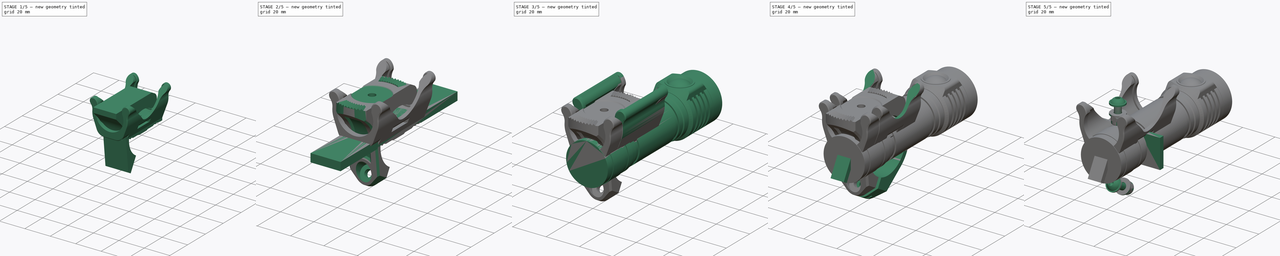
[diagram: build sequence overview — one tinted view per stage of 5, left to right]
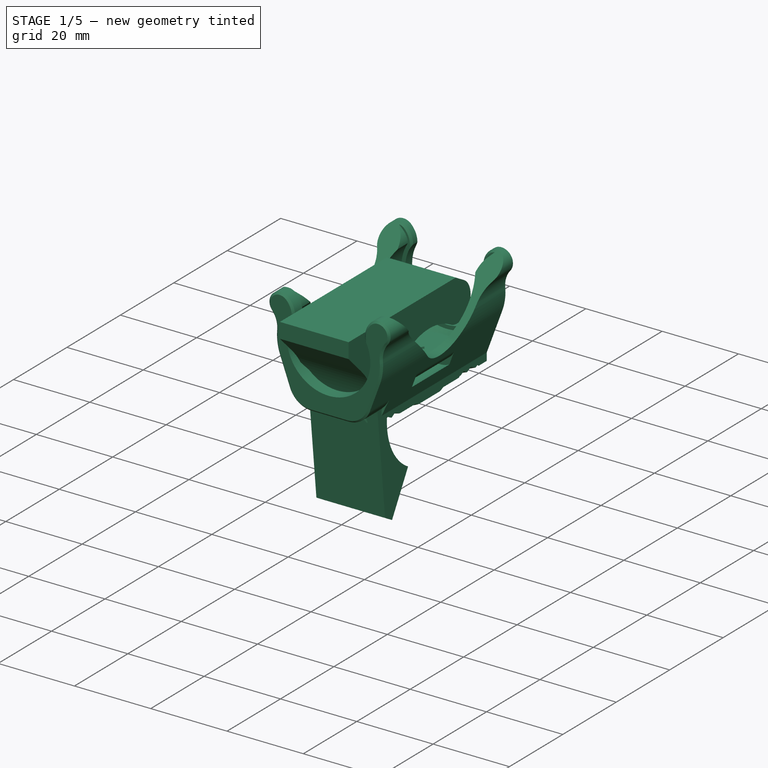
[diagram: stage 1 of 5 — iso view after this stage's code; geometry added in this stage tinted green]
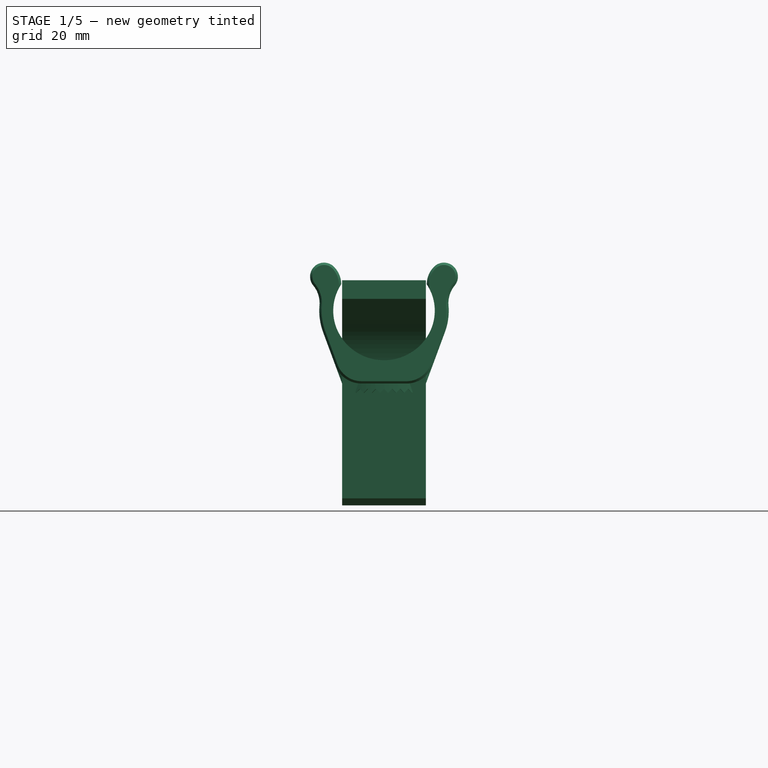
[diagram: stage 1 of 5 — front view after this stage's code; geometry added in this stage tinted green]
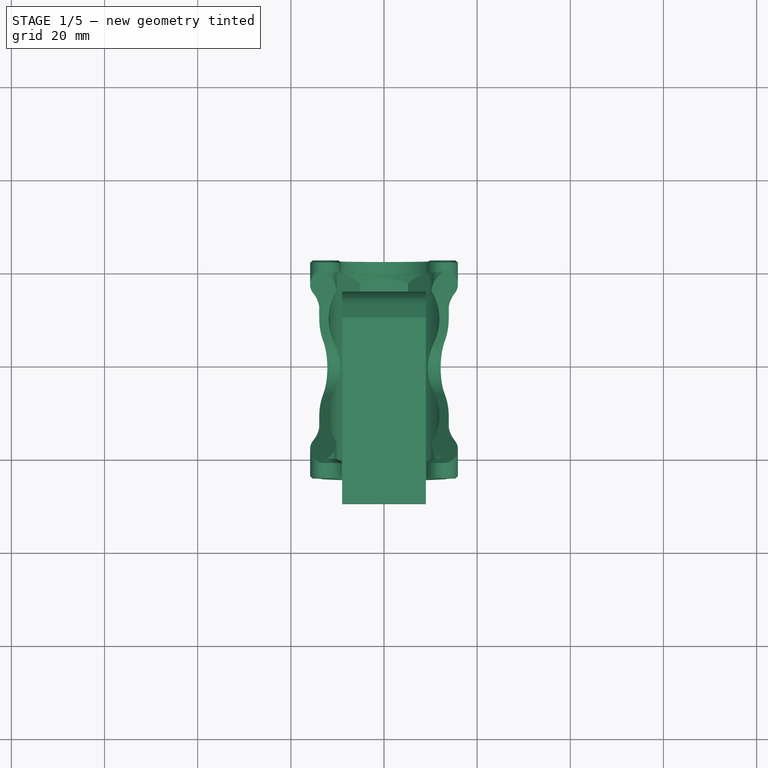
[diagram: stage 1 of 5 — top view after this stage's code; geometry added in this stage tinted green]
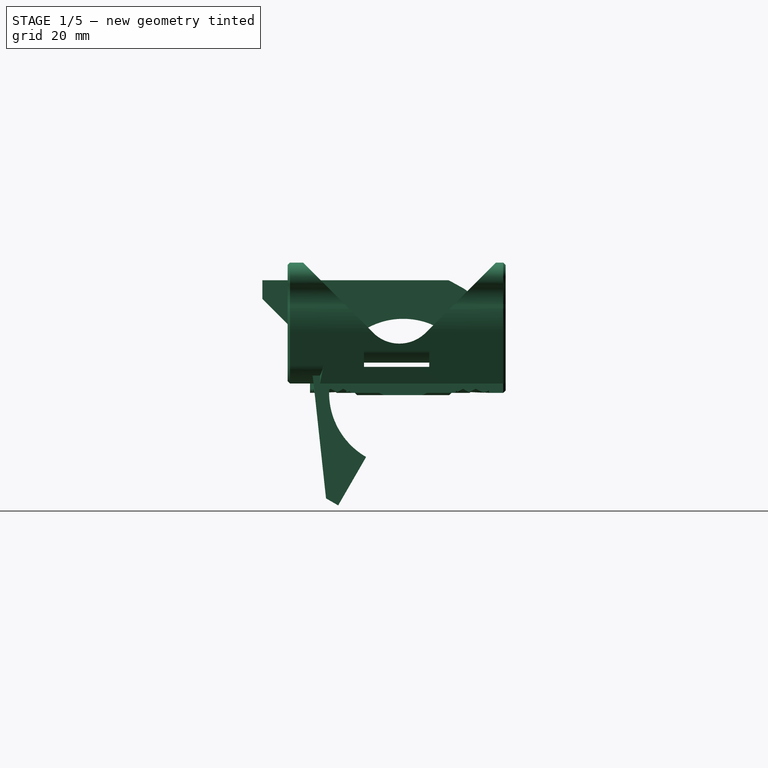
[diagram: stage 1 of 5 — right view after this stage's code; geometry added in this stage tinted green]
FCSTD DOCUMENT  (FreeCAD 0.19R22756 (Git))
Label: bike-light-mount
License: CC BY-SA 4.0
LicenseURL: https://creativecommons.org/licenses/by-sa/4.0/
objects: Sketcher::SketchObject×69, PartDesign::Pocket×42, PartDesign::Pad×16, PartDesign::CoordinateSystem×16, PartDesign::Body×10, PartDesign::Chamfer×9, PartDesign::Groove×8, Part::FeaturePython×8, PartDesign::Line×7, PartDesign::PolarPattern×6, PartDesign::Draft×6, App::Link×5, PartDesign::Revolution×4, PartDesign::Fillet×4, PartDesign::Mirrored×3, App::Part×2, App::DocumentObjectGroup×2, PartDesign::FeatureBase×2, Part::Part2DObjectPython×2, PartDesign::ShapeBinder×1, +2 more types
note: 302 computed .brp shape members not serialized (recipe doc carries the construction recipe); baked Part::Feature solids carry a one-line shape summary decoded from their .brp

FEATURE [PartDesign::Pad] Pad
  Direction = (1,1,1)
  Length = 18
  Length2 = 100
  Midplane = true
  Placement = pos=(0,0,0) rot=(0.57735,0.57735,0.57735;2.0944rad)
  Profile = -> Sketch
  Type = 0
FEATURE [Sketcher::SketchObject] Sketch027
  MapMode = 5
  Support = -> [XY_Plane009]
  sketch-geometry (4):
    g0: LineSegment StartX=-9 StartY=-50 StartZ=0 EndX=9 EndY=-50 EndZ=0
    g1: LineSegment StartX=9 StartY=-50 StartZ=0 EndX=9 EndY=50 EndZ=0
    g2: LineSegment StartX=-9 StartY=50 StartZ=0 EndX=-9 EndY=-50 EndZ=0
    g3: LineSegment StartX=-9 StartY=50 StartZ=0 EndX=9 EndY=50 EndZ=0
  constraints (10):
    c: Coincident(g0,g1)
    c: Coincident(g2,g0)
    c: Horizontal(g0)
    c: Vertical(g2)
    c: Symmetric(g2,g1,g-2)
    c: DistanceX(g2,g1) = 18
    c: Symmetric(g0,g1,g-1)
    c: Coincident(g3,g2)
    c: Coincident(g3,g1)
    c: DistanceY(g1,g1) = 100
FEATURE [PartDesign::Pad] Pad006
  Direction = (1,1,1)
  Length = 5
  Length2 = 100
  Profile = -> Sketch027
  Type = 0
FEATURE [Sketcher::SketchObject] Sketch035
  ExternalGeometry = -> [Sketch027]
  MapMode = 5
  Support = -> [XY_Plane009]
  sketch-geometry (4):
    g0: ArcOfCircle CenterX=0 CenterY=0 CenterZ=0 NormalX=0 NormalY=0 NormalZ=1 AngleXU=0 Radius=9.875 StartAngle=0.424141 EndAngle=2.71745
    g1: ArcOfCircle CenterX=0 CenterY=0 CenterZ=0 NormalX=0 NormalY=0 NormalZ=1 AngleXU=0 Radius=9.875 StartAngle=3.56573 EndAngle=5.85904
    g2: LineSegment StartX=-9 StartY=4.06394 StartZ=0 EndX=-9 EndY=-4.06394 EndZ=0
    g3: LineSegment StartX=9 StartY=-4.06394 StartZ=0 EndX=9 EndY=4.06394 EndZ=0
  constraints (12):
    c: Coincident(g0,g-1)
    c: PointOnObject(g0,g-3)
    c: PointOnObject(g0,g-4)
    c: Coincident(g1,g0)
    c: PointOnObject(g1,g-3)
    c: PointOnObject(g1,g-4)
    c: Coincident(g2,g0)
    c: Coincident(g2,g1)
    c: Coincident(g3,g1)
    c: Coincident(g3,g0)
    c: Equal(g0,g1)
    c: Diameter(g1) = 19.75
FEATURE [PartDesign::Pad] Pad009
  BaseFeature = -> Pad006
  Direction = (1,1,1)
  Length = 0.5
  Length2 = 100
  Profile = -> Sketch035
  Refine = true
  Reversed = true
  Type = 0
FEATURE [PartDesign::Draft] Draft001
  Angle = 45
  Base = -> Pad009 [Face6,Face7]
  BaseFeature = -> Pad009
  NeutralPlane = -> Pad009 [Face8]
  Reversed = true
  SupportTransform = false
FEATURE [PartDesign::Groove] Groove003
  Angle = 360
  Axis = (-2e-16,3e-16,1)
  Base = (0,0,0)
  BaseFeature = -> Draft001
  Profile = -> Sketch028
  ReferenceAxis = -> Sketch028 [V_Axis]
  Reversed = true
FEATURE [PartDesign::Pocket] Pocket012
  BaseFeature = -> Groove003
  Length = 6
  Length2 = 100
  Profile = -> Sketch029
  Reversed = true
  Type = 0
FEATURE [PartDesign::PolarPattern] PolarPattern002
  Angle = 360
  Axis = -> Z_Axis009
  BaseFeature = -> Pocket012
  Occurrences = 72
  Originals = -> [Pocket012]
FEATURE [PartDesign::Groove] Groove004
  Angle = 360
  Axis = (-2e-16,3e-16,1)
  Base = (0,0,0)
  BaseFeature = -> PolarPattern002
  Profile = -> Sketch030
  ReferenceAxis = -> Sketch030 [V_Axis]
FEATURE [PartDesign::Pocket] Pocket013
  BaseFeature = -> Groove004
  Length = 0.5
  Length2 = 100
  Profile = -> Sketch033
  Type = 0
FEATURE [PartDesign::Body] Body001  label="D4"
  Group = -> [Sketch001,Revolution,Sketch069,Pad016,Fillet002,Sketch070,Groove007,Sketch071,Sketch072,Pocket035,DatumLine007,Revolution002,LCS_11]
  Origin = -> Origin001
  Placement = pos=(0,-15,18.75) rot=(0,0,1;0rad)
  Tip = -> Revolution002
FEATURE [PartDesign::FeatureBase] BaseFeature001
  BaseFeature = -> Body006
FEATURE [Part::Part2DObjectPython] ShapeString001  # Draft 2D object (typed FeaturePython)
  AttachmentOffset = pos=(-4.75,-8.75,0) rot=(0,0,1;0rad)
  FontFile = <path>
  MapMode = 5
  Placement = pos=(-4.75,-8.75,5) rot=(0,0,1;0rad)
  Size = 3
  String = TC15
  Support = -> [BaseFeature001]
  Tracking = 0
FEATURE [PartDesign::CoordinateSystem] LCS_014  label="LCS_Mount_TC15_mount"
  AttacherType = Attacher::AttachEngine3D
  AttachmentOffset = pos=(0,0,-0.5) rot=(0,0,1;0rad)
  MapMode = 5
  Placement = pos=(0,0,-0.5) rot=(0,0,1;0rad)
  Support = -> [XY_Plane013]
FEATURE [PartDesign::CoordinateSystem] LCS_015  label="LCS_Mount_TC15_screw"
  AttacherType = Attacher::AttachEngine3D
  AttachmentOffset = pos=(0,0,2) rot=(0,0,1;0rad)
  MapMode = 5
  Placement = pos=(0,0,2) rot=(0,0,1;0rad)
  Support = -> [XY_Plane013]
FEATURE [Sketcher::SketchObject] Sketch073
  AttachmentOffset = pos=(0,0,-22) rot=(0,0,1;0rad)
  MapMode = 5
  Placement = pos=(0,22,4.9e-15) rot=(1,0,0;1.5708rad)
  Support = -> [XZ_Plane013]
  sketch-geometry (27):
    g0: LineSegment StartX=9 StartY=2 StartZ=0 EndX=13.0776 EndY=13.0309 EndZ=0
    g1: LineSegment StartX=-9 StartY=2 StartZ=0 EndX=-13.0776 EndY=13.0309 EndZ=0
    g2: ArcOfCircle CenterX=0 CenterY=18 CenterZ=0 NormalX=0 NormalY=0 NormalZ=1 AngleXU=0 Radius=11 StartAngle=3.66519 EndAngle=5.75959
    g3: ArcOfCircle CenterX=-0.649519 CenterY=17.625 CenterZ=0 NormalX=0 NormalY=0 NormalZ=1 AngleXU=0 Radius=10.25 StartAngle=2.55458 EndAngle=3.66519
    g4: ArcOfCircle CenterX=0.649519 CenterY=17.625 CenterZ=0 NormalX=0 NormalY=0 NormalZ=1 AngleXU=0 Radius=10.25 StartAngle=5.75959 EndAngle=6.87019
    g5: LineSegment [constr] StartX=0 StartY=0 StartZ=0 EndX=0 EndY=7 EndZ=0
    g6: ArcOfCircle CenterX=0.649519 CenterY=17.625 CenterZ=0 NormalX=0 NormalY=0 NormalZ=1 AngleXU=0 Radius=13.25 StartAngle=5.92911 EndAngle=6.36797
    g7: ArcOfCircle CenterX=-0.649519 CenterY=17.625 CenterZ=0 NormalX=0 NormalY=0 NormalZ=1 AngleXU=0 Radius=13.25 StartAngle=3.05681 EndAngle=3.49567
    g8: LineSegment [constr] StartX=-9.52628 StartY=12.5 StartZ=0 EndX=9.52628 EndY=12.5 EndZ=0
    g9: LineSegment [constr] StartX=-13.0776 StartY=13.0309 StartZ=0 EndX=-10.2637 EndY=14.0711 EndZ=0
    g10: LineSegment [constr] StartX=-9.18368 StartY=23.3022 StartZ=0 EndX=9.18368 EndY=23.3022 EndZ=0
    g11: LineSegment [constr] StartX=0 StartY=18 StartZ=0 EndX=-9.52628 EndY=12.5 EndZ=0
    g12: LineSegment StartX=-9 StartY=2 StartZ=0 EndX=-9 EndY=5 EndZ=0
    g13: LineSegment StartX=-9 StartY=5 StartZ=0 EndX=9 EndY=5 EndZ=0
    g14: LineSegment StartX=9 StartY=5 StartZ=0 EndX=9 EndY=2 EndZ=0
    g15: LineSegment [constr] StartX=-13.8519 StartY=18.7471 StartZ=0 EndX=-10.8627 EndY=18.493 EndZ=0
    g16: LineSegment [constr] StartX=13.8519 StartY=18.7471 StartZ=0 EndX=10.8627 EndY=18.493 EndZ=0
    g17: LineSegment [constr] StartX=-9.18368 StartY=23.3022 StartZ=0 EndX=0 EndY=18 EndZ=0
    g18: LineSegment [constr] StartX=-10.75 StartY=27.0836 StartZ=0 EndX=10.75 EndY=27.0836 EndZ=0
    g19: ArcOfCircle CenterX=-14.5314 CenterY=23.3022 CenterZ=0 NormalX=0 NormalY=0 NormalZ=1 AngleXU=0 Radius=5.34775 StartAngle=9e-16 EndAngle=0.785398
    g20: ArcOfCircle CenterX=-12.8713 CenterY=24.9623 CenterZ=0 NormalX=0 NormalY=0 NormalZ=1 AngleXU=0 Radius=3 StartAngle=0.785398 EndAngle=3.82847
    g21: LineSegment [constr] StartX=-10.75 StartY=27.0836 StartZ=0 EndX=-6.96857 EndY=23.3022 EndZ=0
    g22: ArcOfCircle CenterX=-19.8304 CenterY=19.2552 CenterZ=0 NormalX=0 NormalY=0 NormalZ=1 AngleXU=0 Radius=6 StartAngle=6.1984 EndAngle=6.97007
    g23: Circle [constr] CenterX=0 CenterY=18 CenterZ=0 NormalX=0 NormalY=0 NormalZ=1 AngleXU=0 Radius=11
    g24: ArcOfCircle CenterX=14.5314 CenterY=23.3022 CenterZ=0 NormalX=0 NormalY=0 NormalZ=1 AngleXU=0 Radius=5.34775 StartAngle=2.35619 EndAngle=3.14159
    g25: ArcOfCircle CenterX=12.8713 CenterY=24.9623 CenterZ=0 NormalX=0 NormalY=0 NormalZ=1 AngleXU=0 Radius=3 StartAngle=5.59631 EndAngle=8.63938
    g26: ArcOfCircle CenterX=19.8304 CenterY=19.2552 CenterZ=0 NormalX=0 NormalY=0 NormalZ=1 AngleXU=0 Radius=6 StartAngle=2.45471 EndAngle=3.22638
  constraints (84):
    c: Symmetric(g1,g0,g-2)
    c: DistanceX(g1,g0) = 18
    c: DistanceY(g-1,g1) = 2
    c: PointOnObject(g2,g-2)
    c: Radius(g2) = 11
    c: Coincident(g3,g2)
    c: Coincident(g4,g2)
    c: Tangent(g4,g2)
    c: Tangent(g2,g3)
    c: PointOnObject(g5,g2)
    c: Vertical(g5)
    c: DistanceY(g-1,g5) = 7
    c: Equal(g4,g3)
    c: Radius(g3) = 10.25
    c: Coincident(g6,g0)
    c: Coincident(g7,g1)
    c: Tangent(g7,g1)
    c: Tangent(g0,g6)
    c: Coincident(g8,g2)
    c: Coincident(g8,g2)
    c: Horizontal(g8)
    c: PointOnObject(g9,g1)
    c: PointOnObject(g9,g3)
    c: Perpendicular(g3,g9)
    c: Perpendicular(g1,g9)
    c: Horizontal(g10)
    c: Equal(g0,g1)
    c: Equal(g6,g7)
    c: Coincident(g11,g2)
    c: Coincident(g11,g2)
    c: Angle(g8,g11) = 0.523599
    c: Coincident(g12,g1)
    c: Vertical(g12)
    c: Coincident(g13,g12)
    c: Horizontal(g13)
    c: Coincident(g14,g13)
    c: Coincident(g14,g0)
    c: Vertical(g14)
    c: DistanceY(g-1,g12) = 5
    c: Coincident(g5,g-1)
    c: Coincident(g3,g10)
    c: Coincident(g15,g7)
    c: PointOnObject(g15,g3)
    c: Perpendicular(g3,g15)
    c: Distance(g15) = 3
    c: Coincident(g10,g4)
    c: Coincident(g16,g6)
    c: PointOnObject(g16,g4)
    c: Perpendicular(g4,g16)
    c: Equal(g16,g15)
    c: Coincident(g7,g3)
    c: Coincident(g17,g3)
    c: Coincident(g17,g2)
    c: Angle(g17,g10) = 0.523599
    c: DistanceX(g10,g10) = 18.3674
    c: Coincident(g19,g3)
    c: Perpendicular(g19,g10)
    c: Coincident(g20,g19)
    c: Tangent(g19,g20)
    c: Coincident(g18,g19)
    c: PointOnObject(g21,g10)
    c: Tangent(g21,g19) = 1.5708
    c: Angle(g21,g18) = 0.785398
    c: Coincident(g22,g20)
    c: Coincident(g22,g7)
    c: Tangent(g22,g7)
    c: Radius(g20) = 3
    c: DistanceX(g18,g18) = 21.5
    c: Coincident(g23,g2)
    c: PointOnObject(g2,g23)
    c: Coincident(g24,g4)
    c: Perpendicular(g24,g10)
    c: Symmetric(g18,g19,g-2)
    c: Coincident(g25,g24)
    c: Coincident(g26,g25)
    c: Coincident(g26,g6)
    c: Tangent(g26,g6)
    c: Tangent(g25,g24)
    c: Tangent(g26,g25)
    c: Equal(g25,g20)
    c: Coincident(g24,g18)
    c: Tangent(g22,g20)
    c: Radius(g22) = 6
    c: Equal(g22,g26)
FEATURE [PartDesign::Pad] Pad017
  BaseFeature = -> BaseFeature001
  Direction = (1,1,1)
  Length = 46.8
  Length2 = 100
  Profile = -> Sketch073
  Type = 0
FEATURE [PartDesign::Line] DatumLine008
  AttacherType = Attacher::AttachEngineLine
  Length = 20
  MapMode = 19
  Placement = pos=(9e-16,22,18) rot=(-0.186157,-0.694747,0.694747;3.50969rad)
  ResizeMode = 0
  Support = -> [Sketch073]
FEATURE [PartDesign::CoordinateSystem] LCS_013  label="LCS_Mount_TC15_front_clip"
  AttacherType = Attacher::AttachEngine3D
  MapMode = 11
  Placement = pos=(9e-16,22,18) rot=(0.774597,0.447214,-0.447214;1.82348rad)
  Support = -> [Sketch073]
FEATURE [Sketcher::SketchObject] Sketch074
  MapMode = 5
  Support = -> [XY_Plane013]
  sketch-geometry (4):
    g0: LineSegment StartX=-9 StartY=22 StartZ=0 EndX=9 EndY=22 EndZ=0
    g1: LineSegment StartX=9 StartY=22 StartZ=0 EndX=9 EndY=50 EndZ=0
    g2: LineSegment StartX=9 StartY=50 StartZ=0 EndX=-9 EndY=50 EndZ=0
    g3: LineSegment StartX=-9 StartY=50 StartZ=0 EndX=-9 EndY=22 EndZ=0
  constraints (9):
    c: Coincident(g0,g1)
    c: Coincident(g1,g2)
    c: Coincident(g2,g3)
    c: Coincident(g3,g0)
    c: Horizontal(g0)
    c: Vertical(g1)
    c: Vertical(g3)
    c: Symmetric(g1,g2,g-2)
    c: DistanceY(g-1,g2) = 50
FEATURE [Sketcher::SketchObject] Sketch075
  AttachmentOffset = pos=(0,0,2.6) rot=(0,0,1;0rad)
  ExternalGeometry = -> [Sketch073]
  MapMode = 2
  Placement = pos=(0,19.4,4.3e-15) rot=(1,0,0;1.5708rad)
  Support = -> [Sketch073]
  expr: Constraints[2] = <<Dimensions>>.m4_washer_slot_diameter + 1
  sketch-geometry (16):
    g0: LineSegment StartX=-5.15 StartY=5 StartZ=0 EndX=5.15 EndY=5 EndZ=0
    g1: ArcOfCircle CenterX=0 CenterY=18 CenterZ=0 NormalX=0 NormalY=0 NormalZ=1 AngleXU=0 Radius=12 StartAngle=3.66519 EndAngle=3.79614
    g2: ArcOfCircle CenterX=0 CenterY=18 CenterZ=0 NormalX=0 NormalY=0 NormalZ=1 AngleXU=0 Radius=12 StartAngle=5.62864 EndAngle=5.75959
    g3: LineSegment StartX=-9.51988 StartY=10.6944 StartZ=0 EndX=-5.15 EndY=5 EndZ=0
    g4: LineSegment StartX=9.51988 StartY=10.6944 StartZ=0 EndX=5.15 EndY=5 EndZ=0
    g5: ArcOfCircle CenterX=-0.649519 CenterY=17.625 CenterZ=0 NormalX=0 NormalY=0 NormalZ=1 AngleXU=0 Radius=11.25 StartAngle=2.58353 EndAngle=3.66519
    g6: ArcOfCircle CenterX=0.649519 CenterY=17.625 CenterZ=0 NormalX=0 NormalY=0 NormalZ=1 AngleXU=0 Radius=11.25 StartAngle=5.75959 EndAngle=6.84125
    g7: LineSegment [constr] StartX=-11.8995 StartY=17.625 StartZ=0 EndX=-10.8995 EndY=17.625 EndZ=0
    g8: ArcOfCircle CenterX=-14.5314 CenterY=23.3022 CenterZ=0 NormalX=0 NormalY=0 NormalZ=1 AngleXU=0 Radius=4.34775 StartAngle=0.0644784 EndAngle=0.785398
    g9: LineSegment StartX=-11.4571 StartY=26.3765 StartZ=0 EndX=-14.4571 EndY=29.3765 EndZ=0
    g10: LineSegment [constr] StartX=-11.4571 StartY=26.3765 StartZ=0 EndX=-10.75 EndY=27.0836 EndZ=0
    g11: ArcOfCircle CenterX=14.5314 CenterY=23.3022 CenterZ=0 NormalX=0 NormalY=0 NormalZ=1 AngleXU=0 Radius=4.34775 StartAngle=2.35619 EndAngle=3.07711
    g12: LineSegment [constr] StartX=10.75 StartY=27.0836 StartZ=0 EndX=11.4571 EndY=26.3765 EndZ=0
    g13: LineSegment StartX=11.4571 StartY=26.3765 StartZ=0 EndX=14.4571 EndY=29.3765 EndZ=0
    g14: LineSegment StartX=-14.4571 StartY=29.3765 StartZ=0 EndX=14.4571 EndY=29.3765 EndZ=0
    g15: LineSegment [constr] StartX=-10.3923 StartY=12 StartZ=0 EndX=-9.52628 EndY=12.5 EndZ=0
  constraints (45):
    c: PointOnObject(g0,g-3)
    c: Symmetric(g0,g0,g-2)
    c: DistanceX(g0,g0) = 10.3
    c: Coincident(g2,g1)
    c: Coincident(g3,g1)
    c: Coincident(g3,g0)
    c: Coincident(g4,g2)
    c: Coincident(g4,g0)
    c: Tangent(g2,g4)
    c: Tangent(g1,g3)
    c: Equal(g3,g4)
    c: Coincident(g1,g-5)
    c: Coincident(g5,g-4)
    c: Coincident(g5,g1)
    c: Coincident(g6,g-6)
    c: Coincident(g6,g2)
    c: Tangent(g2,g6)
    c: PointOnObject(g7,g5)
    c: PointOnObject(g7,g-4)
    c: Horizontal(g7)
    c: Perpendicular(g5,g7)
    c: DistanceX(g7,g7) = 1
    c: Coincident(g8,g-8)
    c: Coincident(g8,g5)
    c: Coincident(g9,g8)
    c: Tangent(g9,g8)
    c: Coincident(g10,g8)
    c: Coincident(g10,g-8)
    c: Perpendicular(g8,g10)
    c: Coincident(g11,g-7)
    c: Coincident(g11,g6)
    c: Coincident(g12,g-7)
    c: Coincident(g12,g11)
    c: Perpendicular(g11,g12)
    c: Coincident(g13,g11)
    c: Tangent(g13,g11)
    c: Coincident(g14,g9)
    c: Coincident(g14,g13)
    c: Horizontal(g14)
    c: DistanceY(g9,g9) = 3
    c: Coincident(g15,g1)
    c: Coincident(g15,g-5)
    c: Perpendicular(g5,g15)
    c: Equal(g10,g7)
    c: Equal(g12,g10)
FEATURE [Sketcher::SketchObject] Sketch076
  MapMode = 5
  Support = -> [XY_Plane013]
  sketch-geometry (4):
    g0: LineSegment StartX=-9 StartY=-24.8 StartZ=0 EndX=-9 EndY=-50 EndZ=0
    g1: LineSegment StartX=-9 StartY=-50 StartZ=0 EndX=9 EndY=-50 EndZ=0
    g2: LineSegment StartX=9 StartY=-50 StartZ=0 EndX=9 EndY=-24.8 EndZ=0
    g3: LineSegment StartX=-9 StartY=-24.8 StartZ=0 EndX=9 EndY=-24.8 EndZ=0
  constraints (11):
    c: Vertical(g0)
    c: Coincident(g1,g0)
    c: Coincident(g2,g1)
    c: Symmetric(g1,g0,g-2)
    c: DistanceX(g1,g1) = 18
    c: Equal(g0,g2)
    c: Coincident(g3,g0)
    c: Coincident(g3,g2)
    c: DistanceY(g0,g-1) = 24.8
    c: DistanceY(g0,g-1) = 50
    c: Vertical(g2)
FEATURE [Sketcher::SketchObject] Sketch077
  ExternalGeometry = -> [Sketch073]
  MapMode = 5
  Placement = pos=(0,0,0) rot=(0.57735,0.57735,0.57735;2.0944rad)
  Support = -> [YZ_Plane013]
  expr: Constraints[13] = 2.6mm - <<Chamfer011>>.Size
  expr: Constraints[10] = <<Pocket036>>.Length + <<Chamfer010>>.Size + <<Chamfer011>>.Size
  sketch-geometry (5):
    g0: LineSegment StartX=-21.5 StartY=27.9623 StartZ=0 EndX=-6.45687 EndY=12.9192 EndZ=0
    g1: LineSegment StartX=4.85687 StartY=12.9192 StartZ=0 EndX=19.9 EndY=27.9623 EndZ=0
    g2: LineSegment StartX=-21.5 StartY=27.9623 StartZ=0 EndX=19.9 EndY=27.9623 EndZ=0
    g3: ArcOfCircle CenterX=-0.799999 CenterY=18.576 CenterZ=0 NormalX=0 NormalY=0 NormalZ=1 AngleXU=0 Radius=8 StartAngle=3.92699 EndAngle=5.49779
    g4: LineSegment [constr] StartX=19.9 StartY=27.9623 StartZ=0 EndX=22 EndY=27.9623 EndZ=0
  constraints (15):
    c: Coincident(g2,g0)
    c: Coincident(g2,g1)
    c: Horizontal(g2)
    c: Coincident(g3,g0)
    c: Coincident(g3,g1)
    c: Tangent(g3,g1)
    c: Tangent(g3,g0)
    c: Radius(g3) = 8
    c: Perpendicular(g0,g1)
    c: Equal(g1,g0)
    c: DistanceX(g2,g2) = 41.4
    c: Coincident(g4,g1)
    c: Horizontal(g4)
    c: DistanceX(g4,g4) = 2.1
    c: Coincident(g4,g-3)
FEATURE [Sketcher::SketchObject] Sketch078
  AttachmentOffset = pos=(0,0,23.4) rot=(0,0,1;0rad)
  ExternalGeometry = -> [Sketch073]
  MapMode = 2
  Placement = pos=(0,-1.4,-3e-16) rot=(1,0,0;1.5708rad)
  Support = -> [Sketch073]
  expr: .AttachmentOffset.Base.z = <<Pad017>>.Length / 2
  sketch-geometry (8):
    g0: LineSegment StartX=-7.8775 StartY=5 StartZ=0 EndX=7.8775 EndY=5 EndZ=0
    g1: LineSegment StartX=-7.8775 StartY=6.5 StartZ=0 EndX=7.8775 EndY=6.5 EndZ=0
    g2: ArcOfCircle CenterX=7.8775 CenterY=10.5 CenterZ=0 NormalX=0 NormalY=0 NormalZ=1 AngleXU=0 Radius=5.5 StartAngle=4.71239 EndAngle=5.17266
    g3: ArcOfCircle CenterX=7.8775 CenterY=10.5 CenterZ=0 NormalX=0 NormalY=0 NormalZ=1 AngleXU=0 Radius=4 StartAngle=4.71239 EndAngle=5.92911
    g4: LineSegment StartX=10.3205 StartY=5.57236 StartZ=0 EndX=11.6294 EndY=9.11309 EndZ=0
    g5: ArcOfCircle CenterX=-7.8775 CenterY=10.5 CenterZ=0 NormalX=0 NormalY=0 NormalZ=1 AngleXU=0 Radius=5.5 StartAngle=4.25212 EndAngle=4.71239
    g6: ArcOfCircle CenterX=-7.8775 CenterY=10.5 CenterZ=0 NormalX=0 NormalY=0 NormalZ=1 AngleXU=0 Radius=4 StartAngle=3.49567 EndAngle=4.71239
    g7: LineSegment StartX=-11.6294 StartY=9.11309 StartZ=0 EndX=-10.3205 EndY=5.57236 EndZ=0
  constraints (25):
    c: PointOnObject(g0,g-4)
    c: Symmetric(g0,g0,g-2)
    c: Horizontal(g1)
    c: DistanceY(g0,g1) = 1.5
    c: Coincident(g2,g0)
    c: PointOnObject(g2,g-3)
    c: Coincident(g3,g2)
    c: Coincident(g3,g1)
    c: Tangent(g3,g1)
    c: Tangent(g2,g0)
    c: Coincident(g4,g2)
    c: Coincident(g4,g3)
    c: PointOnObject(g3,g-3)
    c: Tangent(g3,g-3)
    c: Coincident(g5,g0)
    c: Coincident(g6,g5)
    c: Coincident(g6,g1)
    c: Tangent(g5,g0)
    c: Tangent(g6,g1)
    c: Radius(g3) = 4
    c: PointOnObject(g6,g-5)
    c: Coincident(g7,g6)
    c: Coincident(g7,g5)
    c: PointOnObject(g5,g-5)
    c: Tangent(g6,g-5)
FEATURE [PartDesign::Pocket] Pocket039
  BaseFeature = -> Pad017
  Length = 5
  Length2 = 100
  Profile = -> Sketch074
  Refine = true
  Reversed = true
  Type = 1
FEATURE [PartDesign::Pocket] Pocket038
  BaseFeature = -> Pocket039
  Length = 5
  Length2 = 100
  Profile = -> Sketch076
  Refine = true
  Reversed = true
  Type = 1
FEATURE [Sketcher::SketchObject] Sketch079
  ExternalGeometry = -> [Sketch073]
  MapMode = 5
  Placement = pos=(0,0,0) rot=(0.57735,0.57735,0.57735;2.0944rad)
  Support = -> [YZ_Plane013]
  expr: Constraints[1] = <<Pocket036>>.Length
  sketch-geometry (7):
    g0: LineSegment [constr] StartX=19.4 StartY=6 StartZ=0 EndX=-20.6 EndY=6 EndZ=0
    g1: LineSegment StartX=-20.6 StartY=6 StartZ=0 EndX=-18.1 EndY=3.5 EndZ=0
    g2: LineSegment StartX=-18.1 StartY=3.5 StartZ=0 EndX=-20.6 EndY=3.5 EndZ=0
    g3: LineSegment StartX=-20.6 StartY=3.5 StartZ=0 EndX=-20.6 EndY=6 EndZ=0
    g4: LineSegment StartX=19.4 StartY=6 StartZ=0 EndX=16.9 EndY=3.5 EndZ=0
    g5: LineSegment StartX=16.9 StartY=3.5 StartZ=0 EndX=19.4 EndY=3.5 EndZ=0
    g6: LineSegment StartX=19.4 StartY=3.5 StartZ=0 EndX=19.4 EndY=6 EndZ=0
  constraints (20):
    c: Horizontal(g0)
    c: DistanceX(g0,g0) = 40
    c: Coincident(g2,g1)
    c: Horizontal(g2)
    c: Coincident(g3,g2)
    c: Coincident(g3,g1)
    c: Vertical(g3)
    c: Equal(g2,g3)
    c: DistanceY(g3,g3) = 2.5
    c: Coincident(g0,g1)
    c: Coincident(g4,g0)
    c: Coincident(g5,g4)
    c: Coincident(g6,g5)
    c: Coincident(g6,g4)
    c: Vertical(g6)
    c: Horizontal(g5)
    c: Equal(g5,g6)
    c: Equal(g6,g3)
    c: DistanceX(g4,g-3) = 2.6
    c: DistanceY(g4,g-3) = 1
FEATURE [Sketcher::SketchObject] Sketch080
  MapMode = 5
  Support = -> [XY_Plane013]
  sketch-geometry (4):
    g0: ArcOfCircle CenterX=0 CenterY=0 CenterZ=0 NormalX=0 NormalY=0 NormalZ=1 AngleXU=0 Radius=20 StartAngle=4.03726 EndAngle=5.38752
    g1: LineSegment StartX=-12.5 StartY=-15.6125 StartZ=0 EndX=-12.5 EndY=-35.6125 EndZ=0
    g2: LineSegment StartX=-12.5 StartY=-35.6125 StartZ=0 EndX=12.5 EndY=-35.6125 EndZ=0
    g3: LineSegment StartX=12.5 StartY=-35.6125 StartZ=0 EndX=12.5 EndY=-15.6125 EndZ=0
  constraints (11):
    c: Coincident(g0,g-1)
    c: Radius(g0) = 20
    c: Coincident(g1,g0)
    c: Vertical(g1)
    c: Coincident(g2,g1)
    c: Coincident(g3,g2)
    c: Coincident(g3,g0)
    c: Vertical(g3)
    c: Symmetric(g1,g2,g-2)
    c: DistanceX(g2,g2) = 25
    c: DistanceY(g1,g1) = 20
FEATURE [PartDesign::Pocket] Pocket042
  BaseFeature = -> Pocket038
  Length = 2
  Length2 = 100
  Profile = -> Sketch080
  Reversed = true
  Type = 0
FEATURE [PartDesign::Fillet] Fillet003
  Base = -> Pocket042 [Edge32,Edge2]
  BaseFeature = -> Pocket042
  Radius = 6
  SupportTransform = false
FEATURE [PartDesign::Pocket] Pocket036
  BaseFeature = -> Fillet003
  Length = 40
  Length2 = 100
  Profile = -> Sketch075
  Refine = true
  Reversed = true
  Type = 0
FEATURE [PartDesign::Chamfer] Chamfer010
  Angle = 45
  Base = -> Pocket036 [Edge110,Edge117,Edge104]
  BaseFeature = -> Pocket036
  ChamferType = 0
  FlipDirection = false
  Size = 0.9
  Size2 = 1
  SupportTransform = false
FEATURE [PartDesign::Chamfer] Chamfer011
  Angle = 45
  Base = -> Chamfer010 [Edge48,Edge7,Edge38,Edge37,Edge52,Edge27,Edge54,Edge58]
  BaseFeature = -> Chamfer010
  ChamferType = 0
  FlipDirection = false
  Size = 0.5
  Size2 = 1
  SupportTransform = false
FEATURE [PartDesign::Pocket] Pocket037
  BaseFeature = -> Chamfer011
  Length = 5
  Length2 = 100
  Midplane = true
  Profile = -> Sketch077
  Type = 1
FEATURE [PartDesign::Pocket] Pocket040
  BaseFeature = -> Pocket037
  Length = 14
  Length2 = 100
  Midplane = true
  Profile = -> Sketch078
  Refine = true
  Type = 0
FEATURE [PartDesign::Revolution] Revolution003
  Angle = 105
  Axis = (0,-1,-3e-16)
  Base = (9e-16,22,18)
  BaseFeature = -> Pocket040
  Midplane = true
  Profile = -> Sketch079
  ReferenceAxis = -> DatumLine008
FEATURE [PartDesign::Pocket] Pocket041
  BaseFeature = -> Revolution003
  Length = 0.5
  Length2 = 100
  Profile = -> ShapeString001
  Type = 0
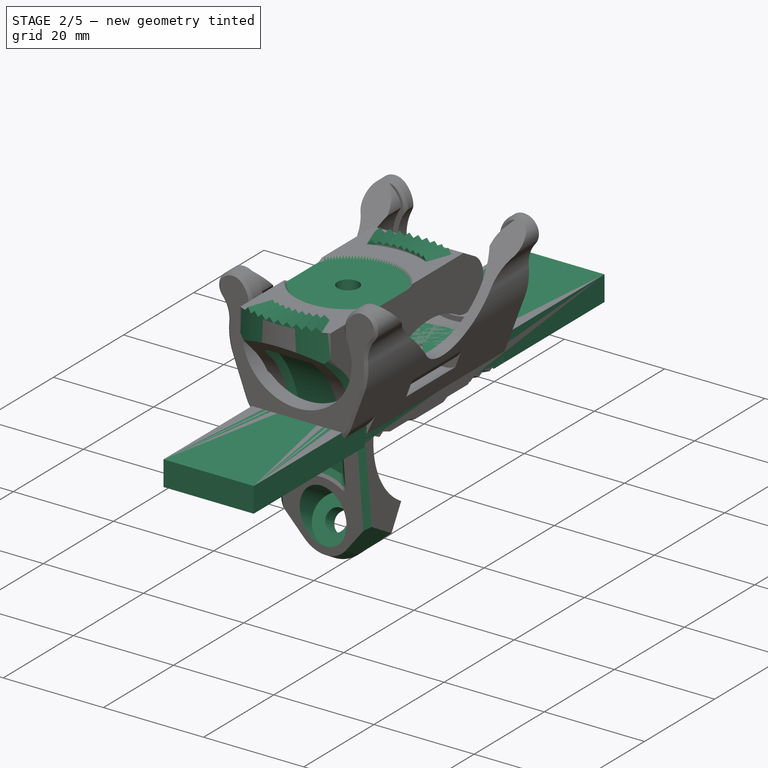
[diagram: stage 2 of 5 — iso view after this stage's code; geometry added in this stage tinted green]
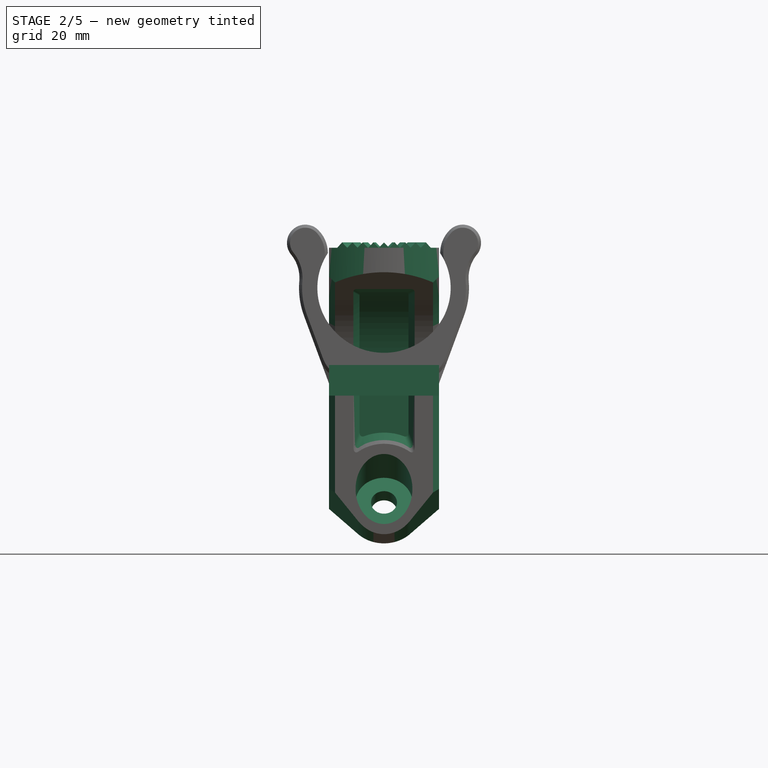
[diagram: stage 2 of 5 — front view after this stage's code; geometry added in this stage tinted green]
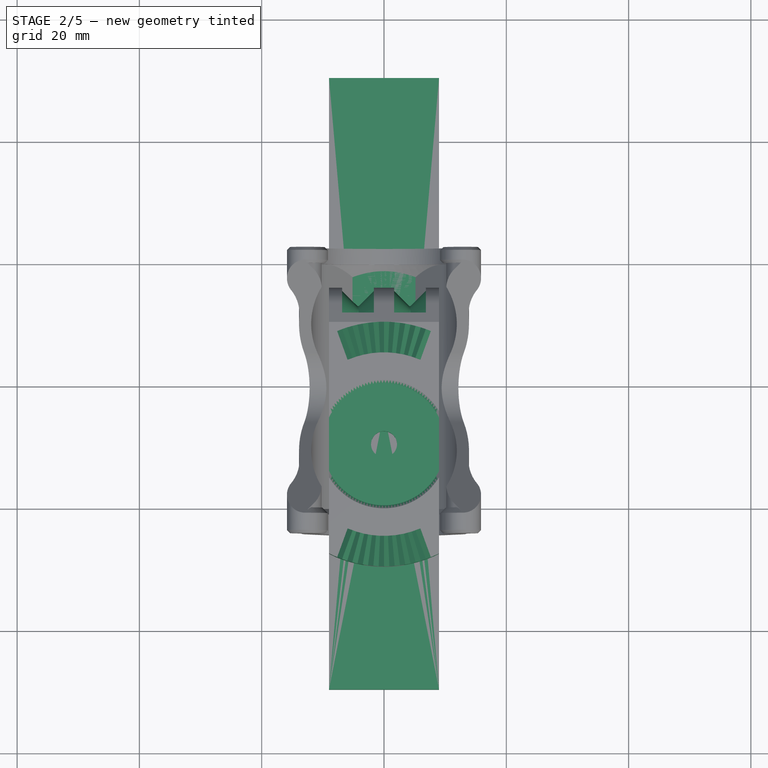
[diagram: stage 2 of 5 — top view after this stage's code; geometry added in this stage tinted green]
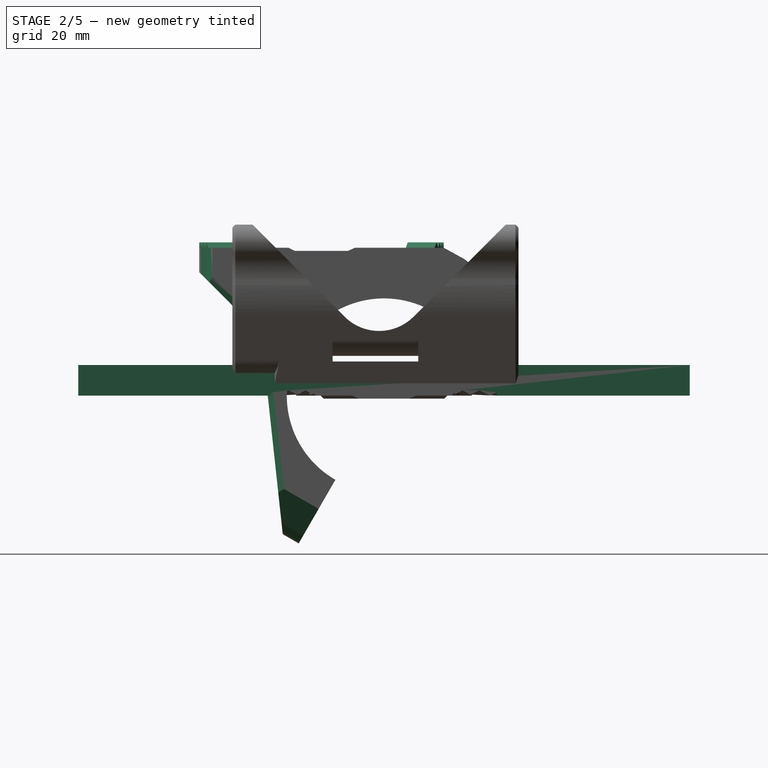
[diagram: stage 2 of 5 — right view after this stage's code; geometry added in this stage tinted green]
FEATURE [PartDesign::Body] Body003
  Group = -> [Sketch006,Pad002,Sketch007,Pocket001,Sketch008,Pocket002,Mirrored001,Chamfer001]
  Origin = -> Origin003
  Tip = -> Chamfer001
FEATURE [App::Part] Part  label="Hinge test"
  Group = -> [Body003,Body002]
  Origin = -> Origin004
  Placement = pos=(-2.3e-15,10.45,18.0999) rot=(-0.447214,-0.774597,-0.447214;4.45971rad)
FEATURE [Sketcher::SketchObject] Sketch009
  ExternalGeometry = -> [Pad]
  MapMode = 5
  Placement = pos=(-6.8e-15,1.06e-14,24.1801) rot=(0,0,-1;1.5708rad)
  Support = -> [Pad]
  expr: Constraints[1] = <<Dimensions>>.m4_through_hole_diameter
  sketch-geometry (3):
    g0: Circle CenterX=10.2203 CenterY=0 CenterZ=0 NormalX=0 NormalY=0 NormalZ=1 AngleXU=0 Radius=2.125
    g1: LineSegment [constr] StartX=10.2203 StartY=0 StartZ=0 EndX=-9.77968 EndY=0 EndZ=0
    g2: LineSegment [constr] StartX=10.2203 StartY=0 StartZ=0 EndX=30.2203 EndY=0 EndZ=0
  constraints (9):
    c: PointOnObject(g0,g-1)
    c: Diameter(g0) = 4.25
    c: Coincident(g1,g0)
    c: PointOnObject(g1,g-4)
    c: Horizontal(g1)
    c: Coincident(g2,g0)
    c: Horizontal(g2)
    c: PointOnObject(g2,g-3)
    c: Equal(g1,g2)
FEATURE [PartDesign::Pocket] Pocket003
  BaseFeature = -> Pad
  Length = 3
  Length2 = 100
  Placement = pos=(0,0,0) rot=(0.57735,0.57735,0.57735;2.0944rad)
  Profile = -> Sketch009
  Type = 0
FEATURE [Sketcher::SketchObject] Sketch010
  AttachmentOffset = pos=(0,0,-3) rot=(0,0,1;0rad)
  MapMode = 11
  Placement = pos=(-3.7e-15,-10.2203,21.1801) rot=(0,0,1;0rad)
  Support = -> [Sketch009]
  expr: Constraints[10] = <<Dimensions>>.m4_washer_slot_diameter
  sketch-geometry (4):
    g0: ArcOfCircle CenterX=0 CenterY=0 CenterZ=0 NormalX=0 NormalY=0 NormalZ=1 AngleXU=0 Radius=4.65 StartAngle=4.71239 EndAngle=7.85398
    g1: LineSegment StartX=1.4e-15 StartY=4.65 StartZ=0 EndX=-10 EndY=4.65 EndZ=0
    g2: LineSegment StartX=-10 StartY=4.65 StartZ=0 EndX=-10 EndY=-4.65 EndZ=0
    g3: LineSegment StartX=-10 StartY=-4.65 StartZ=0 EndX=0 EndY=-4.65 EndZ=0
  constraints (12):
    c: Coincident(g0,g-1)
    c: PointOnObject(g0,g-2)
    c: PointOnObject(g0,g-2)
    c: Coincident(g1,g0)
    c: Horizontal(g1)
    c: Coincident(g2,g1)
    c: Vertical(g2)
    c: Coincident(g3,g2)
    c: Coincident(g3,g0)
    c: Horizontal(g3)
    c: Diameter(g0) = 9.3
    c: DistanceX(g1,g1) = 10
FEATURE [PartDesign::Pocket] Pocket004
  BaseFeature = -> Pocket003
  Length = 1
  Length2 = 100
  Placement = pos=(0,0,0) rot=(0.57735,0.57735,0.57735;2.0944rad)
  Profile = -> Sketch010
  Type = 0
  expr: Length = <<Dimensions>>.m4_washer_slot_thickness
FEATURE [Sketcher::SketchObject] Sketch011
  AttachmentOffset = pos=(0,0,-4) rot=(0,0,1;0rad)
  MapMode = 11
  Placement = pos=(-3.4e-15,-10.2203,20.1801) rot=(0,0,1;0rad)
  Support = -> [Sketch009]
  expr: .AttachmentOffset.Base.z = -3 - <<Dimensions>>.m4_washer_slot_thickness
  expr: Constraints[19] = <<Dimensions>>.m4_nut_slot_width
  sketch-geometry (7):
    g0: LineSegment StartX=-2.02073 StartY=3.5 StartZ=0 EndX=-4.04145 EndY=-4e-16 EndZ=0
    g1: LineSegment StartX=-4.04145 StartY=-5e-16 StartZ=0 EndX=-2.02073 EndY=-3.5 EndZ=0
    g2: LineSegment StartX=-2.02073 StartY=-3.5 StartZ=0 EndX=2.02073 EndY=-3.5 EndZ=0
    g3: LineSegment StartX=2.02073 StartY=-3.5 StartZ=0 EndX=4.04145 EndY=0 EndZ=0
    g4: LineSegment StartX=4.04145 StartY=-2e-16 StartZ=0 EndX=2.02073 EndY=3.5 EndZ=0
    g5: LineSegment StartX=2.02073 StartY=3.5 StartZ=0 EndX=-2.02073 EndY=3.5 EndZ=0
    g6: Circle [constr] CenterX=0 CenterY=0 CenterZ=0 NormalX=0 NormalY=0 NormalZ=1 AngleXU=0 Radius=4.04145
  constraints (16):
    c: Coincident(g0,g1)
    c: Coincident(g1,g2)
    c: Coincident(g2,g3)
    c: Coincident(g3,g4)
    c: Coincident(g4,g5)
    c: Coincident(g5,g0)
    c: Equal(g0, g1-g5) x5
    c: PointOnObject(g0,g6)
    c: PointOnObject(g1,g6)
    c: PointOnObject(g2,g6)
    c: PointOnObject(g3,g6)
    c: PointOnObject(g4,g6)
    c: PointOnObject(g5,g6)
    c: Coincident(g6,g-1)
    c: Horizontal(g5)
    c: DistanceY(g1,g0) = 7
FEATURE [PartDesign::Pocket] Pocket005
  BaseFeature = -> Pocket004
  Length = 15
  Length2 = 100
  Placement = pos=(0,0,0) rot=(0.57735,0.57735,0.57735;2.0944rad)
  Profile = -> Sketch011
  Type = 0
FEATURE [PartDesign::Line] DatumLine
  AttacherType = Attacher::AttachEngineLine
  Length = 20
  MapMode = 42
  Placement = pos=(4.7e-15,-10.95,-18.966) rot=(0,0.866025,0.5;3.14159rad)
  ResizeMode = 0
  Support = -> [Pocket005]
FEATURE [Sketcher::SketchObject] Sketch014
  MapMode = 4
  Placement = pos=(4.7e-15,-10.95,-18.966) rot=(-0.250563,-0.935113,0.250563;1.63783rad)
  Support = -> [DatumLine]
  expr: Constraints[13] = <<Dimensions>>.m4_through_hole_diameter / 2
  expr: Constraints[17] = <<Dimensions>>.m4_washer_slot_diameter / 2
  sketch-geometry (6):
    g0: LineSegment StartX=-2.125 StartY=0 StartZ=0 EndX=-2.125 EndY=-3 EndZ=0
    g1: LineSegment StartX=-2.125 StartY=-3 StartZ=0 EndX=-4.65 EndY=-3 EndZ=0
    g2: LineSegment StartX=-4.65 StartY=-3 StartZ=0 EndX=-4.65 EndY=-13 EndZ=0
    g3: LineSegment StartX=-4.65 StartY=-13 StartZ=0 EndX=0 EndY=-13 EndZ=0
    g4: LineSegment StartX=0 StartY=-13 StartZ=0 EndX=0 EndY=0 EndZ=0
    g5: LineSegment StartX=0 StartY=0 StartZ=0 EndX=-2.125 EndY=0 EndZ=0
  constraints (18):
    c: Vertical(g0)
    c: Coincident(g1,g0)
    c: Coincident(g2,g1)
    c: Vertical(g2)
    c: Coincident(g3,g2)
    c: Horizontal(g3)
    c: Coincident(g4,g3)
    c: Coincident(g4,g-1)
    c: Coincident(g5,g4)
    c: Coincident(g5,g0)
    c: Horizontal(g5)
    c: DistanceY(g0,g0) = 3
    c: Vertical(g4)
    c: DistanceX(g5,g5) = 2.125
    c: DistanceX(g3,g3) = 4.65
    c: DistanceY(g2,g2) = 10
    c: Horizontal(g1)
    c: DistanceX(g1,g4) = 4.65
FEATURE [PartDesign::Groove] Groove
  Angle = 360
  Axis = (1.4e-15,0.866025,-0.5)
  Base = (2.63e-14,-10.95,-18.966)
  BaseFeature = -> Pocket005
  Placement = pos=(0,0,0) rot=(0.57735,0.57735,0.57735;2.0944rad)
  Profile = -> Sketch014
  ReferenceAxis = -> Sketch014 [V_Axis]
  Reversed = true
FEATURE [Sketcher::SketchObject] Sketch015
  ExternalGeometry = -> [Pad]
  MapMode = 5
  Placement = pos=(0,-9.2e-15,5.3e-15) rot=(0.654654,0.654654,0.377964;3.86433rad)
  Support = -> [Pad]
  sketch-geometry (8):
    g0: ArcOfCircle CenterX=-21.9 CenterY=0 CenterZ=0 NormalX=0 NormalY=0 NormalZ=1 AngleXU=0 Radius=6 StartAngle=2.3562 EndAngle=3.92699
    g1: LineSegment StartX=-21.3853 StartY=-9 StartZ=0 EndX=-28.9 EndY=-9 EndZ=0
    g2: LineSegment StartX=-21.3853 StartY=9 StartZ=0 EndX=-28.9 EndY=9 EndZ=0
    g3: LineSegment StartX=-28.9 StartY=9 StartZ=0 EndX=-28.9 EndY=-9 EndZ=0
    g4: LineSegment [constr] StartX=-21.9 StartY=0 StartZ=0 EndX=-27.9 EndY=0 EndZ=0
    g5: LineSegment [constr] StartX=-21.9 StartY=0 StartZ=0 EndX=-15.9 EndY=0 EndZ=0
    g6: LineSegment StartX=-26.1427 StartY=4.24262 StartZ=0 EndX=-21.3853 EndY=9 EndZ=0
    g7: LineSegment StartX=-26.1427 StartY=-4.24262 StartZ=0 EndX=-21.3853 EndY=-9 EndZ=0
  constraints (25):
    c: PointOnObject(g0,g-1)
    c: Horizontal(g1)
    c: Horizontal(g2)
    c: Coincident(g3,g2)
    c: Coincident(g3,g1)
    c: Vertical(g3)
    c: Tangent(g-4,g0)
    c: DistanceX(g1,g-4) = 1
    c: Coincident(g4,g0)
    c: PointOnObject(g4,g-4)
    c: Coincident(g5,g0)
    c: PointOnObject(g5,g-3)
    c: Horizontal(g5)
    c: Horizontal(g4)
    c: Equal(g4,g5)
    c: PointOnObject(g-4,g1)
    c: PointOnObject(g-4,g2)
    c: Coincident(g6,g0)
    c: Coincident(g6,g2)
    c: Coincident(g7,g0)
    c: Coincident(g7,g1)
    c: Tangent(g7,g0)
    c: Tangent(g6,g0)
    c: Equal(g2,g1)
    c: Angle(g7,g1) = 0.785398
FEATURE [PartDesign::Pocket] Pocket006
  BaseFeature = -> Groove
  Length = 5
  Length2 = 100
  Placement = pos=(0,0,0) rot=(0.57735,0.57735,0.57735;2.0944rad)
  Profile = -> Sketch015
  Type = 1
FEATURE [Sketcher::SketchObject] Sketch024
  ExternalGeometry = -> [Pocket003]
  MapMode = 5
  Placement = pos=(-6.8e-15,1.06e-14,24.1801) rot=(0,0,-1;1.5708rad)
  Support = -> [Pocket003]
  sketch-geometry (4):
    g0: ArcOfCircle CenterX=10.2203 CenterY=0 CenterZ=0 NormalX=0 NormalY=0 NormalZ=1 AngleXU=0 Radius=20 StartAngle=5.81642 EndAngle=6.74995
    g1: LineSegment StartX=28.0809 StartY=9 StartZ=0 EndX=31.2203 EndY=9 EndZ=0
    g2: LineSegment StartX=28.0809 StartY=-9 StartZ=0 EndX=31.2203 EndY=-9 EndZ=0
    g3: LineSegment StartX=31.2203 StartY=9 StartZ=0 EndX=31.2203 EndY=-9 EndZ=0
  constraints (12):
    c: Coincident(g0,g-4)
    c: Tangent(g0,g-3)
    c: Coincident(g1,g0)
    c: Horizontal(g1)
    c: Coincident(g2,g0)
    c: Horizontal(g2)
    c: Coincident(g3,g1)
    c: Coincident(g3,g2)
    c: Vertical(g3)
    c: PointOnObject(g-3,g2)
    c: PointOnObject(g-3,g1)
    c: DistanceX(g-3,g2) = 1
FEATURE [PartDesign::Pocket] Pocket011
  BaseFeature = -> Pocket006
  Length = 5
  Length2 = 100
  Placement = pos=(0,0,0) rot=(0.57735,0.57735,0.57735;2.0944rad)
  Profile = -> Sketch024
  Type = 1
FEATURE [PartDesign::Groove] Groove001
  Angle = 360
  Axis = (-1,0,0)
  Base = (0,10.45,18.0999)
  BaseFeature = -> Pocket011
  Placement = pos=(0,0,0) rot=(0.57735,0.57735,0.57735;2.0944rad)
  Profile = -> Sketch017
  ReferenceAxis = -> Sketch017 [H_Axis]
  Reversed = true
FEATURE [Sketcher::SketchObject] Sketch028
  MapMode = 5
  Placement = pos=(0,0,0) rot=(0.57735,0.57735,0.57735;2.0944rad)
  Support = -> [YZ_Plane009]
  expr: Constraints[12] = <<Dimensions>>.m4_through_hole_diameter / 2
  expr: Constraints[13] = <<Dimensions>>.m4_washer_slot_diameter / 2
  expr: Constraints[17] = <<Pad006>>.Length
  sketch-geometry (6):
    g0: LineSegment StartX=-2.125 StartY=-0.5 StartZ=0 EndX=-2.125 EndY=2 EndZ=0
    g1: LineSegment StartX=-2.125 StartY=2 StartZ=0 EndX=-4.65 EndY=2 EndZ=0
    g2: LineSegment StartX=-4.65 StartY=2 StartZ=0 EndX=-4.65 EndY=5 EndZ=0
    g3: LineSegment StartX=-4.65 StartY=5 StartZ=0 EndX=0 EndY=5 EndZ=0
    g4: LineSegment StartX=0 StartY=5 StartZ=0 EndX=0 EndY=-0.5 EndZ=0
    g5: LineSegment StartX=-2.125 StartY=-0.5 StartZ=0 EndX=0 EndY=-0.5 EndZ=0
  constraints (18):
    c: Vertical(g0)
    c: Coincident(g1,g0)
    c: Horizontal(g1)
    c: Coincident(g2,g1)
    c: Vertical(g2)
    c: Coincident(g3,g2)
    c: Horizontal(g3)
    c: Coincident(g4,g3)
    c: Vertical(g4)
    c: Coincident(g5,g0)
    c: Coincident(g5,g4)
    c: Horizontal(g5)
    c: DistanceX(g5,g5) = 2.125
    c: DistanceX(g3,g3) = 4.65
    c: DistanceY(g0,g0) = 2.5
    c: PointOnObject(g4,g-2)
    c: DistanceY(g4,g-1) = 0.5
    c: DistanceY(g-1,g3) = 5
FEATURE [Sketcher::SketchObject] Sketch029
  AttachmentOffset = pos=(0,0,-20.5) rot=(0,0,1;0rad)
  MapMode = 5
  Placement = pos=(0,20.5,4.6e-15) rot=(1,0,0;1.5708rad)
  Support = -> [XZ_Plane009]
  sketch-geometry (3):
    g0: LineSegment StartX=-0.875 StartY=0 StartZ=0 EndX=0.875 EndY=0 EndZ=0
    g1: LineSegment StartX=0.875 StartY=0 StartZ=0 EndX=-1e-16 EndY=0.875 EndZ=0
    g2: LineSegment StartX=-1e-16 StartY=0.875 StartZ=0 EndX=-0.875 EndY=0 EndZ=0
  constraints (8):
    c: PointOnObject(g0,g-1)
    c: Coincident(g1,g0)
    c: PointOnObject(g1,g-2)
    c: Coincident(g2,g1)
    c: Coincident(g2,g0)
    c: Symmetric(g0,g0,g-2)
    c: Perpendicular(g2,g1)
    c: DistanceX(g0,g0) = 1.75
FEATURE [Sketcher::SketchObject] Sketch030
  MapMode = 5
  Placement = pos=(0,0,0) rot=(0.57735,0.57735,0.57735;2.0944rad)
  Support = -> [YZ_Plane009]
  sketch-geometry (3):
    g0: LineSegment StartX=14.52 StartY=0.25 StartZ=0 EndX=14.27 EndY=0 EndZ=0
    g1: LineSegment StartX=14.52 StartY=0.25 StartZ=0 EndX=14.52 EndY=0 EndZ=0
    g2: LineSegment StartX=14.52 StartY=0 StartZ=0 EndX=14.27 EndY=0 EndZ=0
  constraints (9):
    c: PointOnObject(g0,g-1)
    c: Coincident(g1,g0)
    c: Vertical(g1)
    c: Coincident(g2,g1)
    c: Coincident(g2,g0)
    c: Horizontal(g2)
    c: Equal(g2,g1)
    c: DistanceY(g1,g1) = 0.25
    c: DistanceX(g-1,g0) = 14.52
FEATURE [PartDesign::Line] DatumLine003
  AttacherType = Attacher::AttachEngineLine
  Length = 20
  MapMode = 19
  Placement = pos=(-4.5e-15,-10.2203,24.1801) rot=(0,0,-1;1.5708rad)
  ResizeMode = 0
  Support = -> [Sketch009]
FEATURE [Sketcher::SketchObject] Sketch031
  AttachmentOffset = pos=(20,0,0) rot=(0.57735,0.57735,0.57735;2.0944rad)
  MapMode = 2
  Placement = pos=(4.4e-15,-30.2203,24.1801) rot=(1,0,0;1.5708rad)
  Support = -> [DatumLine003]
  sketch-geometry (3):
    g0: LineSegment StartX=-0.875 StartY=0 StartZ=0 EndX=1e-16 EndY=0.875 EndZ=0
    g1: LineSegment StartX=1e-16 StartY=0.875 StartZ=0 EndX=0.875 EndY=0 EndZ=0
    g2: LineSegment StartX=0.875 StartY=0 StartZ=0 EndX=-0.875 EndY=0 EndZ=0
  constraints (8):
    c: PointOnObject(g0,g-1)
    c: Coincident(g1,g0)
    c: Coincident(g2,g1)
    c: Coincident(g2,g0)
    c: Symmetric(g1,g0,g-2)
    c: Equal(g0,g1)
    c: Perpendicular(g0,g1)
    c: DistanceX(g2,g2) = 1.75
FEATURE [PartDesign::Pad] Pad007
  BaseFeature = -> Groove001
  Direction = (1,1,1)
  Length = 5
  Length2 = 100
  Placement = pos=(0,0,0) rot=(0.57735,0.57735,0.57735;2.0944rad)
  Profile = -> Sketch031
  Reversed = true
  Type = 0
FEATURE [PartDesign::PolarPattern] PolarPattern
  Angle = 20
  Axis = -> DatumLine003
  BaseFeature = -> Pad007
  Occurrences = 5
  Originals = -> [Pad007]
  Placement = pos=(0,0,0) rot=(0.57735,0.57735,0.57735;2.0944rad)
FEATURE [PartDesign::PolarPattern] PolarPattern003
  Angle = 20
  Axis = -> DatumLine003
  BaseFeature = -> PolarPattern
  Occurrences = 5
  Originals = -> [Pad007]
  Placement = pos=(0,0,0) rot=(0.57735,0.57735,0.57735;2.0944rad)
  Reversed = true
FEATURE [Sketcher::SketchObject] Sketch032
  AttachmentOffset = pos=(-20,0,0) rot=(0.57735,0.57735,0.57735;2.0944rad)
  MapMode = 2
  Placement = pos=(-1.34e-14,9.77968,24.1801) rot=(1,0,0;1.5708rad)
  Support = -> [DatumLine003]
  sketch-geometry (3):
    g0: LineSegment StartX=-0.875 StartY=0 StartZ=0 EndX=3e-16 EndY=0.875 EndZ=0
    g1: LineSegment StartX=3e-16 StartY=0.875 StartZ=0 EndX=0.875 EndY=-1e-16 EndZ=0
    g2: LineSegment StartX=0.875 StartY=-1e-16 StartZ=0 EndX=-0.875 EndY=0 EndZ=0
  constraints (8):
    c: PointOnObject(g0,g-1)
    c: Coincident(g2,g1)
    c: Coincident(g2,g0)
    c: Symmetric(g1,g0,g-2)
    c: Perpendicular(g1,g0)
    c: DistanceX(g2,g2) = 1.75
    c: Coincident(g0,g1)
    c: PointOnObject(g0,g-2)
FEATURE [PartDesign::Pad] Pad008
  BaseFeature = -> PolarPattern003
  Direction = (1,1,1)
  Length = 5
  Length2 = 100
  Placement = pos=(0,0,0) rot=(0.57735,0.57735,0.57735;2.0944rad)
  Profile = -> Sketch032
  Type = 0
FEATURE [PartDesign::PolarPattern] PolarPattern004
  Angle = 20
  Axis = -> DatumLine003
  BaseFeature = -> Pad008
  Occurrences = 5
  Originals = -> [Pad008]
  Placement = pos=(0,0,0) rot=(0.57735,0.57735,0.57735;2.0944rad)
FEATURE [PartDesign::PolarPattern] PolarPattern005
  Angle = 20
  Axis = -> DatumLine003
  BaseFeature = -> PolarPattern004
  Occurrences = 5
  Originals = -> [Pad008]
  Placement = pos=(0,0,0) rot=(0.57735,0.57735,0.57735;2.0944rad)
  Reversed = true
FEATURE [Sketcher::SketchObject] Sketch034
  MapMode = 11
  Placement = pos=(-4.5e-15,-10.2203,24.1801) rot=(0,0,1;0rad)
  Support = -> [Sketch009]
  sketch-geometry (1):
    g0: Circle CenterX=0 CenterY=0 CenterZ=0 NormalX=0 NormalY=0 NormalZ=1 AngleXU=0 Radius=10
  constraints (2):
    c: Coincident(g0,g-1)
    c: Diameter(g0) = 20
FEATURE [PartDesign::Pocket] Pocket014
  BaseFeature = -> PolarPattern005
  Length = 0.5
  Length2 = 100
  Placement = pos=(0,0,0) rot=(0.57735,0.57735,0.57735;2.0944rad)
  Profile = -> Sketch034
  Type = 0
FEATURE [PartDesign::Draft] Draft
  Angle = 45
  Base = -> Pocket014 [Face22,Face24]
  BaseFeature = -> Pocket014
  NeutralPlane = -> Pocket014 [Face23]
  Placement = pos=(0,0,0) rot=(0.57735,0.57735,0.57735;2.0944rad)
  SupportTransform = false
FEATURE [PartDesign::Body] Body006  label="Mounting plate - Bare"
  Group = -> [Sketch027,Pad006,Pad009,Draft001,Sketch028,Groove003,Sketch029,Pocket012,PolarPattern002,Sketch030,Groove004,Sketch033,Pocket013,Sketch035]
  Origin = -> Origin009
  Placement = pos=(0,-10.25,24.25) rot=(0,0,1;0rad)
  Tip = -> Pocket013
FEATURE [PartDesign::FeatureBase] BaseFeature
  BaseFeature = -> Body006
FEATURE [PartDesign::Body] Body005  label="Lower clamp"
  Group = -> [Sketch018,Pad004,Pocket010,DatumLine002,ShapeBinder,Sketch019,Groove002,Pocket007,Pocket008,Pocket009,Sketch020,Sketch021,Sketch022,Sketch023,Pocket021,Sketch048,Pocket020,Sketch049,Draft002,Chamfer004,Fillet,LCS_5,LCS_6,LCS_7]
  Origin = -> Origin006
  Tip = -> Fillet
FEATURE [Sketcher::SketchObject] Sketch050
  ExternalGeometry = -> [Groove]
  MapMode = 5
  Placement = pos=(-7.7e-15,-18.7904,-2.03289) rot=(0.596999,0.596999,-0.535895;2.15769rad)
  Support = -> [Groove]
  expr: Constraints[18] = <<Pocket022>>.Length
  sketch-geometry (6):
    g0: LineSegment [constr] StartX=17.9602 StartY=0 StartZ=0 EndX=20.7431 EndY=0 EndZ=0
    g1: LineSegment [constr] StartX=8.66022 StartY=0 StartZ=0 EndX=5.87731 EndY=0 EndZ=0
    g2: ArcOfCircle CenterX=13.3102 CenterY=2.13e-14 CenterZ=0 NormalX=0 NormalY=0 NormalZ=1 AngleXU=0 Radius=7.43291 StartAngle=2.40376 EndAngle=3.87942
    g3: LineSegment StartX=7.81039 StartY=5 StartZ=0 EndX=-4.42111 EndY=5 EndZ=0
    g4: LineSegment StartX=-4.42111 StartY=5 StartZ=0 EndX=-4.42111 EndY=-5 EndZ=0
    g5: LineSegment StartX=-4.42111 StartY=-5 StartZ=0 EndX=7.81039 EndY=-5 EndZ=0
  constraints (19):
    c: PointOnObject(g0,g-3)
    c: PointOnObject(g0,g-4)
    c: Horizontal(g0)
    c: PointOnObject(g0,g-1)
    c: PointOnObject(g1,g-3)
    c: PointOnObject(g1,g-1)
    c: Horizontal(g1)
    c: Coincident(g2,g-3)
    c: PointOnObject(g1,g2)
    c: Equal(g1,g0)
    c: Coincident(g3,g2)
    c: PointOnObject(g3,g-5)
    c: Horizontal(g3)
    c: Coincident(g4,g3)
    c: Coincident(g5,g4)
    c: Coincident(g5,g2)
    c: Symmetric(g4,g3,g-1)
    c: Equal(g3,g5)
    c: DistanceY(g4,g4) = 10
FEATURE [Sketcher::SketchObject] Sketch051
  ExternalGeometry = -> [Sketch]
  MapMode = 5
  Placement = pos=(0,0,0) rot=(0.57735,0.57735,0.57735;2.0944rad)
  Support = -> [YZ_Plane]
  sketch-geometry (6):
    g0: ArcOfCircle CenterX=-41.1036 CenterY=-3.928e-12 CenterZ=0 NormalX=0 NormalY=0 NormalZ=1 AngleXU=0 Radius=21.9651 StartAngle=0.107769 EndAngle=0.785398
    g1: LineSegment StartX=-19.2659 StartY=2.36257 StartZ=0 EndX=-18.2717 EndY=2.47013 EndZ=0
    g2: ArcOfCircle CenterX=-41.1036 CenterY=-3.928e-12 CenterZ=0 NormalX=0 NormalY=0 NormalZ=1 AngleXU=0 Radius=22.9651 StartAngle=0.107769 EndAngle=0.785398
    g3: LineSegment StartX=-25.5719 StartY=15.5317 StartZ=0 EndX=-27.4703 EndY=17.4301 EndZ=0
    g4: LineSegment StartX=-24.8648 StartY=16.2388 StartZ=0 EndX=-25.5385 EndY=16.9125 EndZ=0
    g5: LineSegment StartX=-25.5385 StartY=16.9125 StartZ=0 EndX=-27.4703 EndY=17.4301 EndZ=0
  constraints (18):
    c: Coincident(g0,g-3)
    c: Equal(g0,g-3)
    c: Coincident(g1,g0)
    c: Perpendicular(g0,g1)
    c: Distance(g1) = 1
    c: Coincident(g2,g0)
    c: Coincident(g2,g1)
    c: Coincident(g-3,g0)
    c: Coincident(g3,g0)
    c: PointOnObject(g3,g-4)
    c: Coincident(g4,g2)
    c: Coincident(g5,g4)
    c: Coincident(g5,g3)
    c: Angle(g3,g5) = 0.523599
    c: Tangent(g4,g2)
    c: Parallel(g4,g3)
    c: DistanceY(g3,g-4) = 2.75
    c: Distance(g3,g-4) = 3.88909
FEATURE [PartDesign::Pocket] Pocket022
  BaseFeature = -> Draft
  Length = 10
  Length2 = 100
  Midplane = true
  Placement = pos=(0,0,0) rot=(0.57735,0.57735,0.57735;2.0944rad)
  Profile = -> Sketch051
  Type = 0
FEATURE [PartDesign::Pocket] Pocket023
  BaseFeature = -> Pocket022
  Length = 1
  Length2 = 100
  Placement = pos=(0,0,0) rot=(0.57735,0.57735,0.57735;2.0944rad)
  Profile = -> Sketch050
  Refine = true
  Type = 0
FEATURE [PartDesign::Draft] Draft003
  Angle = 60
  Base = -> Pocket023 [Face111]
  BaseFeature = -> Pocket023
  NeutralPlane = -> Pocket023 [Face34]
  Placement = pos=(0,0,0) rot=(0.57735,0.57735,0.57735;2.0944rad)
  Reversed = true
  SupportTransform = false
FEATURE [PartDesign::Chamfer] Chamfer005
  Angle = 45
  Base = -> Draft003 [Edge425,Edge424,Edge48,Edge71]
  BaseFeature = -> Draft003
  ChamferType = 0
  FlipDirection = false
  Placement = pos=(0,0,0) rot=(0.57735,0.57735,0.57735;2.0944rad)
  Size = 0.99
  Size2 = 1
  SupportTransform = false
FEATURE [PartDesign::Fillet] Fillet001
  Base = -> Chamfer005 [Edge408,Edge407,Edge488,Edge490]
  BaseFeature = -> Chamfer005
  Placement = pos=(0,0,0) rot=(0.57735,0.57735,0.57735;2.0944rad)
  Radius = 1
  SupportTransform = false
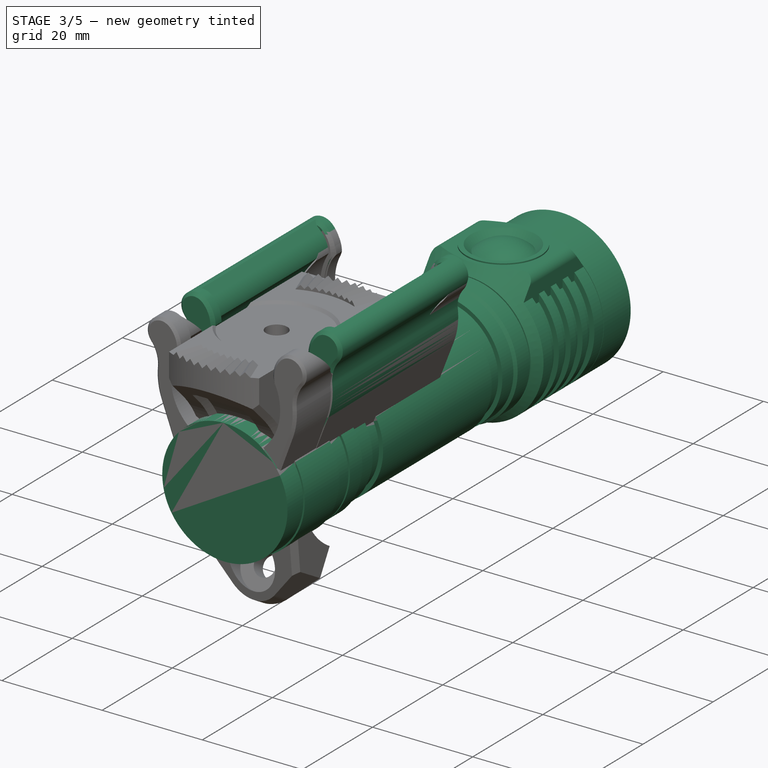
[diagram: stage 3 of 5 — iso view after this stage's code; geometry added in this stage tinted green]
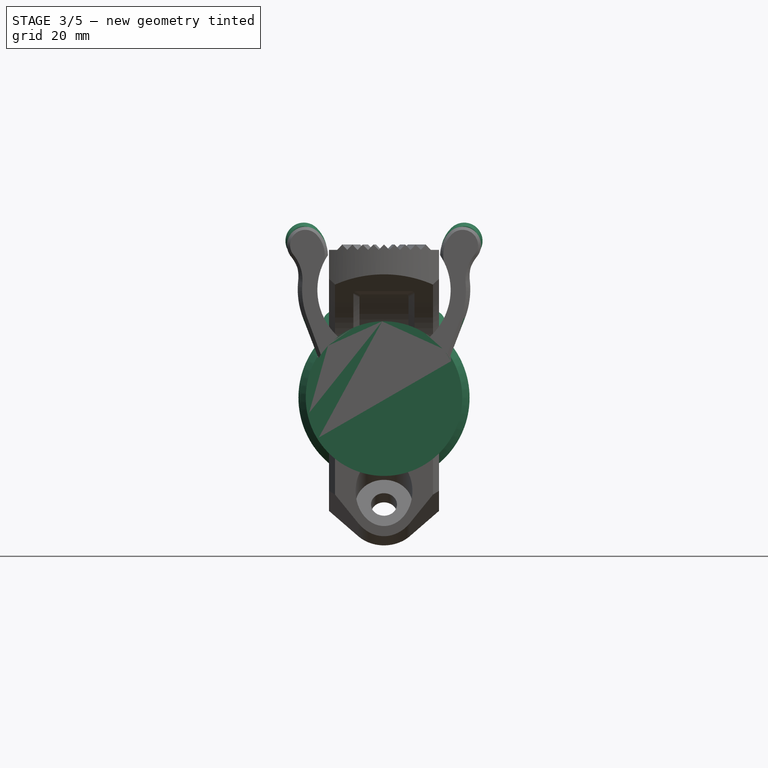
[diagram: stage 3 of 5 — front view after this stage's code; geometry added in this stage tinted green]
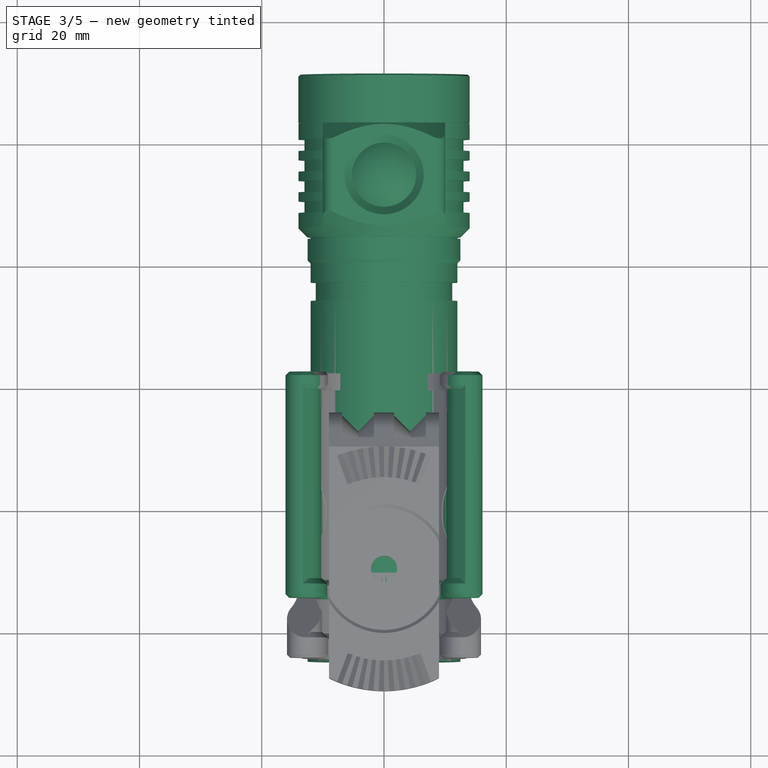
[diagram: stage 3 of 5 — top view after this stage's code; geometry added in this stage tinted green]
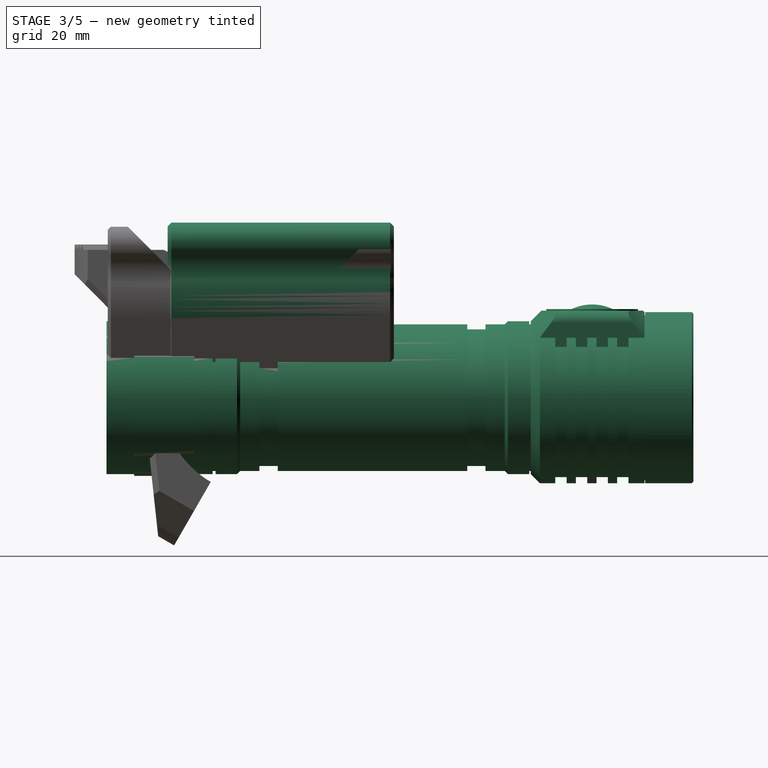
[diagram: stage 3 of 5 — right view after this stage's code; geometry added in this stage tinted green]
FEATURE [Sketcher::SketchObject] Sketch
  MapMode = 5
  Placement = pos=(0,0,0) rot=(0.57735,0.57735,0.57735;2.0944rad)
  Support = -> [YZ_Plane]
  expr: Constraints[1] = <<Dimensions>>.clamp_diameter
  expr: Constraints[13] = <<Dimensions>>.m4_washer_slot_diameter / 2
  sketch-geometry (16):
    g0: ArcOfCircle CenterX=0 CenterY=0 CenterZ=0 NormalX=0 NormalY=0 NormalZ=1 AngleXU=0 Radius=15.9 StartAngle=1.0472 EndAngle=4.18879
    g1: ArcOfCircle CenterX=-41.1036 CenterY=0 CenterZ=0 NormalX=0 NormalY=0 NormalZ=1 AngleXU=0 Radius=21.9651 StartAngle=0.107769 EndAngle=0.785398
    g2: LineSegment StartX=-7.95 StartY=-13.7698 StartZ=0 EndX=-13.95 EndY=-24.1621 EndZ=0
    g3: LineSegment StartX=-19.2659 StartY=2.36257 StartZ=0 EndX=-16.5592 EndY=-22.6557 EndZ=0
    g4: LineSegment StartX=-13.95 StartY=-24.1621 StartZ=0 EndX=-16.5592 EndY=-22.6557 EndZ=0
    g5: LineSegment [constr] StartX=-10.95 StartY=-18.966 StartZ=0 EndX=-43.8 EndY=0 EndZ=0
    g6: LineSegment StartX=-30.2203 StartY=20.1801 StartZ=0 EndX=-30.2203 EndY=24.1801 EndZ=0
    g7: LineSegment [constr] StartX=-16.7391 StartY=-20.993 StartZ=0 EndX=-13.275 EndY=-22.993 EndZ=0
    g8: ArcOfCircle CenterX=10.45 CenterY=18.0999 CenterZ=0 NormalX=0 NormalY=0 NormalZ=1 AngleXU=0 Radius=5 StartAngle=4.18879 EndAngle=7.34986
    g9: LineSegment [constr] StartX=10.45 StartY=18.0999 StartZ=0 EndX=-7.95 EndY=-13.7698 EndZ=0
    g10: LineSegment StartX=-30.2203 StartY=24.1801 StartZ=0 EndX=9.77968 EndY=24.1801 EndZ=0
    g11: LineSegment [constr] StartX=-10.2203 StartY=12.1801 StartZ=0 EndX=-10.2203 EndY=24.1801 EndZ=0
    g12: LineSegment [constr] StartX=-10.2203 StartY=12.1801 StartZ=0 EndX=0 EndY=0 EndZ=0
    g13: LineSegment StartX=9.77968 StartY=24.1801 StartZ=0 EndX=12.8652 EndY=22.4779 EndZ=0
    g14: LineSegment StartX=-30.2203 StartY=20.1801 StartZ=0 EndX=-25.5719 EndY=15.5317 EndZ=0
    g15: LineSegment [constr] StartX=-18.7904 StartY=-2.03289 StartZ=0 EndX=-15.8078 EndY=-1.71021 EndZ=0
  constraints (49):
    c: Coincident(g0,g-1)
    c: Diameter(g0) = 31.8
    c: Coincident(g2,g0)
    c: Coincident(g4,g2)
    c: Coincident(g4,g3)
    c: Perpendicular(g2,g4)
    c: Distance(g2) = 12
    c: Tangent(g1,g3) = 1.5708
    c: Symmetric(g2,g0,g5)
    c: Vertical(g6)
    c: PointOnObject(g7,g3)
    c: PointOnObject(g7,g2)
    c: Perpendicular(g2,g7)
    c: Distance(g7,g5) = 4.65
    c: Distance(g7) = 4
    c: Coincident(g8,g0)
    c: Radius(g8) = 5
    c: Tangent(g8,g0)
    c: Coincident(g9,g8)
    c: Coincident(g9,g0)
    c: PointOnObject(g0,g9)
    c: Angle(g9,g-2) = 0.523599
    c: Parallel(g2,g9)
    c: Coincident(g10,g6)
    c: Horizontal(g10)
    c: PointOnObject(g11,g0)
    c: Coincident(g12,g11)
    c: Coincident(g12,g0)
    c: Angle(g-2,g12) = 0.698132
    c: Coincident(g13,g10)
    c: Coincident(g13,g8)
    c: Tangent(g8,g13)
    c: Symmetric(g6,g10,g11)
    c: PointOnObject(g11,g10)
    c: DistanceY(g11,g11) = 12
    c: Coincident(g14,g6)
    c: Coincident(g14,g1)
    c: Tangent(g1,g14)
    c: DistanceY(g6,g6) = 4
    c: DistanceX(g10,g10) = 40
    c: PointOnObject(g5,g-1)
    c: PointOnObject(g1,g-1)
    c: Angle(g14,g10) = 0.785398
    c: PointOnObject(g15,g3)
    c: PointOnObject(g15,g0)
    c: Perpendicular(g3,g15)
    c: Perpendicular(g0,g15)
    c: Distance(g15) = 3
    c: PointOnObject(g5,g2)
FEATURE [Sketcher::SketchObject] Sketch001
  MapMode = 5
  Support = -> [XY_Plane001]
  sketch-geometry (52):
    g0: LineSegment StartX=0 StartY=-25 StartZ=0 EndX=12.5 EndY=-25 EndZ=0
    g1: LineSegment StartX=12.5 StartY=-25 StartZ=0 EndX=12.5 EndY=-20.5 EndZ=0
    g2: LineSegment StartX=12.5 StartY=-20.5 StartZ=0 EndX=12.8 EndY=-20.5 EndZ=0
    g3: LineSegment StartX=12.8 StartY=-20.5 StartZ=0 EndX=12.8 EndY=-10.65 EndZ=0
    g4: LineSegment StartX=12.8 StartY=-10.65 StartZ=0 EndX=12.5 EndY=-10.65 EndZ=0
    g5: LineSegment StartX=12.5 StartY=-10.65 StartZ=0 EndX=12.5 EndY=-7.65 EndZ=0
    g6: LineSegment StartX=12.5 StartY=-7.65 StartZ=0 EndX=12 EndY=-7.65 EndZ=0
    g7: LineSegment StartX=12 StartY=-7.65 StartZ=0 EndX=12 EndY=-7.15 EndZ=0
    g8: LineSegment StartX=12 StartY=-7.15 StartZ=0 EndX=12.5 EndY=-7.15 EndZ=0
    g9: LineSegment StartX=12.5 StartY=-7.15 StartZ=0 EndX=12.5 EndY=-3.65 EndZ=0
    g10: LineSegment StartX=12.5 StartY=-3.65 StartZ=0 EndX=12 EndY=-3.15 EndZ=0
    g11: LineSegment StartX=12 StartY=-3.15 StartZ=0 EndX=12 EndY=0 EndZ=0
    g12: LineSegment StartX=12 StartY=0 StartZ=0 EndX=11.175 EndY=0 EndZ=0
    g13: LineSegment StartX=11.175 StartY=0 StartZ=0 EndX=11.175 EndY=3 EndZ=0
    g14: LineSegment StartX=11.175 StartY=3 StartZ=0 EndX=12 EndY=3 EndZ=0
    g15: LineSegment StartX=12 StartY=3 StartZ=0 EndX=12 EndY=34 EndZ=0
    g16: LineSegment StartX=12 StartY=34 StartZ=0 EndX=11.175 EndY=34 EndZ=0
    g17: LineSegment StartX=11.175 StartY=34 StartZ=0 EndX=11.175 EndY=37 EndZ=0
    g18: LineSegment StartX=11.175 StartY=37 StartZ=0 EndX=12 EndY=37 EndZ=0
    g19: LineSegment StartX=12 StartY=37 StartZ=0 EndX=12 EndY=40.15 EndZ=0
    g20: LineSegment StartX=12 StartY=40.15 StartZ=0 EndX=12.5 EndY=40.65 EndZ=0
    g21: LineSegment StartX=12.5 StartY=40.65 StartZ=0 EndX=12.5 EndY=44.15 EndZ=0
    g22: LineSegment StartX=12.5 StartY=44.15 StartZ=0 EndX=12 EndY=44.15 EndZ=0
    g23: LineSegment StartX=12 StartY=44.15 StartZ=0 EndX=12 EndY=44.4 EndZ=0
    g24: LineSegment StartX=12 StartY=44.4 StartZ=0 EndX=12.5 EndY=44.4 EndZ=0
    g25: LineSegment StartX=12.5 StartY=44.4 StartZ=0 EndX=14 EndY=45.9 EndZ=0
    g26: LineSegment StartX=14 StartY=45.9 StartZ=0 EndX=14 EndY=48.4 EndZ=0
    g27: LineSegment StartX=0 StartY=-25 StartZ=0 EndX=0 EndY=69.5 EndZ=0
    g28: LineSegment StartX=14 StartY=48.4 StartZ=0 EndX=13 EndY=48.4 EndZ=0
    g29: LineSegment StartX=13 StartY=48.4 StartZ=0 EndX=13 EndY=50.275 EndZ=0
    g30: LineSegment StartX=13 StartY=50.275 StartZ=0 EndX=14 EndY=50.275 EndZ=0
    g31: LineSegment StartX=14 StartY=50.275 StartZ=0 EndX=14 EndY=51.775 EndZ=0
    g32: LineSegment StartX=14 StartY=51.775 StartZ=0 EndX=13 EndY=51.775 EndZ=0
    g33: LineSegment StartX=13 StartY=51.775 StartZ=0 EndX=13 EndY=53.65 EndZ=0
    g34: LineSegment StartX=13 StartY=53.65 StartZ=0 EndX=14 EndY=53.65 EndZ=0
    g35: LineSegment StartX=14 StartY=53.65 StartZ=0 EndX=14 EndY=55.15 EndZ=0
    g36: LineSegment StartX=14 StartY=55.15 StartZ=0 EndX=13 EndY=55.15 EndZ=0
    g37: LineSegment StartX=13 StartY=55.15 StartZ=0 EndX=13 EndY=57.025 EndZ=0
    g38: LineSegment StartX=13 StartY=57.025 StartZ=0 EndX=14 EndY=57.025 EndZ=0
    g39: LineSegment StartX=14 StartY=57.025 StartZ=0 EndX=14 EndY=58.525 EndZ=0
    g40: LineSegment StartX=14 StartY=58.525 StartZ=0 EndX=13 EndY=58.525 EndZ=0
    g41: LineSegment StartX=13 StartY=58.525 StartZ=0 EndX=13 EndY=60.4 EndZ=0
    g42: LineSegment StartX=13 StartY=60.4 StartZ=0 EndX=14 EndY=60.4 EndZ=0
    g43: LineSegment StartX=13 StartY=71 StartZ=0 EndX=11.5 EndY=69.5 EndZ=0
    g44: LineSegment StartX=11.5 StartY=69.5 StartZ=0 EndX=0 EndY=69.5 EndZ=0
    g45: LineSegment StartX=13 StartY=71 StartZ=0 EndX=13.75 EndY=71 EndZ=0
    g46: LineSegment StartX=13.75 StartY=71 StartZ=0 EndX=14 EndY=70.75 EndZ=0
    g47: LineSegment StartX=14 StartY=63 StartZ=0 EndX=14 EndY=60.4 EndZ=0
    g48: LineSegment StartX=14 StartY=70.75 StartZ=0 EndX=14 EndY=63.1 EndZ=0
    g49: LineSegment StartX=14 StartY=63.1 StartZ=0 EndX=13.5 EndY=63.1 EndZ=0
    g50: LineSegment StartX=13.5 StartY=63.1 StartZ=0 EndX=13.5 EndY=63 EndZ=0
    g51: LineSegment StartX=13.5 StartY=63 StartZ=0 EndX=14 EndY=63 EndZ=0
  constraints (156):
    c: PointOnObject(g0,g-2)
    c: Horizontal(g0)
    c: DistanceX(g0,g0) = 12.5
    c: Coincident(g1,g0)
    c: Vertical(g1)
    c: Coincident(g2,g1)
    c: Horizontal(g2)
    c: Coincident(g3,g2)
    c: Vertical(g3)
    c: Coincident(g4,g3)
    c: Horizontal(g4)
    c: DistanceX(g2,g2) = 0.3
    c: DistanceY(g1,g1) = 4.5
    c: Coincident(g5,g4)
    c: Vertical(g5)
    c: Equal(g4,g2)
    c: DistanceY(g5,g5) = 3
    c: Coincident(g5,g6)
    c: Horizontal(g6)
    c: Coincident(g6,g7)
    c: Vertical(g7)
    c: Coincident(g7,g8)
    c: Horizontal(g8)
    c: Coincident(g8,g9)
    c: Vertical(g9)
    c: Coincident(g9,g10)
    c: Coincident(g10,g11)
    c: Vertical(g11)
    c: Coincident(g11,g12)
    c: Coincident(g12,g13)
    c: Vertical(g13)
    c: Coincident(g13,g14)
    c: Horizontal(g14)
    c: Coincident(g14,g15)
    c: Vertical(g15)
    c: Coincident(g15,g16)
    c: Horizontal(g16)
    c: Coincident(g16,g17)
    c: Vertical(g17)
    c: Coincident(g17,g18)
    c: Coincident(g18,g19)
    c: Coincident(g19,g20)
    c: Coincident(g20,g21)
    c: Vertical(g21)
    c: Coincident(g21,g22)
    c: Horizontal(g22)
    c: Coincident(g22,g23)
    c: Coincident(g23,g24)
    c: Horizontal(g24)
    c: Coincident(g24,g25)
    c: Coincident(g25,g26)
    c: Vertical(g26)
    c: DistanceY(g0,g5) = 17.35
    c: Equal(g6,g7)
    c: DistanceX(g6,g6) = 0.5
    c: DistanceY(g9,g9) = 3.5
    c: Angle(g10,g9) = 2.35619
    c: Equal(g8,g6)
    c: DistanceX(g0,g10) = 12
    c: Horizontal(g12)
    c: DistanceY(g0,g11) = 25
    c: DistanceX(g0,g12) = 11.175
    c: Equal(g12,g14)
    c: DistanceY(g11,g14) = 3
    c: DistanceY(g15,g15) = 31
    c: Equal(g14,g16)
    c: Equal(g17,g13)
    c: Horizontal(g18)
    c: Equal(g18,g16)
    c: Vertical(g19)
    c: Angle(g19,g20) = 2.35619
    c: Equal(g19,g11)
    c: Equal(g20,g10)
    c: Equal(g9,g21)
    c: PointOnObject(g12,g-1)
    c: Coincident(g27,g0)
    c: Vertical(g27)
    c: Vertical(g23)
    c: Angle(g25,g24) = 2.35619
    c: DistanceY(g23,g23) = 0.25
    c: DistanceX(g22,g22) = 0.5
    c: Equal(g22,g24)
    c: DistanceX(g-1,g25) = 14
    c: Coincident(g26,g28)
    c: Horizontal(g28)
    c: Coincident(g28,g29)
    c: Vertical(g29)
    c: Coincident(g29,g30)
    c: Horizontal(g30)
    c: Coincident(g30,g31)
    c: Vertical(g31)
    c: Coincident(g31,g32)
    c: Horizontal(g32)
    c: Coincident(g32,g33)
    c: Coincident(g33,g34)
    c: Horizontal(g34)
    c: Coincident(g34,g35)
    c: Vertical(g35)
    c: Coincident(g35,g36)
    c: Horizontal(g36)
    c: Coincident(g36,g37)
    c: Vertical(g37)
    c: Coincident(g37,g38)
    c: Horizontal(g38)
    c: Coincident(g38,g39)
    c: Vertical(g39)
    c: Coincident(g39,g40)
    c: Horizontal(g40)
    c: Coincident(g40,g41)
    c: Vertical(g41)
    c: Coincident(g41,g42)
    c: Horizontal(g42)
    c: Coincident(g43,g44)
    c: Coincident(g44,g27)
    c: Horizontal(g44)
    c: Vertical(g33)
    c: Equal(g28,g30)
    c: Equal(g30,g32)
    c: Equal(g32,g34)
    c: Equal(g34,g36)
    c: Equal(g36,g38)
    c: Equal(g38,g40)
    c: Equal(g40,g42)
    c: Equal(g39,g35)
    c: Equal(g35,g31)
    c: Equal(g29,g33)
    c: Equal(g33,g37)
    c: Equal(g37,g41)
    c: DistanceY(g31,g31) = 1.5
    c: DistanceY(g26,g42) = 12
    c: DistanceX(g28,g28) = 1
    c: DistanceY(g24,g26) = 4
    c: Angle(g43,g44) = 2.35619
    c: DistanceX(g44,g44) = 11.5
    c: Coincident(g45,g43)
    c: Horizontal(g45)
    c: Coincident(g46,g45)
    c: DistanceY(g0,g45) = 96
    c: Perpendicular(g43,g46)
    c: DistanceY(g46,g46) = 0.25
    c: Coincident(g47,g42)
    c: Vertical(g47)
    c: DistanceY(g47,g45) = 8
    c: DistanceX(g43,g46) = 1
    c: Coincident(g48,g46)
    c: Vertical(g48)
    c: Coincident(g49,g48)
    c: Horizontal(g49)
    c: Coincident(g50,g49)
    c: Vertical(g50)
    c: Coincident(g51,g50)
    c: Coincident(g51,g47)
    c: Horizontal(g51)
    c: Equal(g49,g24)
    c: DistanceY(g50,g50) = 0.1
    c: Equal(g49,g51)
FEATURE [PartDesign::Revolution] Revolution
  Angle = 360
  Axis = (0,1,0)
  Base = (0,0,0)
  Profile = -> Sketch001
  ReferenceAxis = -> Sketch001 [V_Axis]
  Reversed = true
FEATURE [Sketcher::SketchObject] Sketch036
  AttachmentOffset = pos=(0,0,-22) rot=(0,0,1;0rad)
  MapMode = 5
  Placement = pos=(0,22,4.9e-15) rot=(1,0,0;1.5708rad)
  Support = -> [XZ_Plane010]
  sketch-geometry (27):
    g0: LineSegment StartX=9 StartY=2 StartZ=0 EndX=13.2311 EndY=12.989 EndZ=0
    g1: LineSegment StartX=-9 StartY=2 StartZ=0 EndX=-13.2311 EndY=12.989 EndZ=0
    g2: ArcOfCircle CenterX=0 CenterY=18.25 CenterZ=0 NormalX=0 NormalY=0 NormalZ=1 AngleXU=0 Radius=11.25 StartAngle=3.66519 EndAngle=5.75959
    g3: ArcOfCircle CenterX=-0.866025 CenterY=17.75 CenterZ=0 NormalX=0 NormalY=0 NormalZ=1 AngleXU=0 Radius=10.25 StartAngle=2.5334 EndAngle=3.66519
    g4: ArcOfCircle CenterX=0.866025 CenterY=17.75 CenterZ=0 NormalX=0 NormalY=0 NormalZ=1 AngleXU=0 Radius=10.25 StartAngle=5.75959 EndAngle=6.89138
    g5: LineSegment [constr] StartX=0 StartY=0 StartZ=0 EndX=0 EndY=7 EndZ=0
    g6: ArcOfCircle CenterX=0.866025 CenterY=17.75 CenterZ=0 NormalX=0 NormalY=0 NormalZ=1 AngleXU=0 Radius=13.25 StartAngle=5.91565 EndAngle=6.39204
    g7: ArcOfCircle CenterX=-0.866025 CenterY=17.75 CenterZ=0 NormalX=0 NormalY=0 NormalZ=1 AngleXU=0 Radius=13.25 StartAngle=3.03274 EndAngle=3.50913
    g8: LineSegment [constr] StartX=-9.74279 StartY=12.625 StartZ=0 EndX=9.74279 EndY=12.625 EndZ=0
    g9: LineSegment [constr] StartX=-13.2311 StartY=12.989 StartZ=0 EndX=-10.4315 EndY=14.067 EndZ=0
    g10: LineSegment [constr] StartX=-9.27803 StartY=23.6067 StartZ=0 EndX=9.27803 EndY=23.6067 EndZ=0
    g11: LineSegment [constr] StartX=0 StartY=18.25 StartZ=0 EndX=-9.74279 EndY=12.625 EndZ=0
    g12: LineSegment StartX=-9 StartY=2 StartZ=0 EndX=-9 EndY=5 EndZ=0
    g13: LineSegment StartX=-9 StartY=5 StartZ=0 EndX=9 EndY=5 EndZ=0
    g14: LineSegment StartX=9 StartY=5 StartZ=0 EndX=9 EndY=2 EndZ=0
    g15: LineSegment [constr] StartX=-14.0376 StartY=19.1894 StartZ=0 EndX=-11.0554 EndY=18.8635 EndZ=0
    g16: LineSegment [constr] StartX=14.0376 StartY=19.1894 StartZ=0 EndX=11.0554 EndY=18.8635 EndZ=0
    g17: LineSegment [constr] StartX=-9.27803 StartY=23.6067 StartZ=0 EndX=0 EndY=18.25 EndZ=0
    g18: LineSegment [constr] StartX=-11 StartY=27.7639 StartZ=0 EndX=11 EndY=27.7639 EndZ=0
    g19: ArcOfCircle CenterX=-15.1572 CenterY=23.6067 CenterZ=0 NormalX=0 NormalY=0 NormalZ=1 AngleXU=0 Radius=5.87917 StartAngle=0 EndAngle=0.785398
    g20: ArcOfCircle CenterX=-13.1213 CenterY=25.6426 CenterZ=0 NormalX=0 NormalY=0 NormalZ=1 AngleXU=0 Radius=3 StartAngle=0.785398 EndAngle=3.84208
    g21: LineSegment [constr] StartX=-11 StartY=27.7639 StartZ=0 EndX=-6.8428 EndY=23.6067 EndZ=0
    g22: ArcOfCircle CenterX=-20.0021 CenterY=19.8413 CenterZ=0 NormalX=0 NormalY=0 NormalZ=1 AngleXU=0 Radius=6 StartAngle=6.17433 EndAngle=6.98367
    g23: Circle [constr] CenterX=0 CenterY=18.25 CenterZ=0 NormalX=0 NormalY=0 NormalZ=1 AngleXU=0 Radius=11.25
    g24: ArcOfCircle CenterX=15.1572 CenterY=23.6067 CenterZ=0 NormalX=0 NormalY=0 NormalZ=1 AngleXU=0 Radius=5.87917 StartAngle=2.3562 EndAngle=3.14159
    g25: ArcOfCircle CenterX=13.1213 CenterY=25.6426 CenterZ=0 NormalX=0 NormalY=0 NormalZ=1 AngleXU=0 Radius=3 StartAngle=5.58271 EndAngle=8.63938
    g26: ArcOfCircle CenterX=20.0021 CenterY=19.8413 CenterZ=0 NormalX=0 NormalY=0 NormalZ=1 AngleXU=0 Radius=6 StartAngle=2.44111 EndAngle=3.25045
  constraints (84):
    c: Symmetric(g1,g0,g-2)
    c: DistanceX(g1,g0) = 18
    c: DistanceY(g-1,g1) = 2
    c: PointOnObject(g2,g-2)
    c: Radius(g2) = 11.25
    c: Coincident(g3,g2)
    c: Coincident(g4,g2)
    c: Tangent(g4,g2)
    c: Tangent(g2,g3)
    c: PointOnObject(g5,g2)
    c: Vertical(g5)
    c: DistanceY(g-1,g5) = 7
    c: Equal(g4,g3)
    c: Radius(g3) = 10.25
    c: Coincident(g6,g0)
    c: Coincident(g7,g1)
    c: Tangent(g7,g1)
    c: Tangent(g0,g6)
    c: Coincident(g8,g2)
    c: Coincident(g8,g2)
    c: Horizontal(g8)
    c: PointOnObject(g9,g1)
    c: PointOnObject(g9,g3)
    c: Perpendicular(g3,g9)
    c: Perpendicular(g1,g9)
    c: Horizontal(g10)
    c: Equal(g0,g1)
    c: Equal(g6,g7)
    c: Coincident(g11,g2)
    c: Coincident(g11,g2)
    c: Angle(g8,g11) = 0.523599
    c: Coincident(g12,g1)
    c: Vertical(g12)
    c: Coincident(g13,g12)
    c: Horizontal(g13)
    c: Coincident(g14,g13)
    c: Coincident(g14,g0)
    c: Vertical(g14)
    c: DistanceY(g-1,g12) = 5
    c: Coincident(g5,g-1)
    c: Coincident(g3,g10)
    c: Coincident(g15,g7)
    c: PointOnObject(g15,g3)
    c: Perpendicular(g3,g15)
    c: Distance(g15) = 3
    c: Coincident(g10,g4)
    c: Coincident(g16,g6)
    c: PointOnObject(g16,g4)
    c: Perpendicular(g4,g16)
    c: Equal(g16,g15)
    c: Coincident(g7,g3)
    c: Coincident(g17,g3)
    c: Coincident(g17,g2)
    c: Angle(g17,g10) = 0.523599
    c: DistanceX(g10,g10) = 18.5561
    c: Coincident(g19,g3)
    c: Perpendicular(g19,g10)
    c: Coincident(g20,g19)
    c: Tangent(g19,g20)
    c: Coincident(g18,g19)
    c: PointOnObject(g21,g10)
    c: Tangent(g21,g19) = 1.5708
    c: Angle(g21,g18) = 0.785398
    c: Coincident(g22,g20)
    c: Coincident(g22,g7)
    c: Tangent(g22,g7)
    c: Radius(g20) = 3
    c: DistanceX(g18,g18) = 22
    c: Coincident(g23,g2)
    c: PointOnObject(g2,g23)
    c: Coincident(g24,g4)
    c: Perpendicular(g24,g10)
    c: Symmetric(g18,g19,g-2)
    c: Coincident(g25,g24)
    c: Coincident(g26,g25)
    c: Coincident(g26,g6)
    c: Tangent(g26,g6)
    c: Tangent(g25,g24)
    c: Tangent(g26,g25)
    c: Equal(g25,g20)
    c: Coincident(g24,g18)
    c: Tangent(g22,g20)
    c: Radius(g22) = 6
    c: Equal(g22,g26)
FEATURE [PartDesign::Pad] Pad010
  BaseFeature = -> BaseFeature
  Direction = (1,1,1)
  Length = 37
  Length2 = 100
  Profile = -> Sketch036
  Type = 0
FEATURE [Sketcher::SketchObject] Sketch038
  MapMode = 5
  Support = -> [XY_Plane010]
  sketch-geometry (4):
    g0: LineSegment StartX=-9 StartY=22 StartZ=0 EndX=9 EndY=22 EndZ=0
    g1: LineSegment StartX=9 StartY=22 StartZ=0 EndX=9 EndY=50 EndZ=0
    g2: LineSegment StartX=9 StartY=50 StartZ=0 EndX=-9 EndY=50 EndZ=0
    g3: LineSegment StartX=-9 StartY=50 StartZ=0 EndX=-9 EndY=22 EndZ=0
  constraints (9):
    c: Coincident(g0,g1)
    c: Coincident(g1,g2)
    c: Coincident(g2,g3)
    c: Coincident(g3,g0)
    c: Horizontal(g0)
    c: Vertical(g1)
    c: Vertical(g3)
    c: Symmetric(g1,g2,g-2)
    c: DistanceY(g-1,g2) = 50
FEATURE [PartDesign::Pocket] Pocket015
  BaseFeature = -> Pad010
  Length = 5
  Length2 = 100
  Profile = -> Sketch038
  Refine = true
  Reversed = true
  Type = 1
FEATURE [Sketcher::SketchObject] Sketch039
  MapMode = 5
  Support = -> [XY_Plane010]
  sketch-geometry (4):
    g0: ArcOfCircle CenterX=0 CenterY=0 CenterZ=0 NormalX=0 NormalY=0 NormalZ=1 AngleXU=0 Radius=20 StartAngle=4.24562 EndAngle=5.17915
    g1: LineSegment StartX=-9 StartY=-17.8606 StartZ=0 EndX=-9 EndY=-50 EndZ=0
    g2: LineSegment StartX=-9 StartY=-50 StartZ=0 EndX=9 EndY=-50 EndZ=0
    g3: LineSegment StartX=9 StartY=-50 StartZ=0 EndX=9 EndY=-17.8606 EndZ=0
  constraints (11):
    c: Coincident(g0,g-1)
    c: Coincident(g1,g0)
    c: Vertical(g1)
    c: Coincident(g2,g1)
    c: Coincident(g3,g2)
    c: Coincident(g3,g0)
    c: Symmetric(g2,g1,g-2)
    c: DistanceX(g2,g2) = 18
    c: Radius(g0) = 20
    c: Equal(g1,g3)
    c: DistanceY(g1,g0) = 50
FEATURE [PartDesign::Pocket] Pocket016
  BaseFeature = -> Pocket015
  Length = 5
  Length2 = 100
  Profile = -> Sketch039
  Reversed = true
  Type = 1
FEATURE [Sketcher::SketchObject] Sketch041
  AttachmentOffset = pos=(0,0,18.5) rot=(0,0,1;0rad)
  ExternalGeometry = -> [Sketch036]
  MapMode = 2
  Placement = pos=(0,3.5,8e-16) rot=(1,0,0;1.5708rad)
  Support = -> [Sketch036]
  expr: .AttachmentOffset.Base.z = <<Pad010>>.Length / 2
  sketch-geometry (8):
    g0: LineSegment StartX=-7.9865 StartY=5 StartZ=0 EndX=7.9865 EndY=5 EndZ=0
    g1: LineSegment StartX=-7.9865 StartY=6.5 StartZ=0 EndX=7.98651 EndY=6.5 EndZ=0
    g2: ArcOfCircle CenterX=7.98651 CenterY=10.5 CenterZ=0 NormalX=0 NormalY=0 NormalZ=1 AngleXU=0 Radius=5.5 StartAngle=4.71239 EndAngle=5.15919
    g3: ArcOfCircle CenterX=7.98651 CenterY=10.5 CenterZ=0 NormalX=0 NormalY=0 NormalZ=1 AngleXU=0 Radius=4 StartAngle=4.71239 EndAngle=5.91565
    g4: LineSegment StartX=10.363 StartY=5.53992 StartZ=0 EndX=11.7194 EndY=9.06274 EndZ=0
    g5: ArcOfCircle CenterX=-7.9865 CenterY=10.5 CenterZ=0 NormalX=0 NormalY=0 NormalZ=1 AngleXU=0 Radius=5.50002 StartAngle=4.26558 EndAngle=4.71239
    g6: ArcOfCircle CenterX=-7.9865 CenterY=10.5 CenterZ=0 NormalX=0 NormalY=0 NormalZ=1 AngleXU=0 Radius=4.00002 StartAngle=3.50913 EndAngle=4.71239
    g7: LineSegment StartX=-11.7194 StartY=9.06274 StartZ=0 EndX=-10.363 EndY=5.53992 EndZ=0
  constraints (25):
    c: PointOnObject(g0,g-4)
    c: Symmetric(g0,g0,g-2)
    c: Horizontal(g1)
    c: DistanceY(g0,g1) = 1.5
    c: Coincident(g2,g0)
    c: PointOnObject(g2,g-3)
    c: Coincident(g3,g2)
    c: Coincident(g3,g1)
    c: Tangent(g3,g1)
    c: Tangent(g2,g0)
    c: Coincident(g4,g2)
    c: Coincident(g4,g3)
    c: PointOnObject(g3,g-3)
    c: Tangent(g3,g-3)
    c: Coincident(g5,g0)
    c: Coincident(g6,g5)
    c: Coincident(g6,g1)
    c: Tangent(g5,g0)
    c: Tangent(g6,g1)
    c: Radius(g3) = 4
    c: PointOnObject(g6,g-5)
    c: Coincident(g7,g6)
    c: Coincident(g7,g5)
    c: PointOnObject(g5,g-5)
    c: Tangent(g6,g-5)
FEATURE [Sketcher::SketchObject] Sketch045
  ExternalGeometry = -> [Sketch036]
  MapMode = 5
  Placement = pos=(0,0,0) rot=(0.57735,0.57735,0.57735;2.0944rad)
  Support = -> [YZ_Plane010]
  expr: Constraints[13] = 2.8mm - <<Chamfer013>>.Size
  expr: Constraints[10] = <<Pocket017>>.Length + <<Chamfer012>>.Size + <<Chamfer013>>.Size
  sketch-geometry (5):
    g0: LineSegment StartX=-12.7 StartY=28.6426 StartZ=0 EndX=-2.10688 EndY=18.0494 EndZ=0
    g1: LineSegment StartX=9.20688 StartY=18.0494 StartZ=0 EndX=19.8 EndY=28.6426 EndZ=0
    g2: LineSegment StartX=-12.7 StartY=28.6426 StartZ=0 EndX=19.8 EndY=28.6426 EndZ=0
    g3: ArcOfCircle CenterX=3.55 CenterY=23.7063 CenterZ=0 NormalX=0 NormalY=0 NormalZ=1 AngleXU=0 Radius=8 StartAngle=3.92699 EndAngle=5.49779
    g4: LineSegment [constr] StartX=19.8 StartY=28.6426 StartZ=0 EndX=22 EndY=28.6426 EndZ=0
  constraints (15):
    c: Coincident(g2,g0)
    c: Coincident(g2,g1)
    c: Horizontal(g2)
    c: Coincident(g3,g0)
    c: Coincident(g3,g1)
    c: Tangent(g3,g1)
    c: Tangent(g3,g0)
    c: Radius(g3) = 8
    c: Perpendicular(g0,g1)
    c: Equal(g1,g0)
    c: DistanceX(g2,g2) = 32.5
    c: Coincident(g4,g1)
    c: Horizontal(g4)
    c: DistanceX(g4,g4) = 2.2
    c: Coincident(g4,g-3)
FEATURE [Sketcher::SketchObject] Sketch046
  AttachmentOffset = pos=(0,0,2.8) rot=(0,0,1;0rad)
  ExternalGeometry = -> [Sketch036]
  MapMode = 2
  Placement = pos=(0,19.2,4.3e-15) rot=(1,0,0;1.5708rad)
  Support = -> [Sketch036]
  expr: Constraints[2] = <<Dimensions>>.m4_washer_slot_diameter + 1
  sketch-geometry (16):
    g0: LineSegment StartX=-5.15 StartY=5 StartZ=0 EndX=5.15 EndY=5 EndZ=0
    g1: ArcOfCircle CenterX=0 CenterY=18.25 CenterZ=0 NormalX=0 NormalY=0 NormalZ=1 AngleXU=0 Radius=12.25 StartAngle=3.66519 EndAngle=3.80954
    g2: ArcOfCircle CenterX=0 CenterY=18.25 CenterZ=0 NormalX=0 NormalY=0 NormalZ=1 AngleXU=0 Radius=12.25 StartAngle=5.61523 EndAngle=5.75959
    g3: LineSegment StartX=-9.61737 StartY=10.6626 StartZ=0 EndX=-5.15 EndY=5 EndZ=0
    g4: LineSegment StartX=9.61737 StartY=10.6626 StartZ=0 EndX=5.15 EndY=5 EndZ=0
    g5: ArcOfCircle CenterX=-0.866025 CenterY=17.75 CenterZ=0 NormalX=0 NormalY=0 NormalZ=1 AngleXU=0 Radius=11.25 StartAngle=2.56331 EndAngle=3.66519
    g6: ArcOfCircle CenterX=0.866025 CenterY=17.75 CenterZ=0 NormalX=0 NormalY=0 NormalZ=1 AngleXU=0 Radius=11.25 StartAngle=5.75959 EndAngle=6.86147
    g7: LineSegment [constr] StartX=-12.116 StartY=17.75 StartZ=0 EndX=-11.116 EndY=17.75 EndZ=0
    g8: ArcOfCircle CenterX=-15.1572 CenterY=23.6067 CenterZ=0 NormalX=0 NormalY=0 NormalZ=1 AngleXU=0 Radius=4.87917 StartAngle=0.0599696 EndAngle=0.785398
    g9: LineSegment StartX=-11.7071 StartY=27.0568 StartZ=0 EndX=-14.7071 EndY=30.0568 EndZ=0
    g10: LineSegment [constr] StartX=-11.7071 StartY=27.0568 StartZ=0 EndX=-11 EndY=27.7639 EndZ=0
    g11: ArcOfCircle CenterX=15.1572 CenterY=23.6067 CenterZ=0 NormalX=0 NormalY=0 NormalZ=1 AngleXU=0 Radius=4.87917 StartAngle=2.3562 EndAngle=3.08162
    g12: LineSegment [constr] StartX=11 StartY=27.7639 StartZ=0 EndX=11.7071 EndY=27.0568 EndZ=0
    g13: LineSegment StartX=11.7071 StartY=27.0568 StartZ=0 EndX=14.7071 EndY=30.0568 EndZ=0
    g14: LineSegment StartX=-14.7071 StartY=30.0568 StartZ=0 EndX=14.7071 EndY=30.0568 EndZ=0
    g15: LineSegment [constr] StartX=-10.6088 StartY=12.125 StartZ=0 EndX=-9.74279 EndY=12.625 EndZ=0
  constraints (45):
    c: PointOnObject(g0,g-3)
    c: Symmetric(g0,g0,g-2)
    c: DistanceX(g0,g0) = 10.3
    c: Coincident(g2,g1)
    c: Coincident(g3,g1)
    c: Coincident(g3,g0)
    c: Coincident(g4,g2)
    c: Coincident(g4,g0)
    c: Tangent(g2,g4)
    c: Tangent(g1,g3)
    c: Equal(g3,g4)
    c: Coincident(g1,g-5)
    c: Coincident(g5,g-4)
    c: Coincident(g5,g1)
    c: Coincident(g6,g-6)
    c: Coincident(g6,g2)
    c: Tangent(g2,g6)
    c: PointOnObject(g7,g5)
    c: PointOnObject(g7,g-4)
    c: Horizontal(g7)
    c: Perpendicular(g5,g7)
    c: DistanceX(g7,g7) = 1
    c: Coincident(g8,g-8)
    c: Coincident(g8,g5)
    c: Coincident(g9,g8)
    c: Tangent(g9,g8)
    c: Coincident(g10,g8)
    c: Coincident(g10,g-8)
    c: Perpendicular(g8,g10)
    c: Coincident(g11,g-7)
    c: Coincident(g11,g6)
    c: Coincident(g12,g-7)
    c: Coincident(g12,g11)
    c: Perpendicular(g11,g12)
    c: Coincident(g13,g11)
    c: Tangent(g13,g11)
    c: Coincident(g14,g9)
    c: Coincident(g14,g13)
    c: Horizontal(g14)
    c: DistanceY(g9,g9) = 3
    c: Coincident(g15,g1)
    c: Coincident(g15,g-5)
    c: Perpendicular(g5,g15)
    c: Equal(g10,g7)
    c: Equal(g12,g10)
FEATURE [PartDesign::Line] DatumLine006
  AttacherType = Attacher::AttachEngineLine
  Length = 20
  MapMode = 19
  Placement = pos=(9e-16,22,18.25) rot=(-0.186157,-0.694747,0.694747;3.50969rad)
  ResizeMode = 0
  Support = -> [Sketch036]
FEATURE [Sketcher::SketchObject] Sketch047
  ExternalGeometry = -> [Sketch036]
  MapMode = 5
  Placement = pos=(0,0,0) rot=(0.57735,0.57735,0.57735;2.0944rad)
  Support = -> [YZ_Plane010]
  expr: Constraints[1] = <<Pocket017>>.Length
  sketch-geometry (7):
    g0: LineSegment [constr] StartX=19.2 StartY=6 StartZ=0 EndX=-11.8 EndY=6 EndZ=0
    g1: LineSegment StartX=-11.8 StartY=6 StartZ=0 EndX=-9.3 EndY=3.5 EndZ=0
    g2: LineSegment StartX=-9.3 StartY=3.5 StartZ=0 EndX=-11.8 EndY=3.5 EndZ=0
    g3: LineSegment StartX=-11.8 StartY=3.5 StartZ=0 EndX=-11.8 EndY=6 EndZ=0
    g4: LineSegment StartX=19.2 StartY=6 StartZ=0 EndX=16.7 EndY=3.5 EndZ=0
    g5: LineSegment StartX=16.7 StartY=3.5 StartZ=0 EndX=19.2 EndY=3.5 EndZ=0
    g6: LineSegment StartX=19.2 StartY=3.5 StartZ=0 EndX=19.2 EndY=6 EndZ=0
  constraints (20):
    c: Horizontal(g0)
    c: DistanceX(g0,g0) = 31
    c: Coincident(g2,g1)
    c: Horizontal(g2)
    c: Coincident(g3,g2)
    c: Coincident(g3,g1)
    c: Vertical(g3)
    c: Equal(g2,g3)
    c: DistanceY(g3,g3) = 2.5
    c: Coincident(g0,g1)
    c: Coincident(g4,g0)
    c: Coincident(g5,g4)
    c: Coincident(g6,g5)
    c: Coincident(g6,g4)
    c: Vertical(g6)
    c: Horizontal(g5)
    c: Equal(g5,g6)
    c: Equal(g6,g3)
    c: DistanceX(g4,g-3) = 2.8
    c: DistanceY(g4,g-3) = 1
FEATURE [PartDesign::Chamfer] Chamfer002
  Angle = 45
  Base = -> Pocket016 [Edge63]
  BaseFeature = -> Pocket016
  ChamferType = 0
  FlipDirection = false
  Size = 3
  Size2 = 1
  SupportTransform = false
FEATURE [PartDesign::Pocket] Pocket017
  BaseFeature = -> Chamfer002
  Length = 31
  Length2 = 100
  Profile = -> Sketch046
  Refine = true
  Reversed = true
  Type = 0
  expr: Length = 31
FEATURE [PartDesign::Body] Body008  label="Tolerance test"
  Group = -> [Sketch052,Pad011,Sketch053,Pocket024,Sketch054,Pocket025,Sketch055,Pocket026,Sketch056,Pocket027]
  Origin = -> Origin011
  Tip = -> Pocket027
FEATURE [Part::Part2DObjectPython] ShapeString  # Draft 2D object (typed FeaturePython)
  AttachmentOffset = pos=(-2.5,-8.75,0) rot=(0,0,1;0rad)
  FontFile = <path>
  MapMode = 5
  Placement = pos=(-2.5,-8.75,5) rot=(0,0,1;0rad)
  Size = 3
  String = D4
  Support = -> [BaseFeature]
  Tracking = 0
FEATURE [Sketcher::SketchObject] Sketch057
  MapMode = 5
  Placement = pos=(0,0,0) rot=(1,0,0;1.5708rad)
  Support = -> [XZ_Plane012]
  sketch-geometry (12):
    g0: LineSegment StartX=-9 StartY=0 StartZ=0 EndX=9 EndY=0 EndZ=0
    g1: LineSegment StartX=-9 StartY=0 StartZ=0 EndX=-9 EndY=2 EndZ=0
    g2: LineSegment StartX=-9 StartY=2 StartZ=0 EndX=-5 EndY=2 EndZ=0
    g3: LineSegment StartX=-5 StartY=2 StartZ=0 EndX=-5 EndY=2.5 EndZ=0
    g4: LineSegment StartX=-5 StartY=2.5 StartZ=0 EndX=-7.5 EndY=4 EndZ=0
    g5: LineSegment StartX=-7.5 StartY=4 StartZ=0 EndX=-7.5 EndY=5 EndZ=0
    g6: LineSegment StartX=-7.5 StartY=5 StartZ=0 EndX=7.5 EndY=5 EndZ=0
    g7: LineSegment StartX=7.5 StartY=5 StartZ=0 EndX=7.5 EndY=4 EndZ=0
    g8: LineSegment StartX=7.5 StartY=4 StartZ=0 EndX=5 EndY=2.5 EndZ=0
    g9: LineSegment StartX=5 StartY=2.5 StartZ=0 EndX=5 EndY=2 EndZ=0
    g10: LineSegment StartX=5 StartY=2 StartZ=0 EndX=9 EndY=2 EndZ=0
    g11: LineSegment StartX=9 StartY=2 StartZ=0 EndX=9 EndY=0 EndZ=0
  constraints (35):
    c: PointOnObject(g0,g-1)
    c: Symmetric(g0,g0,g-2)
    c: Coincident(g1,g0)
    c: Vertical(g1)
    c: Coincident(g2,g1)
    c: Horizontal(g2)
    c: Coincident(g3,g2)
    c: Vertical(g3)
    c: Coincident(g4,g3)
    c: Coincident(g5,g4)
    c: Vertical(g5)
    c: Coincident(g6,g5)
    c: Coincident(g7,g6)
    c: Vertical(g7)
    c: Coincident(g8,g7)
    c: Coincident(g9,g8)
    c: Vertical(g9)
    c: Coincident(g10,g9)
    c: Horizontal(g10)
    c: Coincident(g11,g10)
    c: Coincident(g11,g0)
    c: Vertical(g11)
    c: DistanceY(g0,g5) = 5
    c: DistanceY(g1,g1) = 2
    c: Symmetric(g5,g6,g-2)
    c: DistanceX(g6,g6) = 15
    c: DistanceX(g0,g0) = 18
    c: Equal(g11,g1)
    c: Equal(g10,g2)
    c: Equal(g3,g9)
    c: Equal(g7,g5)
    c: DistanceY(g5,g5) = 1
    c: DistanceY(g3,g3) = 0.5
    c: DistanceX(g3,g8) = 10
    c: Angle(g4,g2) = 0.54042
FEATURE [Sketcher::SketchObject] Sketch058
  AttachmentOffset = pos=(0,0,-20.5) rot=(0,0,1;0rad)
  MapMode = 5
  Placement = pos=(0,20.5,4.6e-15) rot=(1,0,0;1.5708rad)
  Support = -> [XZ_Plane012]
  sketch-geometry (3):
    g0: LineSegment StartX=-0.875 StartY=0 StartZ=0 EndX=0.875 EndY=0 EndZ=0
    g1: LineSegment StartX=0.875 StartY=0 StartZ=0 EndX=-1e-16 EndY=0.875 EndZ=0
    g2: LineSegment StartX=-1e-16 StartY=0.875 StartZ=0 EndX=-0.875 EndY=0 EndZ=0
  constraints (8):
    c: PointOnObject(g0,g-1)
    c: Coincident(g1,g0)
    c: PointOnObject(g1,g-2)
    c: Coincident(g2,g1)
    c: Coincident(g2,g0)
    c: Symmetric(g0,g0,g-2)
    c: Perpendicular(g2,g1)
    c: DistanceX(g0,g0) = 1.75
FEATURE [Sketcher::SketchObject] Sketch059
  MapMode = 5
  Placement = pos=(0,0,0) rot=(0.57735,0.57735,0.57735;2.0944rad)
  Support = -> [YZ_Plane012]
  expr: Constraints[17] = <<Pad012>>.Length
  expr: Constraints[13] = <<Dimensions>>.m4_washer_slot_diameter / 2
  expr: Constraints[12] = <<Dimensions>>.m4_through_hole_diameter / 2
  sketch-geometry (6):
    g0: LineSegment StartX=-2.125 StartY=-0.5 StartZ=0 EndX=-2.125 EndY=2 EndZ=0
    g1: LineSegment StartX=-2.125 StartY=2 StartZ=0 EndX=-4.65 EndY=2 EndZ=0
    g2: LineSegment StartX=-4.65 StartY=2 StartZ=0 EndX=-4.65 EndY=50 EndZ=0
    g3: LineSegment StartX=-4.65 StartY=50 StartZ=0 EndX=0 EndY=50 EndZ=0
    g4: LineSegment StartX=0 StartY=50 StartZ=0 EndX=0 EndY=-0.5 EndZ=0
    g5: LineSegment StartX=-2.125 StartY=-0.5 StartZ=0 EndX=0 EndY=-0.5 EndZ=0
  constraints (18):
    c: Vertical(g0)
    c: Coincident(g1,g0)
    c: Horizontal(g1)
    c: Coincident(g2,g1)
    c: Vertical(g2)
    c: Coincident(g3,g2)
    c: Horizontal(g3)
    c: Coincident(g4,g3)
    c: Vertical(g4)
    c: Coincident(g5,g0)
    c: Coincident(g5,g4)
    c: Horizontal(g5)
    c: DistanceX(g5,g5) = 2.125
    c: DistanceX(g3,g3) = 4.65
    c: DistanceY(g0,g0) = 2.5
    c: PointOnObject(g4,g-2)
    c: DistanceY(g4,g-1) = 0.5
    c: DistanceY(g-1,g3) = 50
FEATURE [Sketcher::SketchObject] Sketch060
  MapMode = 5
  Placement = pos=(0,0,0) rot=(0.57735,0.57735,0.57735;2.0944rad)
  Support = -> [YZ_Plane012]
  sketch-geometry (3):
    g0: LineSegment StartX=14.52 StartY=0.25 StartZ=0 EndX=14.27 EndY=0 EndZ=0
    g1: LineSegment StartX=14.52 StartY=0.25 StartZ=0 EndX=14.52 EndY=0 EndZ=0
    g2: LineSegment StartX=14.52 StartY=0 StartZ=0 EndX=14.27 EndY=0 EndZ=0
  constraints (9):
    c: PointOnObject(g0,g-1)
    c: Coincident(g1,g0)
    c: Vertical(g1)
    c: Coincident(g2,g1)
    c: Coincident(g2,g0)
    c: Horizontal(g2)
    c: Equal(g2,g1)
    c: DistanceY(g1,g1) = 0.25
    c: DistanceX(g-1,g0) = 14.52
FEATURE [Sketcher::SketchObject] Sketch061
  AttachmentOffset = pos=(0,0,5) rot=(0,0,1;0rad)
  MapMode = 5
  Placement = pos=(0,0,5) rot=(0,0,1;0rad)
  Support = -> [XY_Plane012]
  expr: Constraints[18] = <<Dimensions>>.m4_washer_slot_diameter / 2 + 1
  sketch-geometry (7):
    g0: LineSegment StartX=-0.5 StartY=5.65 StartZ=0 EndX=-0.5 EndY=8.85778 EndZ=0
    g1: LineSegment StartX=-0.5 StartY=8.85778 StartZ=0 EndX=-1.5 EndY=8.85778 EndZ=0
    g2: LineSegment StartX=-1.5 StartY=8.85778 StartZ=0 EndX=0 EndY=11 EndZ=0
    g3: LineSegment StartX=0 StartY=11 StartZ=0 EndX=1.5 EndY=8.85778 EndZ=0
    g4: LineSegment StartX=1.5 StartY=8.85778 StartZ=0 EndX=0.5 EndY=8.85778 EndZ=0
    g5: LineSegment StartX=0.5 StartY=8.85778 StartZ=0 EndX=0.5 EndY=5.65 EndZ=0
    g6: LineSegment StartX=0.5 StartY=5.65 StartZ=0 EndX=-0.5 EndY=5.65 EndZ=0
  constraints (20):
    c: Vertical(g0)
    c: Coincident(g1,g0)
    c: Horizontal(g1)
    c: Coincident(g2,g1)
    c: PointOnObject(g2,g-2)
    c: Coincident(g3,g2)
    c: Coincident(g4,g3)
    c: Horizontal(g4)
    c: Coincident(g5,g4)
    c: Vertical(g5)
    c: Coincident(g6,g5)
    c: Coincident(g6,g0)
    c: Equal(g5,g0)
    c: Symmetric(g5,g0,g-2)
    c: Equal(g1,g4)
    c: Angle(g2,g3) = 1.22173
    c: DistanceX(g6,g6) = 1
    c: DistanceX(g1,g1) = 1
    c: DistanceY(g-1,g0) = 5.65
    c: DistanceY(g-1,g2) = 11
FEATURE [Sketcher::SketchObject] Sketch062
  MapMode = 5
  Support = -> [XY_Plane012]
  sketch-geometry (4):
    g0: ArcOfCircle CenterX=0 CenterY=0 CenterZ=0 NormalX=0 NormalY=0 NormalZ=1 AngleXU=0 Radius=9.875 StartAngle=0.424141 EndAngle=2.71745
    g1: ArcOfCircle CenterX=0 CenterY=0 CenterZ=0 NormalX=0 NormalY=0 NormalZ=1 AngleXU=0 Radius=9.875 StartAngle=3.56573 EndAngle=5.85904
    g2: LineSegment StartX=-9 StartY=4.06394 StartZ=0 EndX=-9 EndY=-4.06394 EndZ=0
    g3: LineSegment StartX=9 StartY=-4.06394 StartZ=0 EndX=9 EndY=4.06394 EndZ=0
  constraints (12):
    c: Coincident(g0,g-1)
    c: Coincident(g1,g0)
    c: Coincident(g2,g0)
    c: Coincident(g2,g1)
    c: Coincident(g3,g1)
    c: Coincident(g3,g0)
    c: Equal(g0,g1)
    c: Diameter(g1) = 19.75
    c: Vertical(g2)
    c: Vertical(g3)
    c: DistanceX(g0,g0) = 18
    c: Equal(g3,g2)
FEATURE [PartDesign::Pad] Pad012
  Direction = (1,1,1)
  Length = 50
  Length2 = 100
  Midplane = true
  Placement = pos=(0,0,0) rot=(1,0,0;1.5708rad)
  Profile = -> Sketch057
  Type = 0
FEATURE [PartDesign::Pad] Pad013
  BaseFeature = -> Pad012
  Direction = (1,1,1)
  Length = 0.5
  Length2 = 100
  Placement = pos=(0,0,0) rot=(1,0,0;1.5708rad)
  Profile = -> Sketch062
  Refine = true
  Reversed = true
  Type = 0
FEATURE [PartDesign::Draft] Draft004
  Angle = 45
  Base = -> Pad013 [Face16,Face5]
  BaseFeature = -> Pad013
  NeutralPlane = -> Pad013 [Face15]
  Placement = pos=(0,0,0) rot=(1,0,0;1.5708rad)
  Reversed = true
  SupportTransform = false
FEATURE [PartDesign::Groove] Groove005
  Angle = 360
  Axis = (-2e-16,3e-16,1)
  Base = (0,0,0)
  BaseFeature = -> Draft004
  Placement = pos=(0,0,0) rot=(1,0,0;1.5708rad)
  Profile = -> Sketch059
  ReferenceAxis = -> Sketch059 [V_Axis]
  Reversed = true
FEATURE [PartDesign::Pocket] Pocket029
  BaseFeature = -> Groove005
  Length = 6
  Length2 = 100
  Placement = pos=(0,0,0) rot=(1,0,0;1.5708rad)
  Profile = -> Sketch058
  Reversed = true
  Type = 0
FEATURE [PartDesign::PolarPattern] PolarPattern006
  Angle = 360
  Axis = -> Z_Axis012
  BaseFeature = -> Pocket029
  Occurrences = 72
  Originals = -> [Pocket029]
  Placement = pos=(0,0,0) rot=(1,0,0;1.5708rad)
FEATURE [PartDesign::Groove] Groove006
  Angle = 360
  Axis = (-2e-16,3e-16,1)
  Base = (0,0,0)
  BaseFeature = -> PolarPattern006
  Placement = pos=(0,0,0) rot=(1,0,0;1.5708rad)
  Profile = -> Sketch060
  ReferenceAxis = -> Sketch060 [V_Axis]
FEATURE [Sketcher::SketchObject] Sketch063
  MapMode = 5
  Support = -> [XY_Plane012]
  sketch-geometry (4):
    g0: ArcOfCircle CenterX=0 CenterY=0 CenterZ=0 NormalX=0 NormalY=0 NormalZ=1 AngleXU=0 Radius=20 StartAngle=1.10403 EndAngle=2.03756
    g1: LineSegment StartX=-9 StartY=17.8606 StartZ=0 EndX=-9 EndY=27.8606 EndZ=0
    g2: LineSegment StartX=-9 StartY=27.8606 StartZ=0 EndX=9 EndY=27.8606 EndZ=0
    g3: LineSegment StartX=9 StartY=27.8606 StartZ=0 EndX=9 EndY=17.8606 EndZ=0
  constraints (11):
    c: Coincident(g0,g-1)
    c: Coincident(g1,g0)
    c: Vertical(g1)
    c: Coincident(g2,g1)
    c: Coincident(g3,g2)
    c: Coincident(g3,g0)
    c: Symmetric(g1,g2,g-2)
    c: Equal(g3,g1)
    c: Radius(g0) = 20
    c: DistanceX(g2,g2) = 18
    c: DistanceY(g1,g1) = 10
FEATURE [PartDesign::Pocket] Pocket031
  BaseFeature = -> Groove006
  Length = 5
  Length2 = 100
  Placement = pos=(0,0,0) rot=(1,0,0;1.5708rad)
  Profile = -> Sketch063
  Reversed = true
  Type = 1
FEATURE [PartDesign::Mirrored] Mirrored002
  BaseFeature = -> Pocket031
  MirrorPlane = -> Sketch063 [H_Axis]
  Originals = -> [Pocket031]
  Placement = pos=(0,0,0) rot=(1,0,0;1.5708rad)
FEATURE [PartDesign::Body] Body009  label="QR Mounting plate (WIP)"
  Group = -> [Sketch057,Pad012,Pad013,Draft004,Sketch059,Groove005,Sketch058,Pocket029,PolarPattern006,Sketch060,Groove006,Sketch061,Sketch062,Sketch063,Pocket031,Mirrored002,Sketch064,Pocket032,Sketch065,Pocket033,Sketch066,Pocket034,Sketch067,Pad014,Sketch068,Pad015,Draft005]
  Origin = -> Origin012
  Placement = pos=(0,-10.25,24.25) rot=(0,0,1;0rad)
  Tip = -> Draft005
FEATURE [Sketcher::SketchObject] Sketch069
  ExternalGeometry = -> [Sketch001]
  MapMode = 5
  Support = -> [XY_Plane001]
  sketch-geometry (6):
    g0: LineSegment StartX=10 StartY=63 StartZ=0 EndX=-10 EndY=63 EndZ=0
    g1: LineSegment StartX=-10 StartY=63 StartZ=0 EndX=-10 EndY=45.9 EndZ=0
    g2: LineSegment StartX=-10 StartY=45.9 StartZ=0 EndX=10 EndY=45.9 EndZ=0
    g3: LineSegment StartX=10 StartY=45.9 StartZ=0 EndX=10 EndY=63 EndZ=0
    g4: LineSegment [constr] StartX=14 StartY=63 StartZ=0 EndX=10 EndY=63 EndZ=0
    g5: LineSegment [constr] StartX=10 StartY=45.9 StartZ=0 EndX=14 EndY=45.9 EndZ=0
  constraints (15):
    c: Coincident(g0,g1)
    c: Coincident(g1,g2)
    c: Coincident(g2,g3)
    c: Coincident(g3,g0)
    c: Horizontal(g2)
    c: Vertical(g1)
    c: Vertical(g3)
    c: Symmetric(g0,g0,g-2)
    c: DistanceX(g0,g0) = 20
    c: Coincident(g4,g0)
    c: Horizontal(g4)
    c: Coincident(g4,g-3)
    c: Coincident(g5,g2)
    c: Coincident(g5,g-4)
    c: Horizontal(g5)
FEATURE [PartDesign::Pad] Pad016
  BaseFeature = -> Revolution
  Direction = (1,1,1)
  Length = 14.25
  Length2 = 100
  Profile = -> Sketch069
  Type = 0
FEATURE [PartDesign::Fillet] Fillet002
  Base = -> Pad016 [Edge63,Edge44]
  BaseFeature = -> Pad016
  Radius = 2
  SupportTransform = false
FEATURE [Sketcher::SketchObject] Sketch070
  ExternalGeometry = -> [Sketch001]
  MapMode = 5
  Support = -> [XY_Plane001]
  sketch-geometry (6):
    g0: LineSegment StartX=14 StartY=63 StartZ=0 EndX=19 EndY=58 EndZ=0
    g1: LineSegment StartX=14 StartY=63 StartZ=0 EndX=19 EndY=63 EndZ=0
    g2: LineSegment StartX=19 StartY=63 StartZ=0 EndX=19 EndY=58 EndZ=0
    g3: LineSegment StartX=14 StartY=45.9 StartZ=0 EndX=19 EndY=45.9 EndZ=0
    g4: LineSegment StartX=19 StartY=45.9 StartZ=0 EndX=19 EndY=50.9 EndZ=0
    g5: LineSegment StartX=19 StartY=50.9 StartZ=0 EndX=14 EndY=45.9 EndZ=0
  constraints (16):
    c: Coincident(g1,g0)
    c: Coincident(g2,g1)
    c: Coincident(g2,g0)
    c: Coincident(g3,g-3)
    c: Coincident(g4,g3)
    c: Vertical(g4)
    c: Coincident(g5,g4)
    c: Coincident(g5,g3)
    c: Horizontal(g3)
    c: Horizontal(g1)
    c: Vertical(g2)
    c: Equal(g1,g3)
    c: Equal(g4,g3)
    c: Equal(g2,g1)
    c: DistanceX(g3,g3) = 5
    c: Coincident(g0,g-4)
FEATURE [PartDesign::Groove] Groove007
  Angle = 360
  Axis = (0,1,0)
  Base = (0,0,0)
  BaseFeature = -> Fillet002
  Profile = -> Sketch070
  ReferenceAxis = -> Sketch070 [V_Axis]
  Refine = true
FEATURE [Sketcher::SketchObject] Sketch072
  AttachmentOffset = pos=(0,0,12) rot=(0,0,1;0rad)
  ExternalGeometry = -> [Sketch069]
  MapMode = 5
  Placement = pos=(0,0,12) rot=(0,0,1;0rad)
  Support = -> [XY_Plane001]
  sketch-geometry (3):
    g0: Circle CenterX=0 CenterY=54.45 CenterZ=0 NormalX=0 NormalY=0 NormalZ=1 AngleXU=0 Radius=7.5
    g1: LineSegment [constr] StartX=0 StartY=54.45 StartZ=0 EndX=0 EndY=63 EndZ=0
    g2: LineSegment [constr] StartX=0 StartY=54.45 StartZ=0 EndX=0 EndY=45.9 EndZ=0
  constraints (9):
    c: PointOnObject(g0,g-2)
    c: Coincident(g1,g0)
    c: PointOnObject(g1,g-3)
    c: Coincident(g2,g0)
    c: PointOnObject(g2,g-4)
    c: Vertical(g2)
    c: Vertical(g1)
    c: Equal(g1,g2)
    c: Diameter(g0) = 15
FEATURE [Sketcher::SketchObject] Sketch071
  ExternalGeometry = -> [Sketch069,Sketch072]
  MapMode = 5
  Placement = pos=(0,0,0) rot=(0.57735,0.57735,0.57735;2.0944rad)
  Support = -> [YZ_Plane001]
  sketch-geometry (7):
    g0: LineSegment StartX=46.95 StartY=12 StartZ=0 EndX=46.95 EndY=14.5 EndZ=0
    g1: LineSegment StartX=46.95 StartY=14.5 StartZ=0 EndX=47.95 EndY=14.5 EndZ=0
    g2: LineSegment StartX=47.95 StartY=14.5 StartZ=0 EndX=49.2 EndY=13.25 EndZ=0
    g3: ArcOfCircle CenterX=54.45 CenterY=7.35938 CenterZ=0 NormalX=0 NormalY=0 NormalZ=1 AngleXU=0 Radius=7.89062 StartAngle=1.5708 EndAngle=2.29875
    g4: LineSegment StartX=54.45 StartY=12 StartZ=0 EndX=46.95 EndY=12 EndZ=0
    g5: LineSegment [constr] StartX=54.45 StartY=12 StartZ=0 EndX=54.45 EndY=1.24e-14 EndZ=0
    g6: LineSegment StartX=54.45 StartY=12 StartZ=0 EndX=54.45 EndY=15.25 EndZ=0
  constraints (20):
    c: Vertical(g0)
    c: Coincident(g1,g0)
    c: Horizontal(g1)
    c: Coincident(g2,g1)
    c: Coincident(g3,g2)
    c: Coincident(g0,g4)
    c: PointOnObject(g5,g-3)
    c: Symmetric(g-3,g-3,g5)
    c: PointOnObject(g3,g5)
    c: Coincident(g6,g5)
    c: Vertical(g6)
    c: DistanceY(g0,g6) = 0.75
    c: DistanceY(g-3,g0) = 14.5
    c: Coincident(g0,g-4)
    c: DistanceX(g1,g1) = 1
    c: DistanceX(g2,g6) = 5.25
    c: Coincident(g3,g6)
    c: Coincident(g4,g6)
    c: Horizontal(g4)
    c: Angle(g0,g2) = 0.785398
FEATURE [PartDesign::Pocket] Pocket035
  BaseFeature = -> Groove007
  Length = 5
  Length2 = 100
  Profile = -> Sketch072
  Reversed = true
  Type = 1
FEATURE [PartDesign::Line] DatumLine007
  AttacherType = Attacher::AttachEngineLine
  Length = 20
  MapMode = 29
  Placement = pos=(1.21e-14,54.45,0) rot=(0,0,1;0rad)
  ResizeMode = 0
  Support = -> [Sketch071]
FEATURE [PartDesign::Revolution] Revolution002
  Angle = 360
  Axis = (-2e-16,0,1)
  Base = (1.21e-14,54.45,0)
  BaseFeature = -> Pocket035
  Profile = -> Sketch071
  ReferenceAxis = -> DatumLine007
  Refine = true
  Reversed = true
FEATURE [PartDesign::Body] Body010  label="Mounting plate - TC15"
  BaseFeature = -> Body006
  Group = -> [BaseFeature001,Sketch073,Pad017,Sketch074,Pocket039,Sketch076,Pocket038,Pocket042,Fillet003,Pocket036,Chamfer010,Chamfer011,Sketch078,Sketch077,Sketch075,Pocket037,Pocket040,DatumLine008,Sketch079,Revolution003,Pocket041,LCS_014,LCS_015,LCS_013,ShapeString001,Sketch080]
  Origin = -> Origin013
  Tip = -> Pocket041
FEATURE [PartDesign::Chamfer] Chamfer012
  Angle = 45
  Base = -> Pocket017 [Edge304,Edge313,Edge298]
  BaseFeature = -> Pocket017
  ChamferType = 0
  FlipDirection = false
  Size = 0.9
  Size2 = 1
  SupportTransform = false
FEATURE [PartDesign::Chamfer] Chamfer013
  Angle = 45
  Base = -> Chamfer012 [Edge7,Edge48,Edge52,Edge37,Edge38,Edge3,Edge29,Edge54,Edge58]
  BaseFeature = -> Chamfer012
  ChamferType = 0
  FlipDirection = false
  Size = 0.6
  Size2 = 1
  SupportTransform = false
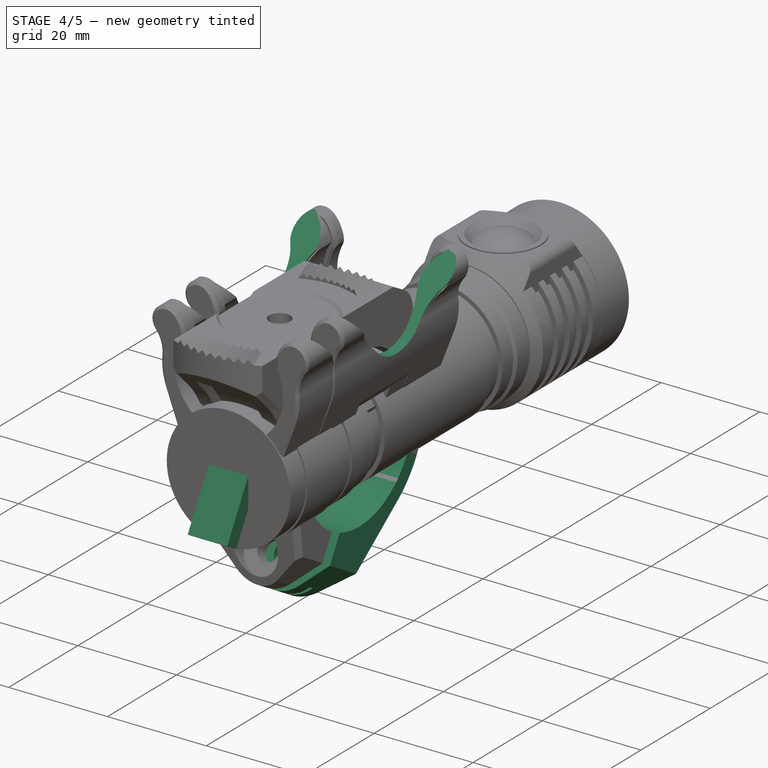
[diagram: stage 4 of 5 — iso view after this stage's code; geometry added in this stage tinted green]
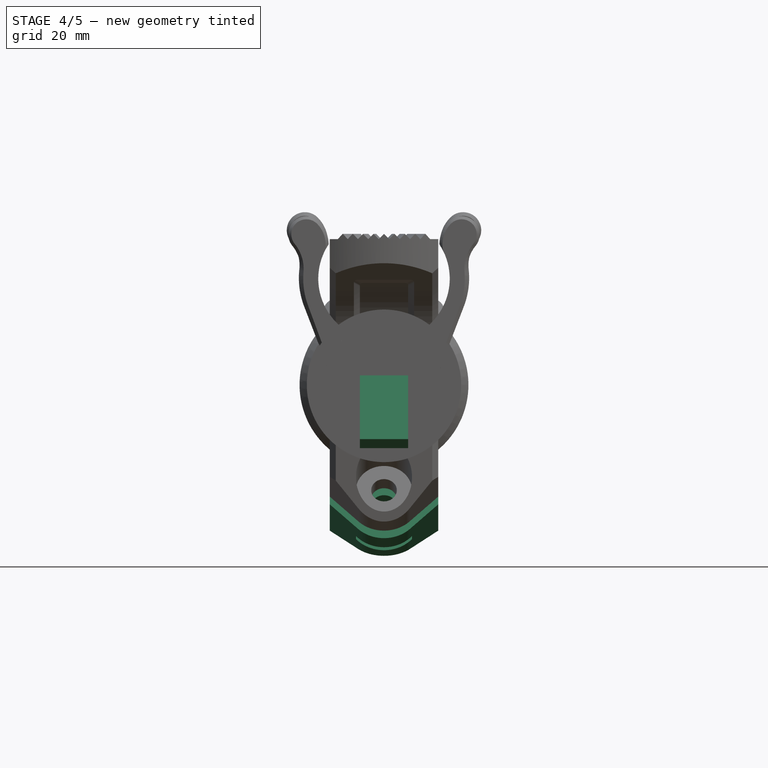
[diagram: stage 4 of 5 — front view after this stage's code; geometry added in this stage tinted green]
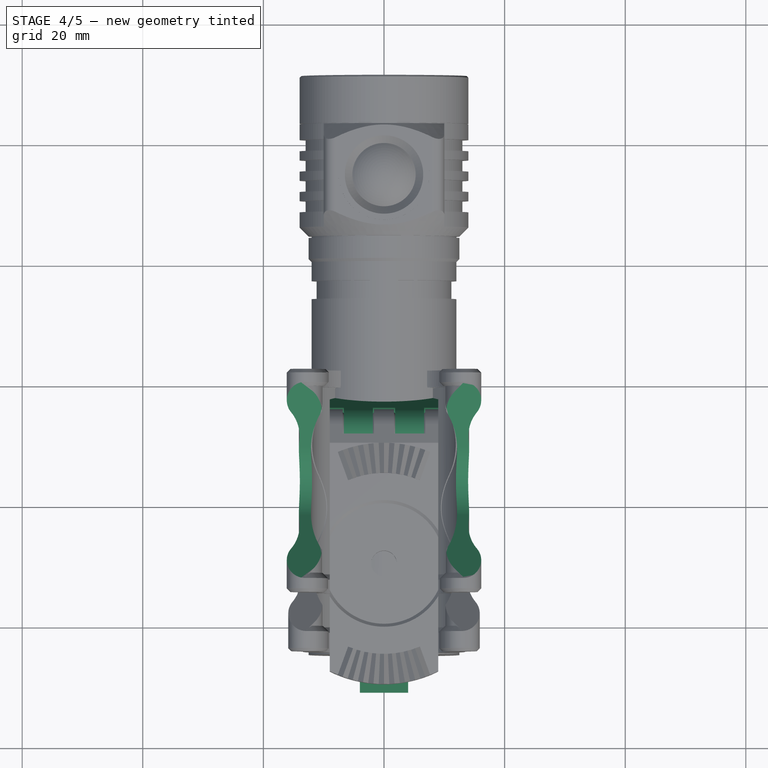
[diagram: stage 4 of 5 — top view after this stage's code; geometry added in this stage tinted green]
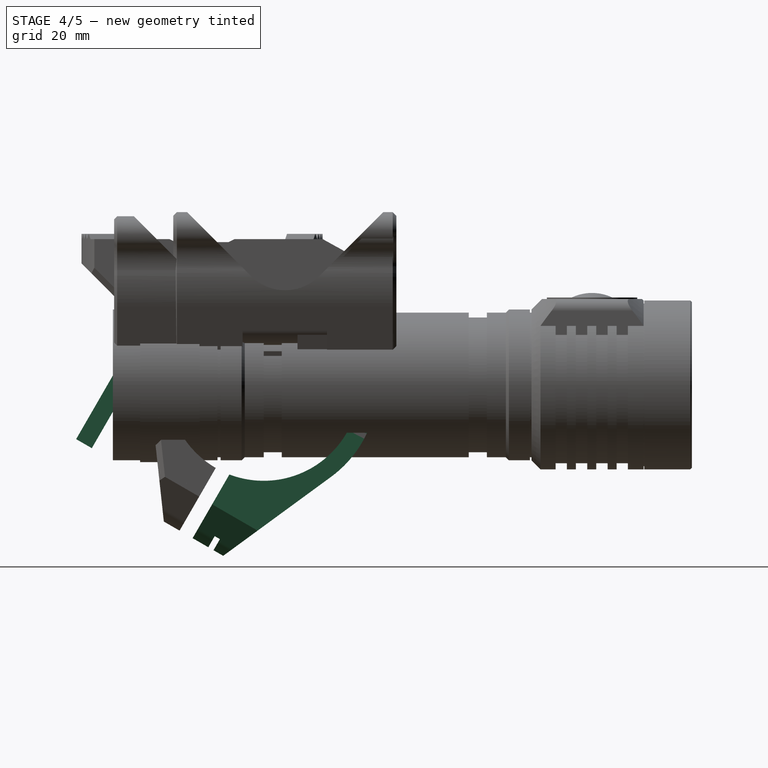
[diagram: stage 4 of 5 — right view after this stage's code; geometry added in this stage tinted green]
FEATURE [PartDesign::Line] DatumLine001
  AttacherType = Attacher::AttachEngineLine
  Length = 20
  MapMode = 19
  Placement = pos=(-1.7e-15,10.45,18.0999) rot=(-0.250563,0.935113,-0.250563;1.63783rad)
  ResizeMode = 0
  Support = -> [Sketch]
FEATURE [Sketcher::SketchObject] Sketch017
  MapMode = 14
  Placement = pos=(0,10.45,18.0999) rot=(0,0.258819,0.965926;3.14159rad)
  Support = -> [DatumLine001,Z_Axis]
  expr: Constraints[35] = 5 + <<Dimensions>>.hinge_tolerance
  sketch-geometry (13):
    g0: LineSegment [constr] StartX=-4.25 StartY=2 StartZ=0 EndX=4.25 EndY=2 EndZ=0
    g1: LineSegment StartX=-4.35 StartY=2 StartZ=0 EndX=-4.15 EndY=2 EndZ=0
    g2: LineSegment StartX=4.15 StartY=2 StartZ=0 EndX=4.35 EndY=2 EndZ=0
    g3: LineSegment StartX=-4.15 StartY=2 StartZ=0 EndX=-1.65 EndY=4.5 EndZ=0
    g4: LineSegment StartX=-1.65 StartY=4.5 StartZ=0 EndX=-1.65 EndY=5.3 EndZ=0
    g5: LineSegment StartX=-1.65 StartY=5.3 StartZ=0 EndX=-6.85 EndY=5.3 EndZ=0
    g6: LineSegment StartX=-6.85 StartY=5.3 StartZ=0 EndX=-6.85 EndY=4.5 EndZ=0
    g7: LineSegment StartX=-6.85 StartY=4.5 StartZ=0 EndX=-4.35 EndY=2 EndZ=0
    g8: LineSegment StartX=4.15 StartY=2 StartZ=0 EndX=1.65 EndY=4.5 EndZ=0
    g9: LineSegment StartX=1.65 StartY=4.5 StartZ=0 EndX=1.65 EndY=5.3 EndZ=0
    g10: LineSegment StartX=1.65 StartY=5.3 StartZ=0 EndX=6.85 EndY=5.3 EndZ=0
    g11: LineSegment StartX=6.85 StartY=5.3 StartZ=0 EndX=6.85 EndY=4.5 EndZ=0
    g12: LineSegment StartX=6.85 StartY=4.5 StartZ=0 EndX=4.35 EndY=2 EndZ=0
  constraints (37):
    c: Symmetric(g0,g0,g-2)
    c: DistanceX(g0,g0) = 8.5
    c: DistanceY(g-1,g0) = 2
    c: Horizontal(g2)
    c: Horizontal(g1)
    c: Symmetric(g1,g1,g0)
    c: Symmetric(g2,g2,g0)
    c: Equal(g2,g1)
    c: Coincident(g3,g1)
    c: Coincident(g4,g3)
    c: Vertical(g4)
    c: Coincident(g5,g4)
    c: Horizontal(g5)
    c: Coincident(g6,g5)
    c: Vertical(g6)
    c: Coincident(g7,g6)
    c: Coincident(g7,g1)
    c: Coincident(g8,g2)
    c: Coincident(g9,g8)
    c: Vertical(g9)
    c: Coincident(g10,g9)
    c: Horizontal(g10)
    c: Coincident(g11,g10)
    c: Vertical(g11)
    c: Coincident(g12,g11)
    c: Coincident(g12,g2)
    c: Perpendicular(g3,g7)
    c: Equal(g4,g6)
    c: Equal(g3,g7)
    c: Equal(g8,g12)
    c: Perpendicular(g8,g12)
    c: Equal(g9,g11)
    c: Equal(g4,g9)
    c: Equal(g10,g5)
    c: DistanceY(g12,g12) = 2.5
    c: DistanceY(g-1,g10) = 5.3
    c: DistanceX(g10,g10) = 5.2
FEATURE [Sketcher::SketchObject] Sketch018
  MapMode = 5
  Placement = pos=(0,0,0) rot=(0.57735,0.57735,0.57735;2.0944rad)
  Support = -> [YZ_Plane006]
  expr: Constraints[3] = <<Dimensions>>.clamp_diameter
  expr: Constraints[39] = <<Dimensions>>.m4_nut_slot_width / 2
  sketch-geometry (13):
    g0: ArcOfCircle CenterX=0 CenterY=0 CenterZ=0 NormalX=0 NormalY=0 NormalZ=1 AngleXU=0 Radius=15.9 StartAngle=4.34668 EndAngle=7.33038
    g1: ArcOfCircle CenterX=10.45 CenterY=18.0999 CenterZ=0 NormalX=0 NormalY=0 NormalZ=1 AngleXU=0 Radius=5 StartAngle=0.203991 EndAngle=4.18879
    g2: ArcOfCircle CenterX=0 CenterY=0 CenterZ=0 NormalX=0 NormalY=0 NormalZ=1 AngleXU=0 Radius=18.9 StartAngle=5.34432 EndAngle=6.48718
    g3: LineSegment [constr] StartX=15.9 StartY=0 StartZ=0 EndX=18.9 EndY=0 EndZ=0
    g4: LineSegment StartX=15.3463 StartY=19.1128 StartZ=0 EndX=18.5081 EndY=3.82875 EndZ=0
    g5: LineSegment StartX=-5.68605 StartY=-14.8485 StartZ=0 EndX=-11.7849 EndY=-25.4121 EndZ=0
    g6: LineSegment [constr] StartX=10.45 StartY=18.0999 StartZ=0 EndX=-7.95 EndY=-13.7698 EndZ=0
    g7: LineSegment [constr] StartX=-7.95 StartY=-13.7698 StartZ=0 EndX=-13.95 EndY=-24.1621 EndZ=0
    g8: LineSegment [constr] StartX=-13.95 StartY=-24.1621 StartZ=0 EndX=-11.7849 EndY=-25.4121 EndZ=0
    g9: LineSegment StartX=-11.7849 StartY=-25.4121 StartZ=0 EndX=-6.71512 EndY=-28.3392 EndZ=0
    g10: LineSegment StartX=-6.71512 StartY=-28.3392 StartZ=0 EndX=11.1642 EndY=-15.2502 EndZ=0
    g11: LineSegment [constr] StartX=-8.73549 StartY=-20.1303 StartZ=0 EndX=0 EndY=-25.1738 EndZ=0
    g12: LineSegment [constr] StartX=-10.4855 StartY=-23.1614 StartZ=0 EndX=-4.42332 EndY=-26.6614 EndZ=0
  constraints (41):
    c: Coincident(g0,g-1)
    c: Coincident(g1,g0)
    c: Tangent(g1,g0)
    c: Diameter(g0) = 31.8
    c: Radius(g1) = 5
    c: Coincident(g2,g0)
    c: PointOnObject(g3,g0)
    c: PointOnObject(g3,g2)
    c: Horizontal(g3)
    c: PointOnObject(g3,g-1)
    c: DistanceX(g3,g3) = 3
    c: Coincident(g4,g1)
    c: Coincident(g4,g2)
    c: Tangent(g4,g1)
    c: Tangent(g4,g2)
    c: Coincident(g5,g0)
    c: Coincident(g6,g1)
    c: PointOnObject(g6,g0)
    c: PointOnObject(g0,g6)
    c: Angle(g6,g-2) = 0.523599
    c: Coincident(g7,g6)
    c: Distance(g7) = 12
    c: Parallel(g7,g6)
    c: Coincident(g8,g7)
    c: Coincident(g8,g5)
    c: Perpendicular(g8,g7)
    c: Parallel(g5,g7)
    c: Distance(g8) = 2.5
    c: Coincident(g9,g5)
    c: Coincident(g10,g9)
    c: Coincident(g10,g2)
    c: Tangent(g10,g2)
    c: Perpendicular(g5,g9)
    c: PointOnObject(g11,g5)
    c: PointOnObject(g11,g-2)
    c: Symmetric(g0,g5,g11)
    c: PointOnObject(g12,g5)
    c: PointOnObject(g12,g10)
    c: Perpendicular(g5,g12)
    c: Distance(g12,g11) = 3.5
    c: Distance(g12) = 7
FEATURE [PartDesign::Pad] Pad004
  Direction = (1,1,1)
  Length = 18
  Length2 = 100
  Midplane = true
  Placement = pos=(0,0,0) rot=(0.57735,0.57735,0.57735;2.0944rad)
  Profile = -> Sketch018
  Type = 0
FEATURE [Sketcher::SketchObject] Sketch023
  ExternalGeometry = -> [Pad004]
  MapMode = 5
  Placement = pos=(1.3e-15,2.16506,-1.25) rot=(0.447214,0.447214,-0.774597;1.82348rad)
  Support = -> [Pad004]
  sketch-geometry (7):
    g0: ArcOfCircle CenterX=21.8011 CenterY=0 CenterZ=0 NormalX=0 NormalY=0 NormalZ=1 AngleXU=0 Radius=6.09889 StartAngle=5.49779 EndAngle=7.06858
    g1: LineSegment StartX=21.4262 StartY=9 StartZ=0 EndX=28.9 EndY=9 EndZ=0
    g2: LineSegment StartX=21.4262 StartY=-9 StartZ=0 EndX=28.9 EndY=-9 EndZ=0
    g3: LineSegment StartX=28.9 StartY=-9 StartZ=0 EndX=28.9 EndY=9 EndZ=0
    g4: LineSegment StartX=21.4262 StartY=9 StartZ=0 EndX=26.1137 EndY=4.31255 EndZ=0
    g5: LineSegment StartX=26.1137 StartY=-4.31255 StartZ=0 EndX=21.4262 EndY=-9 EndZ=0
    g6: LineSegment [constr] StartX=15.7022 StartY=0 StartZ=0 EndX=27.9 EndY=0 EndZ=0
  constraints (22):
    c: PointOnObject(g0,g-1)
    c: Horizontal(g1)
    c: Horizontal(g2)
    c: Coincident(g3,g2)
    c: Coincident(g3,g1)
    c: Vertical(g3)
    c: DistanceX(g-4,g2) = 1
    c: Tangent(g0,g-4)
    c: PointOnObject(g-4,g1)
    c: PointOnObject(g-4,g2)
    c: Coincident(g4,g1)
    c: Coincident(g4,g0)
    c: Coincident(g5,g0)
    c: Coincident(g5,g2)
    c: Tangent(g5,g0)
    c: Tangent(g0,g4)
    c: Angle(g2,g5) = 0.785398
    c: Equal(g1,g2)
    c: PointOnObject(g6,g-3)
    c: PointOnObject(g6,g-4)
    c: Horizontal(g6)
    c: Symmetric(g6,g6,g0)
FEATURE [PartDesign::Pocket] Pocket010
  BaseFeature = -> Pad004
  Length = 5
  Length2 = 100
  Placement = pos=(0,0,0) rot=(0.57735,0.57735,0.57735;2.0944rad)
  Profile = -> Sketch023
  Refine = true
  Type = 1
FEATURE [PartDesign::Groove] Groove002
  Angle = 360
  Axis = (-1,0,0)
  Base = (0,10.45,18.0999)
  BaseFeature = -> Pocket010
  Placement = pos=(0,0,0) rot=(0.57735,0.57735,0.57735;2.0944rad)
  Profile = -> Sketch019
  ReferenceAxis = -> Sketch019 [H_Axis]
  Reversed = true
FEATURE [PartDesign::Pocket] Pocket007
  BaseFeature = -> Groove002
  Length = 5
  Length2 = 100
  Placement = pos=(0,0,0) rot=(0.57735,0.57735,0.57735;2.0944rad)
  Profile = -> Sketch020
  Type = 1
FEATURE [PartDesign::Pocket] Pocket008
  BaseFeature = -> Pocket007
  Length = 1
  Length2 = 100
  Placement = pos=(0,0,0) rot=(0.57735,0.57735,0.57735;2.0944rad)
  Profile = -> Sketch021
  Type = 0
  expr: Length = <<Dimensions>>.m4_washer_slot_thickness
FEATURE [PartDesign::Pocket] Pocket009
  BaseFeature = -> Pocket008
  Length = 5
  Length2 = 100
  Placement = pos=(0,0,0) rot=(0.57735,0.57735,0.57735;2.0944rad)
  Profile = -> Sketch022
  Type = 1
FEATURE [PartDesign::Body] Body  label="Upper clamp"
  Group = -> [Sketch,Pad,Sketch009,Pocket003,Sketch010,Pocket004,Sketch011,Pocket005,DatumLine,Sketch014,Groove,Sketch015,Pocket006,Pocket011,DatumLine001,Sketch017,Groove001,Sketch024,DatumLine003,Sketch031,Pad007,PolarPattern,PolarPattern003,Sketch032,Pad008,PolarPattern004,PolarPattern005,Sketch034,Pocket014,Draft,Sketch050,Sketch051,Pocket022,Pocket023,Draft003,Chamfer005,Fillet001,LCS_1,LCS_2,LCS_3,LCS_4,+1 more]
  Origin = -> Origin
  Tip = -> Fillet001
FEATURE [Sketcher::SketchObject] Sketch052
  MapMode = 5
  Support = -> [XY_Plane011]
  sketch-geometry (4):
    g0: LineSegment StartX=-6 StartY=7 StartZ=0 EndX=6 EndY=7 EndZ=0
    g1: LineSegment StartX=6 StartY=7 StartZ=0 EndX=6 EndY=-7 EndZ=0
    g2: LineSegment StartX=6 StartY=-7 StartZ=0 EndX=-6 EndY=-7 EndZ=0
    g3: LineSegment StartX=-6 StartY=-7 StartZ=0 EndX=-6 EndY=7 EndZ=0
  constraints (10):
    c: Coincident(g0,g1)
    c: Coincident(g1,g2)
    c: Coincident(g2,g3)
    c: Coincident(g3,g0)
    c: Horizontal(g2)
    c: Vertical(g3)
    c: Symmetric(g0,g0,g-2)
    c: Symmetric(g0,g1,g-1)
    c: DistanceX(g0,g0) = 12
    c: DistanceY(g3,g3) = 14
FEATURE [PartDesign::Pad] Pad011
  Direction = (1,1,1)
  Length = 12
  Length2 = 100
  Midplane = true
  Profile = -> Sketch052
  Type = 0
FEATURE [Sketcher::SketchObject] Sketch053
  MapMode = 5
  Placement = pos=(0,0,0) rot=(0.57735,0.57735,0.57735;2.0944rad)
  Support = -> [YZ_Plane011]
  expr: Constraints[11] = <<Dimensions>>.m4_washer_slot_diameter
  sketch-geometry (4):
    g0: ArcOfCircle CenterX=0 CenterY=0 CenterZ=0 NormalX=0 NormalY=0 NormalZ=1 AngleXU=0 Radius=4.65 StartAngle=3.14159 EndAngle=6.28319
    g1: LineSegment StartX=4.65 StartY=-1.1e-15 StartZ=0 EndX=4.65 EndY=10 EndZ=0
    g2: LineSegment StartX=4.65 StartY=10 StartZ=0 EndX=-4.65 EndY=10 EndZ=0
    g3: LineSegment StartX=-4.65 StartY=10 StartZ=0 EndX=-4.65 EndY=0 EndZ=0
  constraints (12):
    c: Coincident(g0,g-1)
    c: PointOnObject(g0,g-1)
    c: PointOnObject(g0,g-1)
    c: Coincident(g1,g2)
    c: Coincident(g2,g3)
    c: Horizontal(g2)
    c: Vertical(g1)
    c: Vertical(g3)
    c: Coincident(g1,g0)
    c: DistanceY(g3,g3) = 10
    c: Coincident(g3,g0)
    c: Diameter(g0) = 9.3
FEATURE [PartDesign::Pocket] Pocket024
  BaseFeature = -> Pad011
  Length = 1
  Length2 = 100
  Profile = -> Sketch053
  Type = 0
  expr: Length = <<Dimensions>>.m4_washer_slot_thickness
FEATURE [Sketcher::SketchObject] Sketch054
  AttachmentOffset = pos=(0,0,-1) rot=(0,0,1;0rad)
  MapMode = 5
  Placement = pos=(-1,2e-16,-2e-16) rot=(0.57735,0.57735,0.57735;2.0944rad)
  Support = -> [YZ_Plane011]
  expr: .AttachmentOffset.Base.z = -<<Dimensions>>.m4_washer_slot_thickness
  expr: Constraints[19] = <<Dimensions>>.m4_nut_slot_width
  sketch-geometry (7):
    g0: LineSegment StartX=0 StartY=4.04145 StartZ=0 EndX=-3.5 EndY=2.02073 EndZ=0
    g1: LineSegment StartX=-3.5 StartY=2.02073 StartZ=0 EndX=-3.5 EndY=-2.02073 EndZ=0
    g2: LineSegment StartX=-3.5 StartY=-2.02073 StartZ=0 EndX=-9e-16 EndY=-4.04145 EndZ=0
    g3: LineSegment StartX=-9e-16 StartY=-4.04145 StartZ=0 EndX=3.5 EndY=-2.02073 EndZ=0
    g4: LineSegment StartX=3.5 StartY=-2.02073 StartZ=0 EndX=3.5 EndY=2.02073 EndZ=0
    g5: LineSegment StartX=3.5 StartY=2.02073 StartZ=0 EndX=0 EndY=4.04145 EndZ=0
    g6: Circle [constr] CenterX=0 CenterY=0 CenterZ=0 NormalX=0 NormalY=0 NormalZ=1 AngleXU=0 Radius=4.04145
  constraints (16):
    c: Coincident(g0,g1)
    c: Coincident(g1,g2)
    c: Coincident(g2,g3)
    c: Coincident(g3,g4)
    c: Coincident(g4,g5)
    c: Coincident(g5,g0)
    c: Equal(g0, g1-g5) x5
    c: PointOnObject(g0,g6)
    c: PointOnObject(g1,g6)
    c: PointOnObject(g2,g6)
    c: PointOnObject(g3,g6)
    c: PointOnObject(g4,g6)
    c: PointOnObject(g5,g6)
    c: Coincident(g6,g-1)
    c: PointOnObject(g5,g-2)
    c: DistanceX(g0,g4) = 7
FEATURE [PartDesign::Pocket] Pocket025
  BaseFeature = -> Pocket024
  Length = 5
  Length2 = 100
  Profile = -> Sketch054
  Type = 1
FEATURE [Sketcher::SketchObject] Sketch055
  MapMode = 5
  Placement = pos=(0,0,0) rot=(0.57735,0.57735,0.57735;2.0944rad)
  Support = -> [YZ_Plane011]
  expr: Constraints[1] = <<Dimensions>>.m4_through_hole_diameter
  sketch-geometry (1):
    g0: Circle CenterX=0 CenterY=0 CenterZ=0 NormalX=0 NormalY=0 NormalZ=1 AngleXU=0 Radius=2.125
  constraints (2):
    c: Coincident(g0,g-1)
    c: Diameter(g0) = 4.25
FEATURE [PartDesign::Pocket] Pocket026
  BaseFeature = -> Pocket025
  Length = 5
  Length2 = 100
  Midplane = true
  Profile = -> Sketch055
  Type = 1
FEATURE [Sketcher::SketchObject] Sketch056
  AttachmentOffset = pos=(0,0,6) rot=(0,0,1;0rad)
  MapMode = 5
  Placement = pos=(0,0,6) rot=(0,0,1;0rad)
  Support = -> [XY_Plane011]
  expr: .AttachmentOffset.Base.z = <<Pad011>>.Length / 2
  expr: Constraints[1] = <<Dimensions>>.m4_washer_slot_diameter
  sketch-geometry (1):
    g0: Circle CenterX=0 CenterY=0 CenterZ=0 NormalX=0 NormalY=0 NormalZ=1 AngleXU=0 Radius=4.65
  constraints (2):
    c: Coincident(g0,g-1)
    c: Diameter(g0) = 9.3
FEATURE [PartDesign::Pocket] Pocket027
  BaseFeature = -> Pocket026
  Length = 1
  Length2 = 100
  Profile = -> Sketch056
  Type = 0
  expr: Length = <<Dimensions>>.m4_washer_slot_thickness
FEATURE [Sketcher::SketchObject] Sketch064
  AttachmentOffset = pos=(0,0,2) rot=(0,0,1;0rad)
  MapMode = 5
  Placement = pos=(0,0,2) rot=(0,0,1;0rad)
  Support = -> [XY_Plane012]
  sketch-geometry (4):
    g0: LineSegment StartX=-9 StartY=16 StartZ=0 EndX=-9 EndY=21 EndZ=0
    g1: LineSegment StartX=-9 StartY=21 StartZ=0 EndX=9 EndY=21 EndZ=0
    g2: LineSegment StartX=9 StartY=21 StartZ=0 EndX=9 EndY=16 EndZ=0
    g3: LineSegment StartX=-9 StartY=16 StartZ=0 EndX=9 EndY=16 EndZ=0
  constraints (11):
    c: Vertical(g0)
    c: Coincident(g1,g0)
    c: Coincident(g2,g1)
    c: Symmetric(g1,g0,g-2)
    c: Equal(g0,g2)
    c: DistanceX(g1,g1) = 18
    c: DistanceY(g0,g0) = 5
    c: Coincident(g3,g0)
    c: Coincident(g3,g2)
    c: DistanceY(g-1,g0) = 16
    c: Vertical(g2)
FEATURE [PartDesign::Pocket] Pocket032
  BaseFeature = -> Mirrored002
  Length = 5
  Length2 = 100
  Placement = pos=(0,0,0) rot=(1,0,0;1.5708rad)
  Profile = -> Sketch064
  Refine = true
  Reversed = true
  Type = 1
FEATURE [Sketcher::SketchObject] Sketch065
  MapMode = 5
  Placement = pos=(0,0,0) rot=(0.57735,0.57735,0.57735;2.0944rad)
  Support = -> [YZ_Plane012]
  sketch-geometry (4):
    g0: ArcOfCircle CenterX=-8.5 CenterY=3.5 CenterZ=0 NormalX=0 NormalY=0 NormalZ=1 AngleXU=0 Radius=0.5 StartAngle=4.84137 EndAngle=6.28319
    g1: LineSegment StartX=-8.43569 StartY=3.00415 StartZ=0 EndX=-20 EndY=1.50415 EndZ=0
    g2: LineSegment StartX=-20 StartY=1.50415 StartZ=0 EndX=-20 EndY=3.5 EndZ=0
    g3: LineSegment StartX=-8 StartY=3.5 StartZ=0 EndX=-20 EndY=3.5 EndZ=0
  constraints (13):
    c: Coincident(g1,g0)
    c: Coincident(g2,g1)
    c: Vertical(g2)
    c: Radius(g0) = 0.5
    c: Coincident(g3,g0)
    c: Coincident(g3,g2)
    c: Horizontal(g3)
    c: DistanceX(g2,g-1) = 20
    c: DistanceY(g-1,g0) = 3.5
    c: Tangent(g0,g1)
    c: DistanceX(g0,g-1) = 8
    c: DistanceY(g1,g0) = 1.5
    c: Perpendicular(g0,g3)
FEATURE [PartDesign::Pocket] Pocket033
  BaseFeature = -> Pocket032
  Length = 8
  Length2 = 100
  Midplane = true
  Placement = pos=(0,0,0) rot=(1,0,0;1.5708rad)
  Profile = -> Sketch065
  Type = 0
FEATURE [Sketcher::SketchObject] Sketch066
  AttachmentOffset = pos=(0,0,8) rot=(0,0,1;0rad)
  MapMode = 5
  Placement = pos=(0,-8,-1.8e-15) rot=(1,0,0;1.5708rad)
  Support = -> [XZ_Plane012]
  sketch-geometry (10):
    g0: LineSegment StartX=-4 StartY=5 StartZ=0 EndX=-4 EndY=3.5 EndZ=0
    g1: LineSegment StartX=-4 StartY=3.5 StartZ=0 EndX=-2.8 EndY=3.5 EndZ=0
    g2: LineSegment StartX=2.8 StartY=3.5 StartZ=0 EndX=4 EndY=3.5 EndZ=0
    g3: LineSegment StartX=4 StartY=3.5 StartZ=0 EndX=4 EndY=5 EndZ=0
    g4: LineSegment StartX=3.8 StartY=4.5 StartZ=0 EndX=2.8 EndY=3.5 EndZ=0
    g5: LineSegment StartX=-3.8 StartY=4.5 StartZ=0 EndX=-2.8 EndY=3.5 EndZ=0
    g6: LineSegment StartX=-4 StartY=5 StartZ=0 EndX=-3.8 EndY=5 EndZ=0
    g7: LineSegment StartX=-3.8 StartY=5 StartZ=0 EndX=-3.8 EndY=4.5 EndZ=0
    g8: LineSegment StartX=4 StartY=5 StartZ=0 EndX=3.8 EndY=5 EndZ=0
    g9: LineSegment StartX=3.8 StartY=5 StartZ=0 EndX=3.8 EndY=4.5 EndZ=0
  constraints (29):
    c: Symmetric(g0,g3,g-2)
    c: DistanceX(g0,g3) = 8
    c: Vertical(g0)
    c: Coincident(g1,g0)
    c: Horizontal(g1)
    c: Horizontal(g2)
    c: Coincident(g3,g2)
    c: Vertical(g3)
    c: Equal(g3,g0)
    c: DistanceY(g-1,g0) = 5
    c: DistanceY(g3,g3) = 1.5
    c: Coincident(g4,g2)
    c: Coincident(g1,g5)
    c: Angle(g2,g4) = 0.785398
    c: Angle(g5,g1) = 0.785398
    c: DistanceX(g4,g3) = 0.2
    c: Coincident(g6,g0)
    c: Horizontal(g6)
    c: Coincident(g7,g6)
    c: Coincident(g7,g5)
    c: Vertical(g7)
    c: Coincident(g8,g3)
    c: Horizontal(g8)
    c: Coincident(g9,g8)
    c: Coincident(g9,g4)
    c: Vertical(g9)
    c: Equal(g8,g6)
    c: Equal(g9,g7)
    c: DistanceY(g9,g9) = 0.5
FEATURE [PartDesign::Pocket] Pocket034
  BaseFeature = -> Pocket033
  Length = 5
  Length2 = 100
  Placement = pos=(0,0,0) rot=(1,0,0;1.5708rad)
  Profile = -> Sketch066
  Reversed = true
  Type = 1
FEATURE [Sketcher::SketchObject] Sketch067
  ExternalGeometry = -> [Pocket034]
  MapMode = 5
  Placement = pos=(0,0,0) rot=(0.57735,0.57735,0.57735;2.0944rad)
  Support = -> [YZ_Plane012]
  sketch-geometry (9):
    g0: LineSegment StartX=-21.8677 StartY=5 StartZ=0 EndX=-19.6357 EndY=5 EndZ=0
    g1: LineSegment StartX=-19.6357 StartY=5 StartZ=0 EndX=-19.6357 EndY=3.5 EndZ=0
    g2: LineSegment StartX=-28.5017 StartY=-10.4904 StartZ=0 EndX=-20.5687 EndY=3.25 EndZ=0
    g3: LineSegment StartX=-19.6357 StartY=3.5 StartZ=0 EndX=-20.1357 EndY=3.5 EndZ=0
    g4: ArcOfCircle CenterX=-20.1357 CenterY=3 CenterZ=0 NormalX=0 NormalY=0 NormalZ=1 AngleXU=0 Radius=0.5 StartAngle=1.5708 EndAngle=2.61799
    g5: LineSegment StartX=-23.5998 StartY=4.00001 StartZ=0 EndX=-31.0998 EndY=-8.99037 EndZ=0
    g6: ArcOfCircle CenterX=-21.8677 CenterY=3 CenterZ=0 NormalX=0 NormalY=0 NormalZ=1 AngleXU=0 Radius=2 StartAngle=1.5708 EndAngle=2.61799
    g7: LineSegment [constr] StartX=-23.5998 StartY=4.00001 StartZ=0 EndX=-21.0017 EndY=2.50001 EndZ=0
    g8: LineSegment StartX=-31.0998 StartY=-8.99037 StartZ=0 EndX=-28.5017 EndY=-10.4904 EndZ=0
  constraints (28):
    c: Coincident(g0,g1)
    c: Horizontal(g0)
    c: Vertical(g1)
    c: Coincident(g0,g-3)
    c: DistanceY(g1,g1) = 1.5
    c: Coincident(g3,g1)
    c: Horizontal(g3)
    c: DistanceX(g3,g3) = 0.5
    c: Coincident(g4,g3)
    c: Coincident(g4,g2)
    c: Tangent(g2,g4)
    c: Tangent(g4,g3)
    c: Radius(g4) = 0.5
    c: Angle(g-1,g2) = 1.0472
    c: Coincident(g6,g0)
    c: Coincident(g6,g5)
    c: Tangent(g6,g0)
    c: Tangent(g6,g5)
    c: Parallel(g5,g2)
    c: Coincident(g7,g5)
    c: PointOnObject(g7,g2)
    c: Perpendicular(g5,g7)
    c: Distance(g7) = 3
    c: Coincident(g8,g5)
    c: Coincident(g8,g2)
    c: Perpendicular(g5,g8)
    c: Distance(g5) = 15
    c: Radius(g6) = 2
FEATURE [PartDesign::Pad] Pad014
  BaseFeature = -> Pocket034
  Direction = (1,1,1)
  Length = 8
  Length2 = 100
  Midplane = true
  Placement = pos=(0,0,0) rot=(1,0,0;1.5708rad)
  Profile = -> Sketch067
  Refine = true
  Type = 0
FEATURE [Sketcher::SketchObject] Sketch068
  AttachmentOffset = pos=(0,0,5) rot=(0,0,1;0rad)
  MapMode = 5
  Placement = pos=(0,0,5) rot=(0,0,1;0rad)
  Support = -> [XY_Plane012]
  sketch-geometry (3):
    g0: LineSegment StartX=0 StartY=-20 StartZ=0 EndX=-3.5 EndY=-16.5 EndZ=0
    g1: LineSegment StartX=0 StartY=-20 StartZ=0 EndX=3.5 EndY=-16.5 EndZ=0
    g2: LineSegment StartX=3.5 StartY=-16.5 StartZ=0 EndX=-3.5 EndY=-16.5 EndZ=0
  constraints (8):
    c: PointOnObject(g0,g-2)
    c: Coincident(g1,g0)
    c: Coincident(g2,g1)
    c: Coincident(g0,g2)
    c: Perpendicular(g1,g0)
    c: Symmetric(g1,g0,g-2)
    c: DistanceX(g2,g2) = 7
    c: DistanceY(g0,g-1) = 20
FEATURE [PartDesign::Pad] Pad015
  BaseFeature = -> Pad014
  Direction = (1,1,1)
  Length = 1
  Length2 = 100
  Placement = pos=(0,0,0) rot=(1,0,0;1.5708rad)
  Profile = -> Sketch068
  Type = 0
FEATURE [PartDesign::Draft] Draft005
  Angle = 60
  Base = -> Pad015 [Face167]
  BaseFeature = -> Pad015
  NeutralPlane = -> Pad015 [Face123]
  Placement = pos=(0,0,0) rot=(1,0,0;1.5708rad)
  SupportTransform = false
FEATURE [PartDesign::Pocket] Pocket018
  BaseFeature = -> Chamfer013
  Length = 5
  Length2 = 100
  Midplane = true
  Profile = -> Sketch045
  Type = 1
FEATURE [PartDesign::Pocket] Pocket019
  BaseFeature = -> Pocket018
  Length = 14
  Length2 = 100
  Midplane = true
  Profile = -> Sketch041
  Refine = true
  Type = 0
FEATURE [PartDesign::Revolution] Revolution001
  Angle = 105
  Axis = (0,-1,-3e-16)
  Base = (9e-16,22,18.25)
  BaseFeature = -> Pocket019
  Midplane = true
  Profile = -> Sketch047
  ReferenceAxis = -> DatumLine006
FEATURE [PartDesign::Pocket] Pocket028
  BaseFeature = -> Revolution001
  Length = 0.5
  Length2 = 100
  Profile = -> ShapeString
  Type = 0
FEATURE [PartDesign::Body] Body007  label="Mounting plate - D4"
  BaseFeature = -> Body006
  Group = -> [BaseFeature,Sketch036,Pad010,Sketch038,Pocket015,Sketch039,Pocket016,Chamfer002,Pocket017,Chamfer012,Chamfer013,Sketch041,Sketch045,Sketch046,Pocket018,Pocket019,DatumLine006,Sketch047,Revolution001,Pocket028,LCS_9,LCS_10,LCS_12,ShapeString]
  Origin = -> Origin010
  Tip = -> Pocket028
FEATURE [App::DocumentObjectGroup] Parts
  Group = -> [Part,Body,Body001,Body005,Body006,Body007,Body008,Body009,Body010]
FEATURE [App::Link] Link004  label="Mounting plate - TC15 (Link)"
  AssemblyType = Asm4EE
  AttachedBy = #LCS_014
  AttachedTo = Link#LCS_8
  LinkPlacement = pos=(-4.5e-15,-10.2203,24.1801) rot=(0,0,1;0rad)
  LinkedObject = -> Body010
  Placement = pos=(-4.5e-15,-10.2203,24.1801) rot=(0,0,1;0rad)
  expr: Placement = Link.Placement * LCS_8.Placement * AttachmentOffset * LCS_014.Placement ^ -1
FEATURE [App::Part] Model
  Configuration = 0
  Group = -> [LCS_Origin,Constraints,Variables,Link,Washer,Nut,Link001,Washer001,Nut001,Washer002,Screw,Link002,Washer003,Screw001,Link003,Link004]
  Origin = -> Origin008
  Type = Assembly4 Model
note: 2 file-system paths scrubbed to <path> (originals preserved in the JSON sidecar)
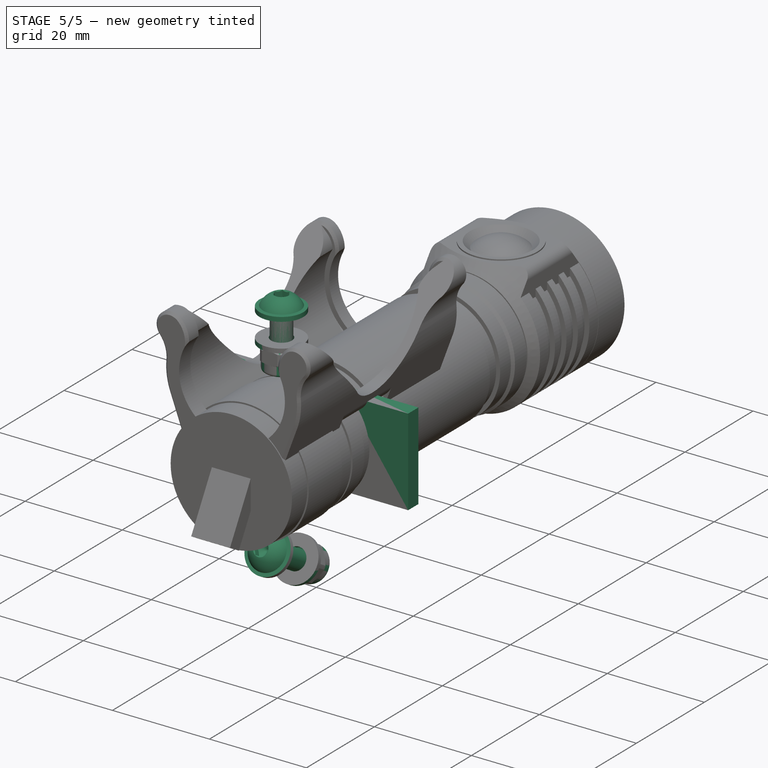
[diagram: stage 5 of 5 — iso view after this stage's code; geometry added in this stage tinted green]
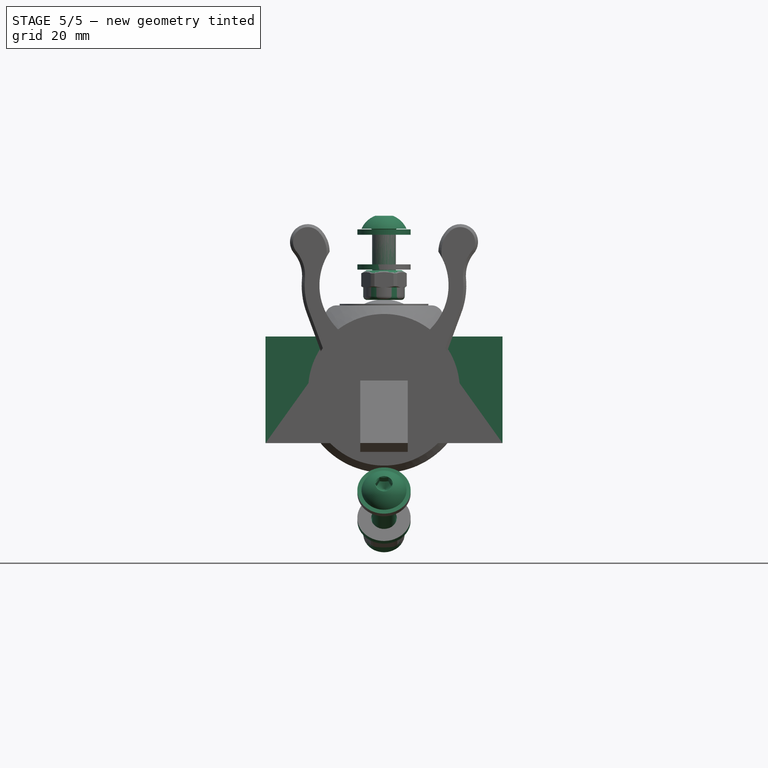
[diagram: stage 5 of 5 — front view after this stage's code; geometry added in this stage tinted green]
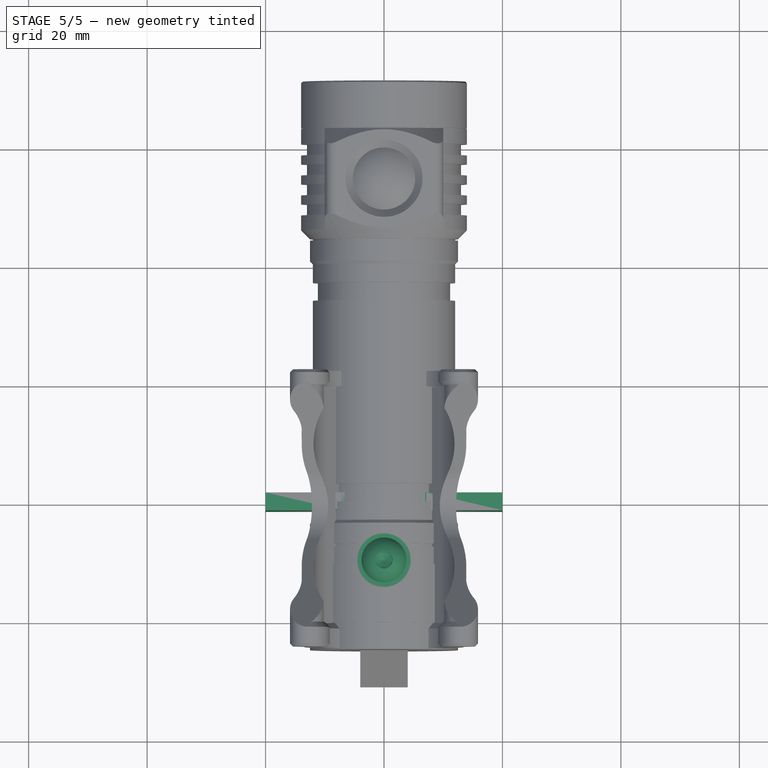
[diagram: stage 5 of 5 — top view after this stage's code; geometry added in this stage tinted green]
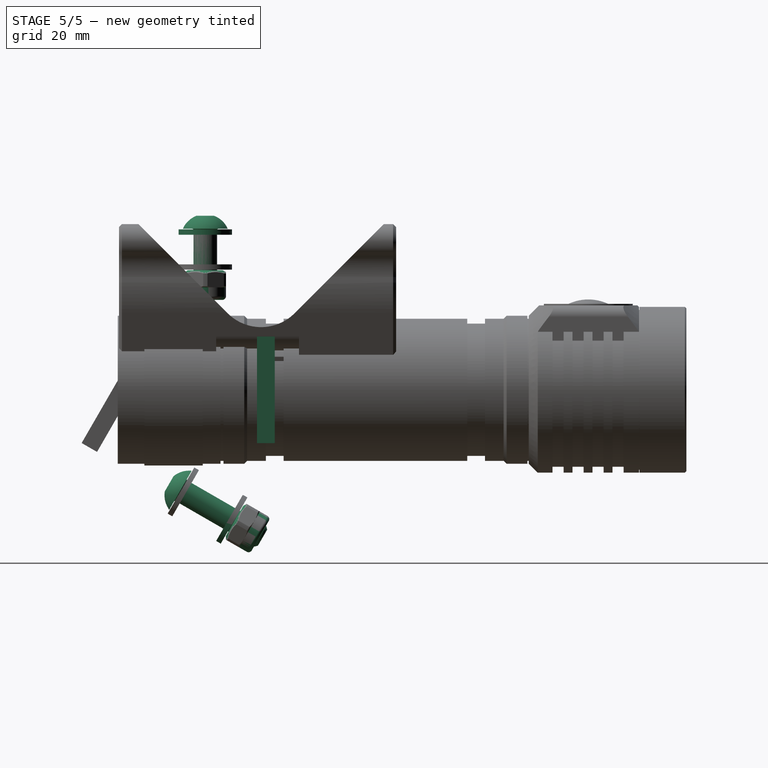
[diagram: stage 5 of 5 — right view after this stage's code; geometry added in this stage tinted green]
FEATURE [Sketcher::SketchObject] Sketch003
  MapMode = 5
  Support = -> [XY_Plane002]
  sketch-geometry (6):
    g0: ArcOfCircle CenterX=0 CenterY=0 CenterZ=0 NormalX=0 NormalY=0 NormalZ=1 AngleXU=0 Radius=5 StartAngle=3.79906 EndAngle=8.76731
    g1: LineSegment StartX=-20 StartY=-1.5 StartZ=0 EndX=-20 EndY=1.5 EndZ=0
    g2: ArcOfCircle CenterX=-7.1239 CenterY=-5.5 CenterZ=0 NormalX=0 NormalY=0 NormalZ=1 AngleXU=0 Radius=4 StartAngle=0.657459 EndAngle=1.5708
    g3: ArcOfCircle CenterX=-7.1239 CenterY=5.5 CenterZ=0 NormalX=0 NormalY=0 NormalZ=1 AngleXU=0 Radius=4 StartAngle=4.71239 EndAngle=5.62573
    g4: LineSegment StartX=-7.1239 StartY=1.5 StartZ=0 EndX=-20 EndY=1.5 EndZ=0
    g5: LineSegment StartX=-20 StartY=-1.5 StartZ=0 EndX=-7.1239 EndY=-1.5 EndZ=0
  constraints (19):
    c: Coincident(g0,g-1)
    c: Radius(g0) = 5
    c: Symmetric(g1,g1,g-1)
    c: DistanceY(g1,g1) = 3
    c: DistanceX(g1,g0) = 20
    c: Coincident(g2,g0)
    c: Coincident(g3,g0)
    c: Tangent(g3,g0)
    c: Tangent(g0,g2)
    c: Equal(g3,g2)
    c: Coincident(g4,g3)
    c: Coincident(g4,g1)
    c: Coincident(g5,g1)
    c: Coincident(g5,g2)
    c: Horizontal(g5)
    c: Horizontal(g4)
    c: Tangent(g3,g4)
    c: Tangent(g2,g5)
    c: Radius(g3) = 4
FEATURE [PartDesign::Pad] Pad001
  Direction = (1,1,1)
  Length = 18
  Length2 = 100
  Midplane = true
  Profile = -> Sketch003
  Type = 0
FEATURE [Sketcher::SketchObject] Sketch005
  AttachmentOffset = pos=(0,0,4.25) rot=(0,0,1;0rad)
  MapMode = 5
  Placement = pos=(0,0,4.25) rot=(0,0,1;0rad)
  Support = -> [XY_Plane002]
  sketch-geometry (2):
    g0: Circle CenterX=0 CenterY=0 CenterZ=0 NormalX=0 NormalY=0 NormalZ=1 AngleXU=0 Radius=5.5
    g1: Circle CenterX=0 CenterY=0 CenterZ=0 NormalX=0 NormalY=0 NormalZ=1 AngleXU=0 Radius=2
  constraints (4):
    c: Coincident(g0,g-1)
    c: Coincident(g1,g0)
    c: Radius(g1) = 2
    c: Radius(g0) = 5.5
FEATURE [PartDesign::Pocket] Pocket
  BaseFeature = -> Pad001
  Length = 5.2
  Length2 = 100
  Midplane = true
  Profile = -> Sketch005
  Type = 0
FEATURE [PartDesign::Mirrored] Mirrored
  BaseFeature = -> Pocket
  MirrorPlane = -> XY_Plane002
  Originals = -> [Pocket]
FEATURE [PartDesign::Chamfer] Chamfer
  Angle = 45
  Base = -> Mirrored [Edge45,Edge35,Edge30,Edge40]
  BaseFeature = -> Mirrored
  ChamferType = 0
  FlipDirection = false
  Size = 2.5
  Size2 = 1
  SupportTransform = false
FEATURE [PartDesign::Body] Body002
  Group = -> [Sketch003,Pad001,Sketch005,Pocket,Mirrored,Chamfer]
  Origin = -> Origin002
  Tip = -> Chamfer
FEATURE [Sketcher::SketchObject] Sketch006
  MapMode = 5
  Support = -> [XY_Plane003]
  sketch-geometry (7):
    g0: LineSegment StartX=20 StartY=-1.5 StartZ=0 EndX=20 EndY=1.5 EndZ=0
    g1: ArcOfCircle CenterX=0 CenterY=0 CenterZ=0 NormalX=0 NormalY=0 NormalZ=1 AngleXU=0 Radius=5 StartAngle=0.657468 EndAngle=5.62572
    g2: Circle CenterX=0 CenterY=0 CenterZ=0 NormalX=0 NormalY=0 NormalZ=1 AngleXU=0 Radius=2.5
    g3: ArcOfCircle CenterX=7.1239 CenterY=-5.5 CenterZ=0 NormalX=0 NormalY=0 NormalZ=1 AngleXU=0 Radius=4 StartAngle=1.5708 EndAngle=2.48413
    g4: ArcOfCircle CenterX=7.1239 CenterY=5.5 CenterZ=0 NormalX=0 NormalY=0 NormalZ=1 AngleXU=0 Radius=4 StartAngle=3.79905 EndAngle=4.71239
    g5: LineSegment StartX=7.1239 StartY=-1.5 StartZ=0 EndX=20 EndY=-1.5 EndZ=0
    g6: LineSegment StartX=20 StartY=1.5 StartZ=0 EndX=7.1239 EndY=1.5 EndZ=0
  constraints (21):
    c: DistanceY(g0,g0) = 3
    c: Symmetric(g0,g0,g-1)
    c: Coincident(g1,g-1)
    c: Coincident(g2,g1)
    c: Radius(g2) = 2.5
    c: Radius(g1) = 5
    c: DistanceX(g1,g0) = 20
    c: Coincident(g3,g1)
    c: Coincident(g4,g1)
    c: Tangent(g1,g4)
    c: Tangent(g3,g1)
    c: Coincident(g5,g3)
    c: Coincident(g5,g0)
    c: Coincident(g6,g0)
    c: Coincident(g6,g4)
    c: Tangent(g6,g4)
    c: Tangent(g3,g5)
    c: Horizontal(g5)
    c: Horizontal(g6)
    c: Equal(g4,g3)
    c: Radius(g4) = 4
FEATURE [PartDesign::Pad] Pad002
  Direction = (1,1,1)
  Length = 18
  Length2 = 100
  Midplane = true
  Profile = -> Sketch006
  Type = 0
FEATURE [Sketcher::SketchObject] Sketch007
  MapMode = 5
  Support = -> [XY_Plane003]
  sketch-geometry (1):
    g0: Circle CenterX=0 CenterY=0 CenterZ=0 NormalX=0 NormalY=0 NormalZ=1 AngleXU=0 Radius=5.5
  constraints (2):
    c: Coincident(g0,g-1)
    c: Radius(g0) = 5.5
FEATURE [PartDesign::Pocket] Pocket001
  BaseFeature = -> Pad002
  Length = 3.7
  Length2 = 100
  Midplane = true
  Profile = -> Sketch007
  Type = 0
FEATURE [Sketcher::SketchObject] Sketch008
  AttachmentOffset = pos=(0,0,6.65) rot=(0,0,1;0rad)
  MapMode = 5
  Placement = pos=(0,0,6.65) rot=(0,0,1;0rad)
  Support = -> [XY_Plane003]
  sketch-geometry (1):
    g0: Circle CenterX=0 CenterY=0 CenterZ=0 NormalX=0 NormalY=0 NormalZ=1 AngleXU=0 Radius=5.25
  constraints (2):
    c: Coincident(g0,g-1)
    c: Radius(g0) = 5.25
FEATURE [PartDesign::Pocket] Pocket002
  BaseFeature = -> Pocket001
  Length = 5
  Length2 = 100
  Profile = -> Sketch008
  Reversed = true
  Type = 1
FEATURE [PartDesign::Mirrored] Mirrored001
  BaseFeature = -> Pocket002
  MirrorPlane = -> XY_Plane003
  Originals = -> [Pocket002]
FEATURE [PartDesign::Chamfer] Chamfer001
  Angle = 45
  Base = -> Mirrored001 [Edge32,Edge38,Edge50,Edge44]
  BaseFeature = -> Mirrored001
  ChamferType = 0
  FlipDirection = false
  Size = 2.3
  Size2 = 1
  SupportTransform = false
FEATURE [PartDesign::Line] DatumLine002
  AttacherType = Attacher::AttachEngineLine
  Length = 20
  MapMode = 19
  Placement = pos=(-1.7e-15,10.45,18.0999) rot=(0.612783,0.498992,0.612783;2.21591rad)
  ResizeMode = 0
  Support = -> [Sketch018]
FEATURE [PartDesign::ShapeBinder] ShapeBinder
  Placement = pos=(0,10.45,18.0999) rot=(0,0.258819,0.965926;3.14159rad)
  Support = -> [Sketch017]
  TraceSupport = false
FEATURE [Sketcher::SketchObject] Sketch019
  ExternalGeometry = -> [ShapeBinder]
  MapMode = 14
  Placement = pos=(0,10.45,18.0999) rot=(0,0.258819,0.965926;3.14159rad)
  Support = -> [DatumLine002,Z_Axis006]
  expr: Constraints[33] = <<Dimensions>>.hinge_tolerance
  sketch-geometry (24):
    g0: LineSegment StartX=-9 StartY=0 StartZ=0 EndX=9 EndY=0 EndZ=0
    g1: LineSegment StartX=-9 StartY=0 StartZ=0 EndX=-9 EndY=5.3 EndZ=0
    g2: LineSegment StartX=-9 StartY=5.3 StartZ=0 EndX=-6.65 EndY=5.3 EndZ=0
    g3: LineSegment StartX=-6.65 StartY=5.3 StartZ=0 EndX=-6.65 EndY=4.6 EndZ=0
    g4: LineSegment StartX=-6.65 StartY=4.6 StartZ=0 EndX=-4.35 EndY=2.3 EndZ=0
    g5: LineSegment StartX=-4.35 StartY=2.3 StartZ=0 EndX=-4.15 EndY=2.3 EndZ=0
    g6: LineSegment StartX=-4.15 StartY=2.3 StartZ=0 EndX=-1.85 EndY=4.6 EndZ=0
    g7: LineSegment StartX=-1.85 StartY=4.6 StartZ=0 EndX=-1.85 EndY=5.3 EndZ=0
    g8: LineSegment StartX=-1.85 StartY=5.3 StartZ=0 EndX=1.85 EndY=5.3 EndZ=0
    g9: LineSegment [constr] StartX=-6.65 StartY=4.6 StartZ=0 EndX=-6.65 EndY=4.3 EndZ=0
    g10: LineSegment [constr] StartX=-4.35 StartY=2.3 StartZ=0 EndX=-4.35 EndY=2 EndZ=0
    g11: LineSegment [constr] StartX=-1.85 StartY=4.6 StartZ=0 EndX=-1.85 EndY=4.3 EndZ=0
    g12: LineSegment [constr] StartX=-4.15 StartY=2.3 StartZ=0 EndX=-4.15 EndY=2 EndZ=0
    g13: LineSegment StartX=1.85 StartY=5.3 StartZ=0 EndX=1.85 EndY=4.6 EndZ=0
    g14: LineSegment StartX=1.85 StartY=4.6 StartZ=0 EndX=4.15 EndY=2.3 EndZ=0
    g15: LineSegment StartX=4.15 StartY=2.3 StartZ=0 EndX=4.35 EndY=2.3 EndZ=0
    g16: LineSegment StartX=4.35 StartY=2.3 StartZ=0 EndX=6.65 EndY=4.6 EndZ=0
    g17: LineSegment StartX=6.65 StartY=4.6 StartZ=0 EndX=6.65 EndY=5.3 EndZ=0
    g18: LineSegment StartX=6.65 StartY=5.3 StartZ=0 EndX=9 EndY=5.3 EndZ=0
    g19: LineSegment StartX=9 StartY=5.3 StartZ=0 EndX=9 EndY=0 EndZ=0
    g20: LineSegment [constr] StartX=1.85 StartY=4.6 StartZ=0 EndX=1.85 EndY=4.3 EndZ=0
    g21: LineSegment [constr] StartX=4.15 StartY=2.3 StartZ=0 EndX=4.15 EndY=2 EndZ=0
    g22: LineSegment [constr] StartX=4.35 StartY=2.3 StartZ=0 EndX=4.35 EndY=2 EndZ=0
    g23: LineSegment [constr] StartX=6.65 StartY=4.6 StartZ=0 EndX=6.65 EndY=4.3 EndZ=0
  constraints (68):
    c: PointOnObject(g0,g-1)
    c: Symmetric(g0,g0,g-2)
    c: DistanceX(g0,g0) = 18
    c: Coincident(g1,g0)
    c: Vertical(g1)
    c: Coincident(g2,g1)
    c: Horizontal(g2)
    c: DistanceX(g-3,g2) = 0.2
    c: Coincident(g3,g2)
    c: Vertical(g3)
    c: Coincident(g4,g3)
    c: Coincident(g5,g4)
    c: Coincident(g6,g5)
    c: Coincident(g7,g6)
    c: Vertical(g7)
    c: Coincident(g8,g7)
    c: Horizontal(g8)
    c: PointOnObject(g-4,g8)
    c: Coincident(g9,g3)
    c: PointOnObject(g9,g-6)
    c: Vertical(g9)
    c: Coincident(g10,g4)
    c: Coincident(g10,g-6)
    c: Vertical(g10)
    c: Coincident(g11,g6)
    c: PointOnObject(g11,g-5)
    c: Vertical(g11)
    c: Coincident(g12,g5)
    c: Coincident(g12,g-5)
    c: Vertical(g12)
    c: Equal(g10,g12)
    c: Equal(g12,g11)
    c: Equal(g11,g9)
    c: DistanceY(g9,g9) = 0.3
    c: PointOnObject(g-3,g2)
    c: Coincident(g13,g8)
    c: Vertical(g13)
    c: Coincident(g14,g13)
    c: Coincident(g15,g14)
    c: Coincident(g16,g15)
    c: Coincident(g17,g16)
    c: Vertical(g17)
    c: Coincident(g18,g17)
    c: Horizontal(g18)
    c: Coincident(g19,g18)
    c: Coincident(g19,g0)
    c: Vertical(g19)
    c: Coincident(g20,g13)
    c: PointOnObject(g20,g-8)
    c: Vertical(g20)
    c: Coincident(g21,g14)
    c: Coincident(g21,g-8)
    c: Coincident(g22,g15)
    c: Coincident(g22,g-9)
    c: Vertical(g22)
    c: Vertical(g21)
    c: Coincident(g23,g16)
    c: PointOnObject(g23,g-9)
    c: Vertical(g23)
    c: Equal(g23,g22)
    c: Equal(g22,g21)
    c: Equal(g21,g20)
    c: Equal(g20,g11)
    c: PointOnObject(g-10,g18)
    c: Equal(g7,g3)
    c: Equal(g13,g17)
    c: Equal(g13,g7)
    c: DistanceX(g8,g17) = 4.8
FEATURE [Spreadsheet::Sheet] Spreadsheet  label="Dimensions"
  cells = A1=Clamp diameter; B1(clamp_diameter)=31.8; C1=31.8, 26, 25.4, 23.8, 22.2; A2=Hinge tolerance; B2(hinge_tolerance)=0.3; A3=M4 through-hole diameter; B3(m4_through_hole_diameter)=4.25; A4=M4 washer slot diameter; B4(m4_washer_slot_diameter)=9.300000000000001; A5=M4 washer slot thickness; B5(m4_washer_slot_thickness)=1; A6=M4 nut slot width; B6(m4_nut_slot_width)=7
FEATURE [PartDesign::CoordinateSystem] LCS_Origin
  AttacherType = Attacher::AttachEngine3D
  MapMode = 2
  Support = -> [X_Axis008]
FEATURE [App::DocumentObjectGroup] Constraints
FEATURE [App::FeaturePython] Variables  # WARN: FeaturePython — macro-defined, semantics opaque (R4)
  hinge_angle = 0
  mount_angle = 0
FEATURE [PartDesign::CoordinateSystem] LCS_1  label="LCS_Upper_clamp_clamping_screw"
  AttacherType = Attacher::AttachEngine3D
  MapMode = 11
  Placement = pos=(2.6e-14,-13.5481,-17.466) rot=(1,0,0;1.0472rad)
  Support = -> [Groove]
FEATURE [App::Link] Link  label="Upper clamp (Link)"
  LinkedObject = -> Body
FEATURE [PartDesign::CoordinateSystem] LCS_2  label="LCS_Upper_clamp_mounting_washer"
  AttacherType = Attacher::AttachEngine3D
  MapMode = 11
  Placement = pos=(-3.7e-15,-10.2203,21.1801) rot=(0,0,1;0rad)
  Support = -> [Sketch010]
FEATURE [PartDesign::CoordinateSystem] LCS_3  label="LCS_Upper_clamp_mounting_nut"
  AttacherType = Attacher::AttachEngine3D
  AttachmentOffset = pos=(0,0,-1) rot=(0,0,1;0rad)
  MapMode = 5
  Placement = pos=(-3.4e-15,-10.2203,20.1801) rot=(0,0,1;0rad)
  Support = -> [LCS_2]
  expr: .AttachmentOffset.Base.z = -<<Dimensions>>.m4_washer_slot_thickness
FEATURE [Part::FeaturePython] Washer  label="M4-Washer"  # Fasteners workbench fastener (typed FeaturePython)
  AssemblyType = Asm4EE
  AttachedBy = Origin
  AttachedTo = Link#LCS_2
  AttachmentOffset = pos=(0,0,0) rot=(1,0,0;3.14159rad)
  Placement = pos=(-1e-14,-10.2203,21.1801) rot=(1,0,0;3.14159rad)
  diameter = 5
  invert = false
  matchOuter = false
  offset = 0
  type = 0
  expr: Placement = Link.Placement * LCS_2.Placement * AttachmentOffset
FEATURE [Part::FeaturePython] Nut  label="M4-Nut"  # Fasteners workbench fastener (typed FeaturePython)
  AssemblyType = Asm4EE
  AttachedBy = Origin
  AttachedTo = Link#LCS_3
  AttachmentOffset = pos=(0,0,0) rot=(-1,0,0;3.14159rad)
  Placement = pos=(-1e-14,-10.2203,20.1801) rot=(1,0,0;3.14159rad)
  diameter = 2
  invert = false
  matchOuter = false
  offset = 0
  thread = false
  type = 2
  expr: Placement = Link.Placement * LCS_3.Placement * AttachmentOffset
FEATURE [App::Link] Link001  label="Lower clamp (Link)"
  AssemblyType = Asm4EE
  AttachedBy = #LCS_5
  AttachedTo = Link#LCS_4
  LinkPlacement = pos=(-3.6e-15,7.1e-15,-7.1e-15) rot=(0,0,1;0rad)
  LinkedObject = -> Body005
  Placement = pos=(-3.6e-15,7.1e-15,-7.1e-15) rot=(0,0,1;0rad)
  expr: Placement = Link.Placement * LCS_4.Placement * AttachmentOffset * LCS_5.Placement ^ -1
  expr: .AttachmentOffset.Rotation.Yaw = -Variables.hinge_angle
FEATURE [PartDesign::CoordinateSystem] LCS_4  label="LCS_Upper_clamp_hinge"
  AttacherType = Attacher::AttachEngine3D
  MapMode = 7
  Placement = pos=(-1.7e-15,10.45,18.0999) rot=(-0.57735,0.57735,0.57735;4.18879rad)
  Support = -> [DatumLine001]
FEATURE [PartDesign::CoordinateSystem] LCS_5  label="LCS_Lower_clamp_hinge"
  AttacherType = Attacher::AttachEngine3D
  MapMode = 7
  Placement = pos=(-1.7e-15,10.45,18.0999) rot=(-0.57735,0.57735,0.57735;4.18879rad)
  Support = -> [DatumLine002]
FEATURE [Sketcher::SketchObject] Sketch020
  ExternalGeometry = -> [Pad004]
  MapMode = 5
  Placement = pos=(1.3e-15,2.16506,-1.25) rot=(0.447214,0.447214,-0.774597;1.82348rad)
  Support = -> [Pad004]
  expr: Constraints[1] = <<Dimensions>>.m4_through_hole_diameter
  sketch-geometry (3):
    g0: Circle CenterX=21.8011 CenterY=0 CenterZ=0 NormalX=0 NormalY=0 NormalZ=1 AngleXU=0 Radius=2.125
    g1: LineSegment [constr] StartX=21.8011 StartY=0 StartZ=0 EndX=15.7022 EndY=0 EndZ=0
    g2: LineSegment [constr] StartX=21.8011 StartY=0 StartZ=0 EndX=27.9 EndY=0 EndZ=0
  constraints (9):
    c: PointOnObject(g0,g-1)
    c: Diameter(g0) = 4.25
    c: Coincident(g1,g0)
    c: PointOnObject(g1,g-3)
    c: Horizontal(g1)
    c: Coincident(g2,g0)
    c: PointOnObject(g2,g-4)
    c: Horizontal(g2)
    c: Equal(g2,g1)
FEATURE [Sketcher::SketchObject] Sketch021
  AttachmentOffset = pos=(0,0,-3) rot=(0,0,1;0rad)
  MapMode = 11
  Placement = pos=(-1.6e-15,-6.13742,-21.6303) rot=(1,0,0;1.0472rad)
  Support = -> [Sketch020]
  expr: Constraints[11] = <<Dimensions>>.m4_washer_slot_diameter
  sketch-geometry (4):
    g0: ArcOfCircle CenterX=0 CenterY=0 CenterZ=0 NormalX=0 NormalY=0 NormalZ=1 AngleXU=0 Radius=4.65 StartAngle=0 EndAngle=3.14159
    g1: LineSegment StartX=4.65 StartY=0 StartZ=0 EndX=4.65 EndY=-10 EndZ=0
    g2: LineSegment StartX=4.65 StartY=-10 StartZ=0 EndX=-4.65 EndY=-10 EndZ=0
    g3: LineSegment StartX=-4.65 StartY=-10 StartZ=0 EndX=-4.65 EndY=0 EndZ=0
  constraints (12):
    c: Coincident(g0,g-1)
    c: PointOnObject(g0,g-1)
    c: PointOnObject(g0,g-1)
    c: Coincident(g1,g2)
    c: Coincident(g2,g3)
    c: Horizontal(g2)
    c: Vertical(g1)
    c: Vertical(g3)
    c: Coincident(g0,g1)
    c: Coincident(g0,g3)
    c: DistanceY(g3,g3) = 10
    c: Diameter(g0) = 9.3
FEATURE [Sketcher::SketchObject] Sketch022
  AttachmentOffset = pos=(0,0,-4) rot=(0,0,1;0rad)
  MapMode = 11
  Placement = pos=(-1e-15,-5.27139,-22.1303) rot=(1,0,0;1.0472rad)
  Support = -> [Sketch020]
  expr: Constraints[19] = <<Dimensions>>.m4_nut_slot_width
  expr: .AttachmentOffset.Base.z = -3 - <<Dimensions>>.m4_washer_slot_thickness
  sketch-geometry (7):
    g0: LineSegment StartX=-4.04145 StartY=-1e-16 StartZ=0 EndX=-2.02073 EndY=-3.5 EndZ=0
    g1: LineSegment StartX=-2.02073 StartY=-3.5 StartZ=0 EndX=2.02073 EndY=-3.5 EndZ=0
    g2: LineSegment StartX=2.02073 StartY=-3.5 StartZ=0 EndX=4.04145 EndY=0 EndZ=0
    g3: LineSegment StartX=4.04145 StartY=1e-16 StartZ=0 EndX=2.02073 EndY=3.5 EndZ=0
    g4: LineSegment StartX=2.02073 StartY=3.5 StartZ=0 EndX=-2.02073 EndY=3.5 EndZ=0
    g5: LineSegment StartX=-2.02073 StartY=3.5 StartZ=0 EndX=-4.04145 EndY=0 EndZ=0
    g6: Circle [constr] CenterX=0 CenterY=0 CenterZ=0 NormalX=0 NormalY=0 NormalZ=1 AngleXU=0 Radius=4.04145
  constraints (16):
    c: Coincident(g0,g1)
    c: Coincident(g1,g2)
    c: Coincident(g2,g3)
    c: Coincident(g3,g4)
    c: Coincident(g4,g5)
    c: Coincident(g5,g0)
    c: Equal(g0, g1-g5) x5
    c: PointOnObject(g0,g6)
    c: PointOnObject(g1,g6)
    c: PointOnObject(g2,g6)
    c: PointOnObject(g3,g6)
    c: PointOnObject(g4,g6)
    c: PointOnObject(g5,g6)
    c: Coincident(g6,g-1)
    c: Horizontal(g4)
    c: DistanceY(g0,g4) = 7
FEATURE [PartDesign::CoordinateSystem] LCS_6  label="LCS_Lower_clamp_clamping_washer"
  AttacherType = Attacher::AttachEngine3D
  MapMode = 11
  Placement = pos=(-1.8e-15,-6.13742,-21.6303) rot=(0.447214,-0.447214,0.774597;1.82348rad)
  Support = -> [Sketch021]
FEATURE [PartDesign::CoordinateSystem] LCS_7  label="LCS_Lower_clamp_clamping_nut"
  AttacherType = Attacher::AttachEngine3D
  AttachmentOffset = pos=(0,0,-1) rot=(0,0,1;0rad)
  MapMode = 5
  Placement = pos=(-1.1e-15,-5.27139,-22.1303) rot=(0.447214,-0.447214,0.774597;1.82348rad)
  Support = -> [LCS_6]
  expr: .AttachmentOffset.Base.z = -<<Dimensions>>.m4_washer_slot_thickness
FEATURE [Part::FeaturePython] Washer001  label="M4-Washer891"  # Fasteners workbench fastener (typed FeaturePython)
  AssemblyType = Asm4EE
  AttachedBy = Origin
  AttachedTo = Link001#LCS_6
  AttachmentOffset = pos=(0,0,0) rot=(1,0,0;3.14159rad)
  Placement = pos=(-6e-15,-6.13742,-21.6303) rot=(0.654654,0.654654,0.377964;3.86433rad)
  diameter = 5
  invert = false
  matchOuter = false
  offset = 0
  type = 0
  expr: Placement = Link001.Placement * LCS_6.Placement * AttachmentOffset
FEATURE [Part::FeaturePython] Nut001  label="M4-Nut001"  # Fasteners workbench fastener (typed FeaturePython)
  AssemblyType = Asm4EE
  AttachedBy = Origin
  AttachedTo = Link001#LCS_7
  AttachmentOffset = pos=(0,0,0) rot=(0.707107,-0.707107,0;3.14159rad)
  Placement = pos=(-5e-15,-5.27139,-22.1303) rot=(-1,0,0;2.0944rad)
  diameter = 2
  invert = false
  matchOuter = false
  offset = 0
  thread = false
  type = 2
  expr: Placement = Link001.Placement * LCS_7.Placement * AttachmentOffset
FEATURE [PartDesign::CoordinateSystem] LCS_8  label="LCS_Upper_clamp_mount"
  AttacherType = Attacher::AttachEngine3D
  AttachmentOffset = pos=(0,0,-0.5) rot=(0,0,1;0rad)
  MapMode = 11
  Placement = pos=(-4.4e-15,-10.2203,23.6801) rot=(0,0,1;0rad)
  Support = -> [Sketch009]
FEATURE [Part::FeaturePython] Washer002  label="M4-Washer889"  # Fasteners workbench fastener (typed FeaturePython)
  AssemblyType = Asm4EE
  AttachedBy = Origin
  AttachedTo = Link#LCS_1
  Placement = pos=(2.8e-14,-13.5481,-17.466) rot=(1,0,0;1.0472rad)
  diameter = 5
  invert = false
  matchOuter = false
  offset = 0
  type = 0
  expr: Placement = Link.Placement * LCS_1.Placement * AttachmentOffset
FEATURE [Part::FeaturePython] Screw  label="M4x16-Screw"  # Fasteners workbench fastener (typed FeaturePython)
  AssemblyType = Asm4EE
  AttachedBy = Origin
  AttachedTo = Link#LCS_1
  AttachmentOffset = pos=(0,0,1) rot=(0,0,1;0rad)
  Placement = pos=(2.6e-14,-14.4141,-16.966) rot=(1,0,0;1.0472rad)
  diameter = 2
  invert = false
  length = 5
  lengthCustom = 16
  matchOuter = false
  offset = 0
  thread = false
  type = 20
  expr: Placement = Link.Placement * LCS_1.Placement * AttachmentOffset
FEATURE [Sketcher::SketchObject] Sketch033
  AttachmentOffset = pos=(0,0,5) rot=(0,0,1;0rad)
  MapMode = 5
  Placement = pos=(0,0,5) rot=(0,0,1;0rad)
  Support = -> [XY_Plane009]
  expr: Constraints[18] = <<Dimensions>>.m4_washer_slot_diameter / 2 + 1
  expr: .AttachmentOffset.Base.z = <<Pad006>>.Length
  sketch-geometry (7):
    g0: LineSegment StartX=-0.5 StartY=5.65 StartZ=0 EndX=-0.5 EndY=8.85778 EndZ=0
    g1: LineSegment StartX=-0.5 StartY=8.85778 StartZ=0 EndX=-1.5 EndY=8.85778 EndZ=0
    g2: LineSegment StartX=-1.5 StartY=8.85778 StartZ=0 EndX=0 EndY=11 EndZ=0
    g3: LineSegment StartX=0 StartY=11 StartZ=0 EndX=1.5 EndY=8.85778 EndZ=0
    g4: LineSegment StartX=1.5 StartY=8.85778 StartZ=0 EndX=0.5 EndY=8.85778 EndZ=0
    g5: LineSegment StartX=0.5 StartY=8.85778 StartZ=0 EndX=0.5 EndY=5.65 EndZ=0
    g6: LineSegment StartX=0.5 StartY=5.65 StartZ=0 EndX=-0.5 EndY=5.65 EndZ=0
  constraints (20):
    c: Vertical(g0)
    c: Coincident(g1,g0)
    c: Horizontal(g1)
    c: Coincident(g2,g1)
    c: PointOnObject(g2,g-2)
    c: Coincident(g3,g2)
    c: Coincident(g4,g3)
    c: Horizontal(g4)
    c: Coincident(g5,g4)
    c: Vertical(g5)
    c: Coincident(g6,g5)
    c: Coincident(g6,g0)
    c: Equal(g5,g0)
    c: Symmetric(g5,g0,g-2)
    c: Equal(g1,g4)
    c: Angle(g2,g3) = 1.22173
    c: DistanceX(g6,g6) = 1
    c: DistanceX(g1,g1) = 1
    c: DistanceY(g-1,g0) = 5.65
    c: DistanceY(g-1,g2) = 11
FEATURE [PartDesign::CoordinateSystem] LCS_9  label="LCS_Mount_D4_mount"
  AttacherType = Attacher::AttachEngine3D
  AttachmentOffset = pos=(0,0,-0.5) rot=(0,0,1;0rad)
  MapMode = 5
  Placement = pos=(0,0,-0.5) rot=(0,0,1;0rad)
  Support = -> [XY_Plane010]
FEATURE [App::Link] Link002  label="Mounting plate - D4 (Link)"
  AssemblyType = Asm4EE
  AttachedBy = #LCS_9
  AttachedTo = Link#LCS_8
  LinkPlacement = pos=(-4.5e-15,-10.2203,24.1801) rot=(0,0,1;0rad)
  LinkedObject = -> Body007
  Placement = pos=(-4.5e-15,-10.2203,24.1801) rot=(0,0,1;0rad)
  expr: .AttachmentOffset.Rotation.Yaw = Variables.mount_angle
  expr: Placement = Link.Placement * LCS_8.Placement * AttachmentOffset * LCS_9.Placement ^ -1
FEATURE [PartDesign::CoordinateSystem] LCS_10  label="LCS_Mount_D4_screw"
  AttacherType = Attacher::AttachEngine3D
  AttachmentOffset = pos=(0,0,2) rot=(0,0,1;0rad)
  MapMode = 5
  Placement = pos=(0,0,2) rot=(0,0,1;0rad)
  Support = -> [XY_Plane010]
FEATURE [Part::FeaturePython] Washer003  label="M4-Washer892"  # Fasteners workbench fastener (typed FeaturePython)
  AssemblyType = Asm4EE
  AttachedBy = Origin
  AttachedTo = Link002#LCS_10
  Placement = pos=(-5.1e-15,-10.2203,26.1801) rot=(0,0,1;0rad)
  diameter = 5
  invert = false
  matchOuter = false
  offset = 0
  type = 0
  expr: Placement = Link002.Placement * LCS_10.Placement * AttachmentOffset
FEATURE [Part::FeaturePython] Screw001  label="M4x12-Screw"  # Fasteners workbench fastener (typed FeaturePython)
  AssemblyType = Asm4EE
  AttachedBy = Origin
  AttachedTo = Link002#LCS_10
  AttachmentOffset = pos=(0,0,1) rot=(0,0,1;0rad)
  Placement = pos=(-5.3e-15,-10.2203,27.1801) rot=(0,0,1;0rad)
  diameter = 2
  invert = false
  length = 3
  lengthCustom = 12
  matchOuter = false
  offset = 0
  thread = false
  type = 20
  expr: Placement = Link002.Placement * LCS_10.Placement * AttachmentOffset
FEATURE [PartDesign::CoordinateSystem] LCS_11  label="LCS_D4v2_front_clip"
  AttacherType = Attacher::AttachEngine3D
  MapMode = 11
  Placement = pos=(0,37,0) rot=(0.57735,-0.57735,0.57735;2.0944rad)
  Support = -> [Revolution]
FEATURE [PartDesign::CoordinateSystem] LCS_12  label="LCS_Mount_D4_front_clip"
  AttacherType = Attacher::AttachEngine3D
  MapMode = 11
  Placement = pos=(9e-16,22,18.25) rot=(0.774597,0.447214,-0.447214;1.82348rad)
  Support = -> [Sketch036]
FEATURE [App::Link] Link003  label="D4 (Link)"
  AssemblyType = Asm4EE
  AttachedBy = #LCS_11
  AttachedTo = Link002#LCS_12
  AttachmentOffset = pos=(0,0,0) rot=(0,0,1;2.61799rad)
  LinkPlacement = pos=(-1.8e-15,-25.2203,42.4301) rot=(0,0,1;0rad)
  LinkedObject = -> Body001
  Placement = pos=(-1.8e-15,-25.2203,42.4301) rot=(0,0,1;0rad)
  expr: Placement = Link002.Placement * LCS_12.Placement * AttachmentOffset * LCS_11.Placement ^ -1
FEATURE [Sketcher::SketchObject] Sketch048
  ExternalGeometry = -> [Pocket010]
  MapMode = 5
  Placement = pos=(9.3e-15,11.1642,-15.2502) rot=(0.688939,0.688939,0.225225;3.58465rad)
  Support = -> [Pocket010]
  expr: Constraints[4] = <<Pocket021>>.Length
  sketch-geometry (6):
    g0: LineSegment StartX=1 StartY=5 StartZ=0 EndX=-11.0853 EndY=5 EndZ=0
    g1: LineSegment StartX=1 StartY=-5 StartZ=0 EndX=-11.0853 EndY=-5 EndZ=0
    g2: ArcOfCircle CenterX=-15.4929 CenterY=-1.44e-14 CenterZ=0 NormalX=0 NormalY=0 NormalZ=1 AngleXU=0 Radius=6.6654 StartAngle=5.43491 EndAngle=7.13146
    g3: LineSegment StartX=1 StartY=5 StartZ=0 EndX=1 EndY=-5 EndZ=0
    g4: LineSegment [constr] StartX=-22.1583 StartY=-1.97e-14 StartZ=0 EndX=-21.5918 EndY=-1.97e-14 EndZ=0
    g5: LineSegment [constr] StartX=-9.39404 StartY=-9.2e-15 StartZ=0 EndX=-8.82753 EndY=-9.2e-15 EndZ=0
  constraints (18):
    c: Horizontal(g0)
    c: Horizontal(g1)
    c: Coincident(g2,g0)
    c: Coincident(g2,g1)
    c: DistanceY(g1,g0) = 10
    c: Coincident(g3,g0)
    c: Coincident(g3,g1)
    c: Equal(g0,g1)
    c: Coincident(g4,g-3)
    c: PointOnObject(g4,g-4)
    c: Horizontal(g4)
    c: Coincident(g2,g-4)
    c: PointOnObject(g5,g-4)
    c: PointOnObject(g5,g2)
    c: Horizontal(g5)
    c: Symmetric(g5,g4,g2)
    c: Vertical(g3)
    c: DistanceX(g-1,g0) = 1
FEATURE [Sketcher::SketchObject] Sketch049
  ExternalGeometry = -> [Sketch018]
  MapMode = 5
  Placement = pos=(0,0,0) rot=(0.57735,0.57735,0.57735;2.0944rad)
  Support = -> [YZ_Plane006]
  sketch-geometry (6):
    g0: ArcOfCircle CenterX=-5.1282e-11 CenterY=-2.57834e-11 CenterZ=0 NormalX=0 NormalY=0 NormalZ=1 AngleXU=0 Radius=18.9 StartAngle=5.34432 EndAngle=6.48718
    g1: LineSegment StartX=18.5081 StartY=3.82875 StartZ=0 EndX=16.967 EndY=11.2787 EndZ=0
    g2: LineSegment StartX=16.967 StartY=11.2787 StartZ=0 EndX=16.3386 EndY=9.37998 EndZ=0
    g3: LineSegment StartX=16.3386 StartY=9.37998 StartZ=0 EndX=17.5289 EndY=3.62617 EndZ=0
    g4: LineSegment StartX=11.1642 StartY=-15.2502 StartZ=0 EndX=10.5735 EndY=-14.4434 EndZ=0
    g5: ArcOfCircle CenterX=-5.1282e-11 CenterY=-2.57834e-11 CenterZ=0 NormalX=0 NormalY=0 NormalZ=1 AngleXU=0 Radius=17.9 StartAngle=5.34432 EndAngle=6.48718
  constraints (17):
    c: Coincident(g0,g-4)
    c: Coincident(g0,g-4)
    c: Equal(g0,g-4)
    c: Coincident(g1,g0)
    c: PointOnObject(g1,g-3)
    c: Coincident(g2,g1)
    c: Coincident(g3,g2)
    c: Coincident(g4,g0)
    c: Coincident(g5,g0)
    c: Coincident(g5,g4)
    c: Coincident(g5,g3)
    c: Perpendicular(g0,g4)
    c: Tangent(g3,g5)
    c: Distance(g4) = 1
    c: Parallel(g3,g1)
    c: Angle(g2,g1) = 0.523599
    c: Distance(g1,g-3) = 8
FEATURE [PartDesign::Pocket] Pocket021
  BaseFeature = -> Pocket009
  Length = 10
  Length2 = 100
  Midplane = true
  Placement = pos=(0,0,0) rot=(0.57735,0.57735,0.57735;2.0944rad)
  Profile = -> Sketch049
  Type = 0
FEATURE [PartDesign::Pocket] Pocket020
  BaseFeature = -> Pocket021
  Length = 1
  Length2 = 100
  Placement = pos=(0,0,0) rot=(0.57735,0.57735,0.57735;2.0944rad)
  Profile = -> Sketch048
  Refine = true
  Type = 0
FEATURE [PartDesign::Draft] Draft002
  Angle = 60
  Base = -> Pocket020 [Face30]
  BaseFeature = -> Pocket020
  NeutralPlane = -> Pocket020 [Face15]
  Placement = pos=(0,0,0) rot=(0.57735,0.57735,0.57735;2.0944rad)
  Reversed = true
  SupportTransform = false
FEATURE [PartDesign::Chamfer] Chamfer004
  Angle = 45
  Base = -> Draft002 [Edge44,Edge16,Edge129,Edge130]
  BaseFeature = -> Draft002
  ChamferType = 0
  FlipDirection = false
  Placement = pos=(0,0,0) rot=(0.57735,0.57735,0.57735;2.0944rad)
  Size = 0.99
  Size2 = 1
  SupportTransform = false
FEATURE [PartDesign::Fillet] Fillet
  Base = -> Chamfer004 [Edge145,Edge146,Edge119,Edge116]
  BaseFeature = -> Chamfer004
  Placement = pos=(0,0,0) rot=(0.57735,0.57735,0.57735;2.0944rad)
  Radius = 1
  SupportTransform = false
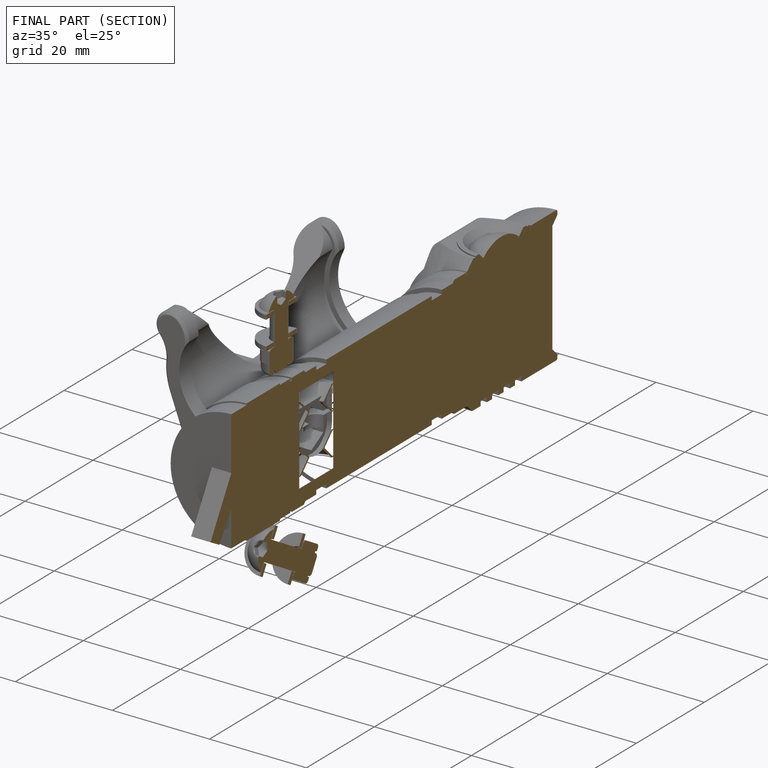
[diagram: finished part — half-section view (interior)]
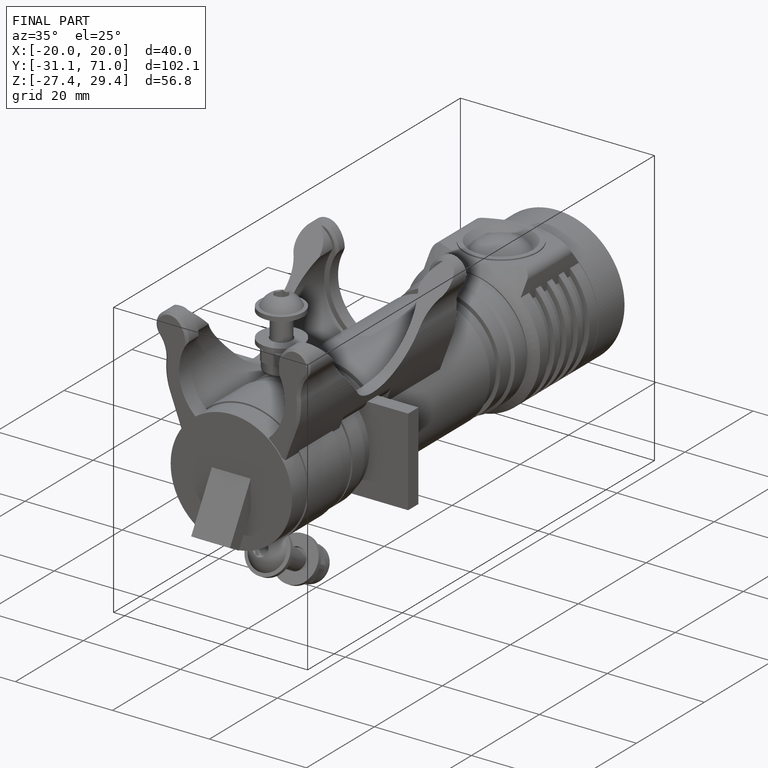
[diagram: finished part — iso view with bounding-box wireframe]
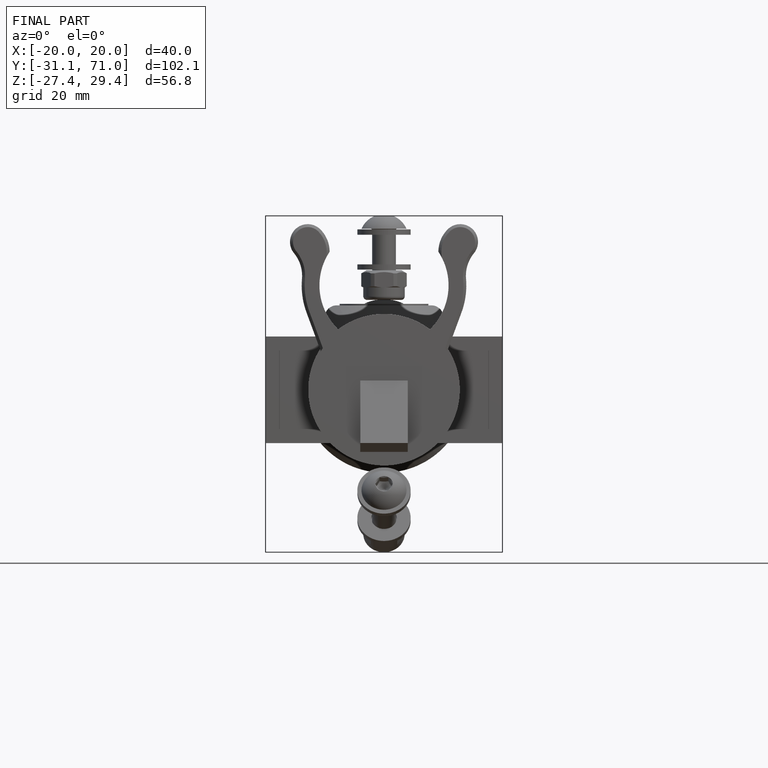
[diagram: finished part — front view with bounding-box wireframe]
